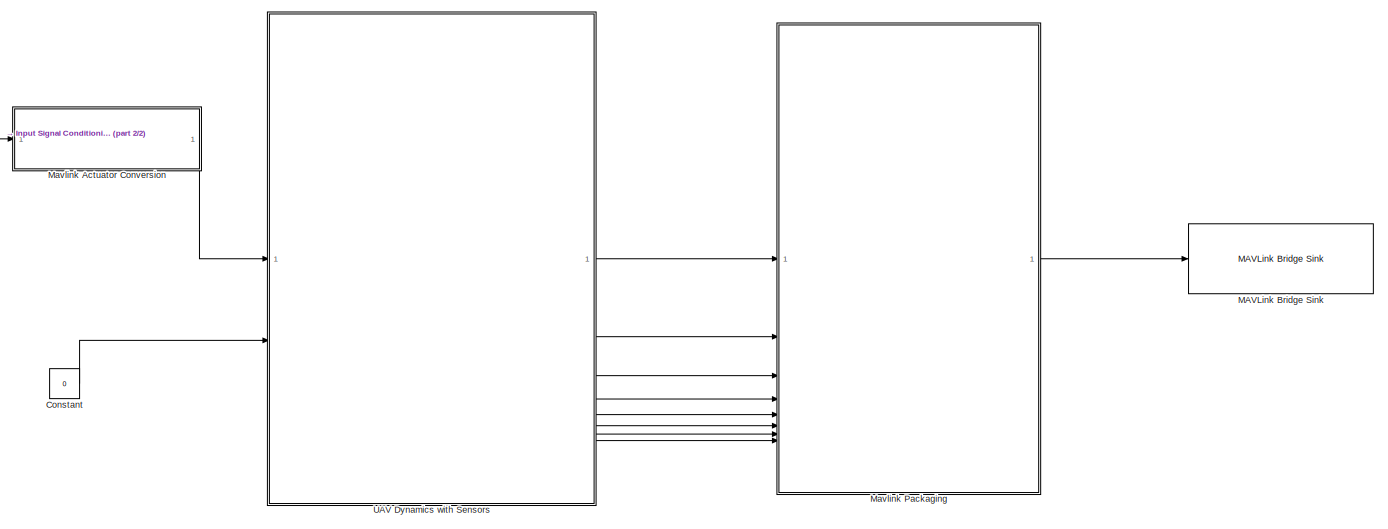
[diagram: root canvas - part 1/2, center side, full height]
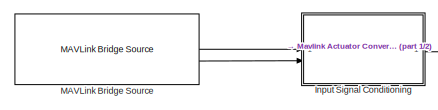
[diagram: root canvas - part 2/2, top left region]
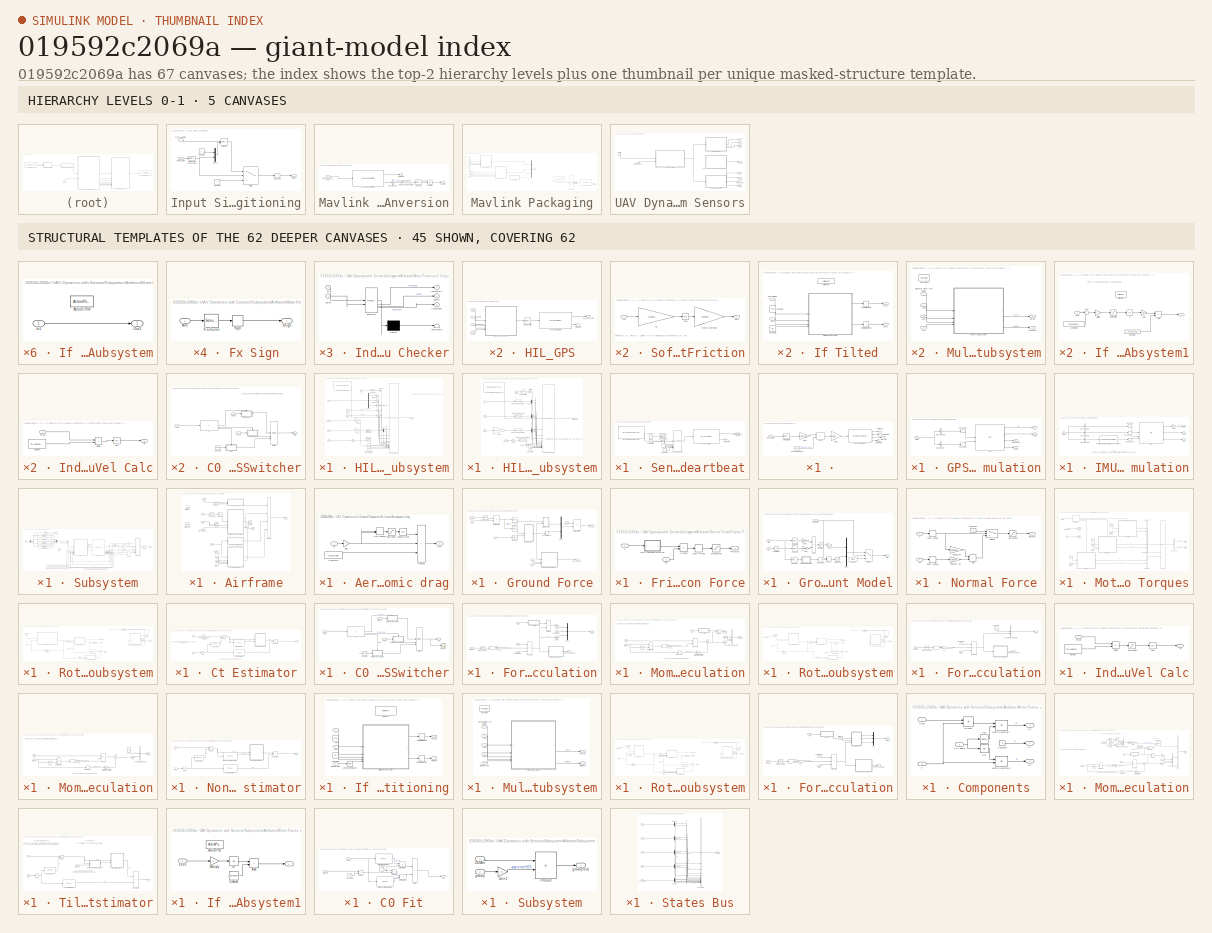
[diagram: thumbnail index - top-2 hierarchy levels (5 canvases) + 45 structural-template representatives of the remaining 62 canvases]
MODEL slx_019592c2069a
KIND model
CONFIG AbsTol = auto
CONFIG EnableMultiTasking = off
CONFIG FixedStep = SampleTime
CONFIG MaxStep = auto
CONFIG MinStep = auto
CONFIG RelTol = 1e-3
CONFIG SampleTimeConstraint = Unconstrained
CONFIG SolverName = ode8
CONFIG StartTime = 0.0
CONFIG StopTime = inf
BLOCK [Constant] Constant
  Value = 0
BLOCK [SubSystem] Input Signal Conditioning
BLOCK [Constant] Input Signal Conditioning/Constant
BLOCK [Constant] Input Signal Conditioning/Constant1
  OutDataTypeStr = uint8
  SampleTime = -1
  Value = 0
BLOCK [Inport] Input Signal Conditioning/Data Length
  Port = 2
BLOCK [DataTypeConversion] Input Signal Conditioning/Data Type Conversion
  OutDataTypeStr = double
  RndMeth = Floor
  SaturateOnIntegerOverflow = off
BLOCK [Inport] Input Signal Conditioning/From_Autopilot
BLOCK [Mux] Input Signal Conditioning/Mux1
  DisplayOption = bar
  Inputs = 2
BLOCK [Reshape] Input Signal Conditioning/Reshape
BLOCK [Selector] Input Signal Conditioning/Selector
  IndexOptions = Starting and ending indices (port)
  Indices = [1 3]
  InputPortWidth = MAVLink_Input_Read_Size
  OutputSizes = 1
BLOCK [Outport] Input Signal Conditioning/Signal
BLOCK [Switch] Input Signal Conditioning/Switch
  Criteria = u2 > Threshold
  InputSameDT = off
  SaturateOnIntegerOverflow = off
BLOCK [Reference] MAVLink Bridge Sink  REF=px4MAVLinkBridgelib/MAVLink Bridge Sink
  SourceBlock = px4MAVLinkBridgelib/MAVLink Bridge Sink
  SourceType = px4.internal.block.MAVLinkSink
BLOCK [Reference] MAVLink Bridge Source  REF=px4MAVLinkBridgelib/MAVLink Bridge Source
  SourceBlock = px4MAVLinkBridgelib/MAVLink Bridge Source
  SourceType = px4.internal.block.MAVLinkSource
BLOCK [SubSystem] Mavlink Actuator Conversion
BLOCK [Outport] Mavlink Actuator Conversion/Actuator
BLOCK [BusSelector] Mavlink Actuator Conversion/Bus Selector
  OutputSignals = Payload.controls
BLOCK [DataTypeConversion] Mavlink Actuator Conversion/Data Type Conversion
  OutDataTypeStr = double
  RndMeth = Floor
  SaturateOnIntegerOverflow = off
BLOCK [Inport] Mavlink Actuator Conversion/HIL ACTUATOR_bytes
BLOCK [Reference] Mavlink Actuator Conversion/MAVLink Deserializer  REF=uavmavlinklib/MAVLink Deserializer
  SourceBlock = uavmavlinklib/MAVLink Deserializer
  SourceType = MAVLink Deserializer
BLOCK [Saturate] Mavlink Actuator Conversion/Saturation
  LowerLimit = 0
  UpperLimit = 1
BLOCK [Selector] Mavlink Actuator Conversion/Selector1
  IndexOptions = Index vector (dialog)
  Indices = [1:4]
  InputPortWidth = 16
  OutputSizes = 1
BLOCK [Terminator] Mavlink Actuator Conversion/Terminator
BLOCK [SubSystem] Mavlink Packaging
BLOCK [Inport] Mavlink Packaging/Acc
BLOCK [BusAssignment] Mavlink Packaging/Bus Assignment
  AssignedSignals = Payload.attitude_quaternion
  Commented = on
BLOCK [Inport] Mavlink Packaging/Course
  Port = 8
BLOCK [Inport] Mavlink Packaging/GndSpeed
  Port = 7
BLOCK [Inport] Mavlink Packaging/Gyro
  Port = 2
BLOCK [SubSystem] Mavlink Packaging/HIL_GPS
BLOCK [Inport] Mavlink Packaging/HIL_GPS/Course
  Port = 4
BLOCK [Inport] Mavlink Packaging/HIL_GPS/GndSpeed
  Port = 3
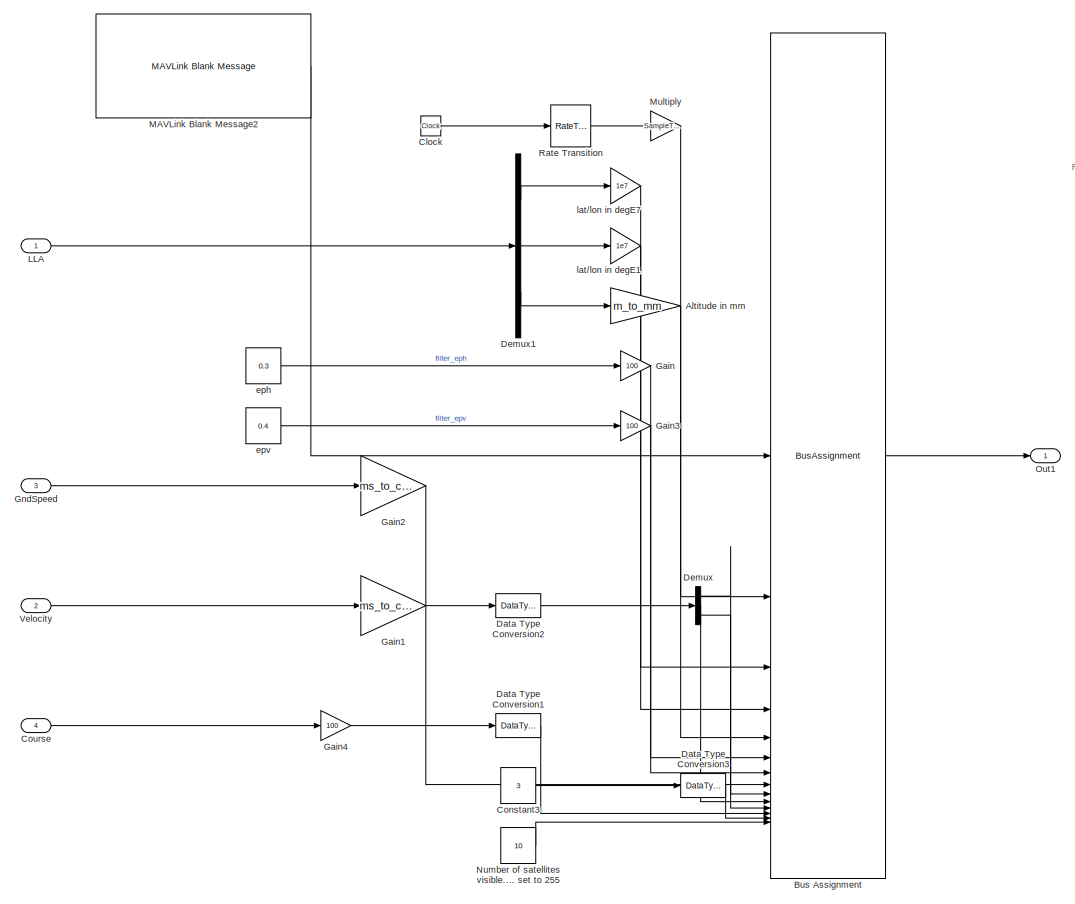
[diagram: Mavlink Packaging/HIL_GPS/HIL_GPS Subsystem - part 1/2, most of the canvas]
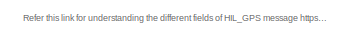
[diagram: Mavlink Packaging/HIL_GPS/HIL_GPS Subsystem - part 2/2, top right region]
BLOCK [SubSystem] Mavlink Packaging/HIL_GPS/HIL_GPS Subsystem
BLOCK [Gain] Mavlink Packaging/HIL_GPS/HIL_GPS Subsystem/Altitude in mm
  Gain = m_to_mm
  OutDataTypeStr = Inherit: Inherit via back propagation
BLOCK [BusAssignment] Mavlink Packaging/HIL_GPS/HIL_GPS Subsystem/Bus Assignment
  AssignedSignals = Payload.time_usec,Payload.lat,Payload.lon,Payload.alt,Payload.eph,Payload.epv,Payload.vel,Payload.vn,Payload.ve,Payload.vd,Payload.cog,Payload.fix_type,Payload.satellites_visible
BLOCK [Clock] Mavlink Packaging/HIL_GPS/HIL_GPS Subsystem/Clock
BLOCK [Constant] Mavlink Packaging/HIL_GPS/HIL_GPS Subsystem/Constant3
  OutDataTypeStr = Inherit: Inherit via back propagation
  SampleTime = -1
  Value = 3
BLOCK [Inport] Mavlink Packaging/HIL_GPS/HIL_GPS Subsystem/Course
  Port = 4
BLOCK [DataTypeConversion] Mavlink Packaging/HIL_GPS/HIL_GPS Subsystem/Data Type Conversion1
  OutDataTypeStr = uint16
  RndMeth = Floor
  SaturateOnIntegerOverflow = off
BLOCK [DataTypeConversion] Mavlink Packaging/HIL_GPS/HIL_GPS Subsystem/Data Type Conversion2
  OutDataTypeStr = int16
  RndMeth = Floor
  SaturateOnIntegerOverflow = off
BLOCK [DataTypeConversion] Mavlink Packaging/HIL_GPS/HIL_GPS Subsystem/Data Type Conversion3
  OutDataTypeStr = uint8
  RndMeth = Floor
  SaturateOnIntegerOverflow = off
BLOCK [Demux] Mavlink Packaging/HIL_GPS/HIL_GPS Subsystem/Demux
  Outputs = 3
BLOCK [Demux] Mavlink Packaging/HIL_GPS/HIL_GPS Subsystem/Demux1
  Outputs = 3
BLOCK [Gain] Mavlink Packaging/HIL_GPS/HIL_GPS Subsystem/Gain
  Gain = 100
  OutDataTypeStr = Inherit: Inherit via back propagation
BLOCK [Gain] Mavlink Packaging/HIL_GPS/HIL_GPS Subsystem/Gain1
  Gain = ms_to_cms
BLOCK [Gain] Mavlink Packaging/HIL_GPS/HIL_GPS Subsystem/Gain2
  Gain = ms_to_cms
  OutDataTypeStr = uint16
BLOCK [Gain] Mavlink Packaging/HIL_GPS/HIL_GPS Subsystem/Gain3
  Gain = 100
  OutDataTypeStr = Inherit: Inherit via back propagation
BLOCK [Gain] Mavlink Packaging/HIL_GPS/HIL_GPS Subsystem/Gain4
  Gain = 100
BLOCK [Inport] Mavlink Packaging/HIL_GPS/HIL_GPS Subsystem/GndSpeed
  Port = 3
BLOCK [Inport] Mavlink Packaging/HIL_GPS/HIL_GPS Subsystem/LLA
BLOCK [Reference] Mavlink Packaging/HIL_GPS/HIL_GPS Subsystem/MAVLink Blank Message2  REF=uavmavlinklib/MAVLink Blank Message
  SourceBlock = uavmavlinklib/MAVLink Blank Message
  SourceType = MAVLink Blank Message
BLOCK [Gain] Mavlink Packaging/HIL_GPS/HIL_GPS Subsystem/Multiply
  Gain = SampleTime*1e6
  OutDataTypeStr = Inherit: Inherit via back propagation
BLOCK [Constant] Mavlink Packaging/HIL_GPS/HIL_GPS Subsystem/Number of satellites visible. If unknown, set to 255
  OutDataTypeStr = Inherit: Inherit via back propagation
  SampleTime = -1
  Value = 10
BLOCK [Outport] Mavlink Packaging/HIL_GPS/HIL_GPS Subsystem/Out1
BLOCK [RateTransition] Mavlink Packaging/HIL_GPS/HIL_GPS Subsystem/Rate Transition
BLOCK [Inport] Mavlink Packaging/HIL_GPS/HIL_GPS Subsystem/Velocity
  Port = 2
BLOCK [Constant] Mavlink Packaging/HIL_GPS/HIL_GPS Subsystem/eph
  SampleTime = -1
  Value = 0.3
BLOCK [Constant] Mavlink Packaging/HIL_GPS/HIL_GPS Subsystem/epv
  SampleTime = -1
  Value = 0.4
BLOCK [Gain] Mavlink Packaging/HIL_GPS/HIL_GPS Subsystem/lat//lon in degE1
  Gain = 1e7
  OutDataTypeStr = Inherit: Inherit via back propagation
BLOCK [Gain] Mavlink Packaging/HIL_GPS/HIL_GPS Subsystem/lat//lon in degE7
  Gain = 1e7
  OutDataTypeStr = Inherit: Inherit via back propagation
BLOCK [Outport] Mavlink Packaging/HIL_GPS/HIL_GPS_bytes
BLOCK [Inport] Mavlink Packaging/HIL_GPS/LLA
BLOCK [Reference] Mavlink Packaging/HIL_GPS/MAVLink Serializer3  REF=uavmavlinklib/MAVLink Serializer
  SourceBlock = uavmavlinklib/MAVLink Serializer
  SourceType = MAVLink Serializer
BLOCK [RateTransition] Mavlink Packaging/HIL_GPS/Rate Transition
  OutPortSampleTime = SampleTime
BLOCK [Terminator] Mavlink Packaging/HIL_GPS/Terminator2
BLOCK [Inport] Mavlink Packaging/HIL_GPS/Velocity
  Port = 2
BLOCK [SubSystem] Mavlink Packaging/HIL_SENSOR
BLOCK [Inport] Mavlink Packaging/HIL_SENSOR/Acc
BLOCK [Inport] Mavlink Packaging/HIL_SENSOR/Gyro
  Port = 2
BLOCK [SubSystem] Mavlink Packaging/HIL_SENSOR/HIL_SENSOR Creation subsystem
BLOCK [Inport] Mavlink Packaging/HIL_SENSOR/HIL_SENSOR Creation subsystem/Acc
BLOCK [BusAssignment] Mavlink Packaging/HIL_SENSOR/HIL_SENSOR Creation subsystem/Bus Assignment1
  AssignedSignals = Payload.time_usec,Payload.xacc,Payload.yacc,Payload.zacc,Payload.xgyro,Payload.ygyro,Payload.zgyro,Payload.xmag,Payload.ymag,Payload.zmag,Payload.abs_pressure,Payload.fields_updated,Payload.temperature
BLOCK [Clock] Mavlink Packaging/HIL_SENSOR/HIL_SENSOR Creation subsystem/Clock
BLOCK [DataTypeConversion] Mavlink Packaging/HIL_SENSOR/HIL_SENSOR Creation subsystem/Data Type Conversion1
  OutDataTypeStr = single
  RndMeth = Floor
  SaturateOnIntegerOverflow = off
BLOCK [DataTypeConversion] Mavlink Packaging/HIL_SENSOR/HIL_SENSOR Creation subsystem/Data Type Conversion2
  OutDataTypeStr = single
  RndMeth = Floor
  SaturateOnIntegerOverflow = off
BLOCK [DataTypeConversion] Mavlink Packaging/HIL_SENSOR/HIL_SENSOR Creation subsystem/Data Type Conversion3
  OutDataTypeStr = single
  RndMeth = Floor
  SaturateOnIntegerOverflow = off
BLOCK [DataTypeConversion] Mavlink Packaging/HIL_SENSOR/HIL_SENSOR Creation subsystem/Data Type Conversion5
  OutDataTypeStr = single
  RndMeth = Floor
  SaturateOnIntegerOverflow = off
BLOCK [Demux] Mavlink Packaging/HIL_SENSOR/HIL_SENSOR Creation subsystem/Demux
  Outputs = 3
BLOCK [Demux] Mavlink Packaging/HIL_SENSOR/HIL_SENSOR Creation subsystem/Demux1
  Outputs = 3
BLOCK [Demux] Mavlink Packaging/HIL_SENSOR/HIL_SENSOR Creation subsystem/Demux2
  Outputs = 3
BLOCK [Gain] Mavlink Packaging/HIL_SENSOR/HIL_SENSOR Creation subsystem/Gain2
  Gain = 0.01
  OutDataTypeStr = single
BLOCK [Gain] Mavlink Packaging/HIL_SENSOR/HIL_SENSOR Creation subsystem/Gain3
  Gain = uT_to_gauss
BLOCK [Inport] Mavlink Packaging/HIL_SENSOR/HIL_SENSOR Creation subsystem/Gyro
  Port = 2
BLOCK [Outport] Mavlink Packaging/HIL_SENSOR/HIL_SENSOR Creation subsystem/HIL Sensor
BLOCK [Reference] Mavlink Packaging/HIL_SENSOR/HIL_SENSOR Creation subsystem/MAVLink Blank Message1  REF=uavmavlinklib/MAVLink Blank Message
  SourceBlock = uavmavlinklib/MAVLink Blank Message
  SourceType = MAVLink Blank Message
BLOCK [Inport] Mavlink Packaging/HIL_SENSOR/HIL_SENSOR Creation subsystem/Mag
  Port = 3
BLOCK [Gain] Mavlink Packaging/HIL_SENSOR/HIL_SENSOR Creation subsystem/Multiply
  Gain = SampleTime*1e6
  OutDataTypeStr = Inherit: Inherit via back propagation
BLOCK [Inport] Mavlink Packaging/HIL_SENSOR/HIL_SENSOR Creation subsystem/Pressure
  Port = 4
BLOCK [RateTransition] Mavlink Packaging/HIL_SENSOR/HIL_SENSOR Creation subsystem/Rate Transition
BLOCK [Constant] Mavlink Packaging/HIL_SENSOR/HIL_SENSOR Creation subsystem/Set this flag to indicate all flags are updated
  OutDataTypeStr = Inherit: Inherit via back propagation
  SampleTime = -1
  Value = 8191
BLOCK [Constant] Mavlink Packaging/HIL_SENSOR/HIL_SENSOR Creation subsystem/Temperature
  OutDataTypeStr = Inherit: Inherit via back propagation
  SampleTime = -1
  Value = 25
BLOCK [Outport] Mavlink Packaging/HIL_SENSOR/HIL_SENSOR_bytes
BLOCK [Reference] Mavlink Packaging/HIL_SENSOR/MAVLink Serializer1  REF=uavmavlinklib/MAVLink Serializer
  SourceBlock = uavmavlinklib/MAVLink Serializer
  SourceType = MAVLink Serializer
BLOCK [Inport] Mavlink Packaging/HIL_SENSOR/Mag
  Port = 3
BLOCK [Inport] Mavlink Packaging/HIL_SENSOR/Pressure
  Port = 4
BLOCK [RateTransition] Mavlink Packaging/HIL_SENSOR/Rate Transition
  OutPortSampleTime = SampleTime
BLOCK [Terminator] Mavlink Packaging/HIL_SENSOR/Terminator
BLOCK [Inport] Mavlink Packaging/LLA
  Port = 5
BLOCK [Reference] Mavlink Packaging/MAVLink Blank Message  REF=uavmavlinklib/MAVLink Blank Message
  Commented = on
  SourceBlock = uavmavlinklib/MAVLink Blank Message
  SourceType = MAVLink Blank Message
BLOCK [Reference] Mavlink Packaging/MAVLink Serializer  REF=uavmavlinklib/MAVLink Serializer
  Commented = on
  SourceBlock = uavmavlinklib/MAVLink Serializer
  SourceType = MAVLink Serializer
BLOCK [Inport] Mavlink Packaging/Mag
  Port = 3
BLOCK [Mux] Mavlink Packaging/Mux
  DisplayOption = bar
  Inputs = 3
BLOCK [Outport] Mavlink Packaging/Outport
BLOCK [Inport] Mavlink Packaging/Pressure
  Port = 4
BLOCK [RateTransition] Mavlink Packaging/Rate Transition
  Commented = on
  OutPortSampleTime = SampleTime
BLOCK [SubSystem] Mavlink Packaging/Send Heartbeat
BLOCK [BusAssignment] Mavlink Packaging/Send Heartbeat/Bus Assignment
  AssignedSignals = Payload.autopilot,Payload.type,Payload.system_status,Payload.mavlink_version
BLOCK [Constant] Mavlink Packaging/Send Heartbeat/Constant
  SampleTime = -1
BLOCK [Constant] Mavlink Packaging/Send Heartbeat/Constant1
  SampleTime = -1
  Value = 12
BLOCK [Constant] Mavlink Packaging/Send Heartbeat/Constant2
  OutDataTypeStr = uint8
  Value = 2
BLOCK [Constant] Mavlink Packaging/Send Heartbeat/Constant3
  OutDataTypeStr = uint8
  Value = 0
BLOCK [DataTypeConversion] Mavlink Packaging/Send Heartbeat/Data Type Conversion
  OutDataTypeStr = uint8
  RndMeth = Floor
  SaturateOnIntegerOverflow = off
BLOCK [DataTypeConversion] Mavlink Packaging/Send Heartbeat/Data Type Conversion1
  OutDataTypeStr = uint8
  RndMeth = Floor
  SaturateOnIntegerOverflow = off
BLOCK [Outport] Mavlink Packaging/Send Heartbeat/HEARTBEAT_bytes
BLOCK [Reference] Mavlink Packaging/Send Heartbeat/MAVLink Blank Message  REF=uavmavlinklib/MAVLink Blank Message
  SourceBlock = uavmavlinklib/MAVLink Blank Message
  SourceType = MAVLink Blank Message
BLOCK [Reference] Mavlink Packaging/Send Heartbeat/MAVLink Serializer  REF=uavmavlinklib/MAVLink Serializer
  SourceBlock = uavmavlinklib/MAVLink Serializer
  SourceType = MAVLink Serializer
BLOCK [Terminator] Mavlink Packaging/Send Heartbeat/Terminator4
BLOCK [Terminator] Mavlink Packaging/Terminator2
  Commented = on
BLOCK [Inport] Mavlink Packaging/Velocity
  Port = 6
BLOCK [SubSystem] UAV Dynamics with Sensors
BLOCK [SubSystem] UAV Dynamics with Sensors/ 
  PortSchema = {"entries":[{"content":{"sides":[{"content":{"connectorIds":[]},"type":"ConnectorPlacement.EquallySpacedRectSide","uuid":"7ecc8b21-8f8f-4144-826a-6b68e30dbf7d"},{"content":{"connectorIds":["Out1"],"side":"RIGHT"},"type":"ConnectorPlacement.EquallySpacedRectSide","uuid":"81a1dd55-8330-4386-9921-36c0eb60d526"},{"content":{"connectorIds":[],"side":"TOP"},"type":"ConnectorPlacement.EquallySpacedRectSi...<+384ch>
BLOCK [Selector] UAV Dynamics with Sensors/ /Extract Altitude
  IndexOptions = Index vector (dialog)
  Indices = [3]
  InputPortWidth = 3
  OutputSizes = 1
BLOCK [Inport] UAV Dynamics with Sensors/ /GPS Position
BLOCK [Gain] UAV Dynamics with Sensors/ /Gain1
  Gain = 1/m_to_mm
BLOCK [Gain] UAV Dynamics with Sensors/ /Gain2
  Gain = m_to_mm
BLOCK [Reference] UAV Dynamics with Sensors/ /Lapse Rate Model  REF=aerolibatmos2/ISA Atmosphere Model
  SourceBlock = aerolibatmos2/ISA Atmosphere Model
  SourceType = International Standard Atmosphere Model
BLOCK [Outport] UAV Dynamics with Sensors/ /Pressure
BLOCK [RandomNumber] UAV Dynamics with Sensors/ /Random Number1
  SampleTime = SampleTime
  Seed = 10
  Variance = 10000
BLOCK [Sum] UAV Dynamics with Sensors/ /Sum1
  IconShape = rectangular
  Inputs = |++
BLOCK [Terminator] UAV Dynamics with Sensors/ /Terminator
BLOCK [Terminator] UAV Dynamics with Sensors/ /Terminator1
BLOCK [Terminator] UAV Dynamics with Sensors/ /Terminator2
BLOCK [Outport] UAV Dynamics with Sensors/Acc
BLOCK [Outport] UAV Dynamics with Sensors/Course
  Port = 8
BLOCK [SubSystem] UAV Dynamics with Sensors/GNSS//GPS Simulation
  PortSchema = {"entries":[{"content":{"sides":[{"content":{"connectorIds":["In1"]},"type":"ConnectorPlacement.EquallySpacedRectSide","uuid":"4934e8ff-5d4b-4e11-968d-c23bd62383a0"},{"content":{"connectorIds":["Out1","Out2","Out3"],"side":"RIGHT"},"type":"ConnectorPlacement.EquallySpacedRectSide","uuid":"9ec8bc0a-2d3c-4dca-835c-010ac29b6ebc"},{"content":{"connectorIds":["Out4"],"side":"TOP"},"type":"ConnectorPlac...<+260ch>
BLOCK [BusSelector] UAV Dynamics with Sensors/GNSS//GPS Simulation/Bus Selector
  OutputAsBus = on
  OutputSignals = dx,dy,dz
BLOCK [BusSelector] UAV Dynamics with Sensors/GNSS//GPS Simulation/Bus Selector1
  OutputAsBus = on
  OutputSignals = X,Y,Z
BLOCK [Outport] UAV Dynamics with Sensors/GNSS//GPS Simulation/Course
  Port = 3
BLOCK [Reference] UAV Dynamics with Sensors/GNSS//GPS Simulation/GPS  REF=sensorgpslib/GPS
  SourceBlock = sensorgpslib/GPS
  SourceType = fusion.internal.simulink.gpsSensor
BLOCK [Outport] UAV Dynamics with Sensors/GNSS//GPS Simulation/GndSpeed
  Port = 2
BLOCK [Outport] UAV Dynamics with Sensors/GNSS//GPS Simulation/LLA
  Port = 4
BLOCK [Reshape] UAV Dynamics with Sensors/GNSS//GPS Simulation/Reshape1
  OutputDimensionality = Row vector (2-D)
BLOCK [Reshape] UAV Dynamics with Sensors/GNSS//GPS Simulation/Reshape3
  OutputDimensionality = Row vector (2-D)
BLOCK [Inport] UAV Dynamics with Sensors/GNSS//GPS Simulation/States
BLOCK [Outport] UAV Dynamics with Sensors/GNSS//GPS Simulation/Velocity
BLOCK [Outport] UAV Dynamics with Sensors/GndSpeed
  Port = 7
BLOCK [Outport] UAV Dynamics with Sensors/Gyro
  Port = 2
BLOCK [SubSystem] UAV Dynamics with Sensors/IMU Simulation
BLOCK [Outport] UAV Dynamics with Sensors/IMU Simulation/Acc
BLOCK [BusSelector] UAV Dynamics with Sensors/IMU Simulation/Bus Selector1
  OutputAsBus = on
  OutputSignals = p,q,r
BLOCK [BusSelector] UAV Dynamics with Sensors/IMU Simulation/Bus Selector2
  OutputAsBus = on
  OutputSignals = yaw,pitch,roll
BLOCK [BusSelector] UAV Dynamics with Sensors/IMU Simulation/Bus Selector3
  OutputAsBus = on
  OutputSignals = ddx,ddy,ddz
BLOCK [Reference] UAV Dynamics with Sensors/IMU Simulation/Coordinate Transformation Conversion1  REF=robotcorelib/Coordinate Transformation Conversion
  SourceBlock = robotcorelib/Coordinate Transformation Conversion
  SourceType = robotics.slcore.internal.block.CoordinateTransformationConversion
BLOCK [Gain] UAV Dynamics with Sensors/IMU Simulation/Gain
  Gain = -1
BLOCK [Outport] UAV Dynamics with Sensors/IMU Simulation/Gyro
  Port = 2
BLOCK [Reference] UAV Dynamics with Sensors/IMU Simulation/IMU1  REF=mspsensorlib/IMU
  SourceBlock = mspsensorlib/IMU
  SourceType = fusion.simulink.imuSensor
BLOCK [Outport] UAV Dynamics with Sensors/IMU Simulation/Mag
  Port = 3
BLOCK [Reshape] UAV Dynamics with Sensors/IMU Simulation/Reshape
  OutputDimensionality = Row vector (2-D)
BLOCK [Reshape] UAV Dynamics with Sensors/IMU Simulation/Reshape2
  OutputDimensionality = Row vector (2-D)
BLOCK [Reshape] UAV Dynamics with Sensors/IMU Simulation/Reshape3
  OutputDimensionality = Row vector (2-D)
BLOCK [Inport] UAV Dynamics with Sensors/IMU Simulation/States
BLOCK [Outport] UAV Dynamics with Sensors/LLA
  Port = 5
BLOCK [Outport] UAV Dynamics with Sensors/Mag
  Port = 3
BLOCK [Outport] UAV Dynamics with Sensors/Pressure
  Port = 4
BLOCK [SubSystem] UAV Dynamics with Sensors/Subsystem
BLOCK [Reference] UAV Dynamics with Sensors/Subsystem/6DOF (Quaternion)  REF=shared6dof/6DOF (Euler Angles)
  LibrarySourceBlock = aerolib6dof2/6DOF (Quaternion)
  SourceBlock = shared6dof/6DOF (Euler Angles)
  SourceType = 6DOF EoM (Body Axis)
BLOCK [SubSystem] UAV Dynamics with Sensors/Subsystem/Airframe
BLOCK [SubSystem] UAV Dynamics with Sensors/Subsystem/Airframe/Aerodynamic drag
BLOCK [Constant] UAV Dynamics with Sensors/Subsystem/Airframe/Aerodynamic drag/Constant1
  Value = CDDrone
BLOCK [DotProduct] UAV Dynamics with Sensors/Subsystem/Airframe/Aerodynamic drag/Dot Product
  OutDataTypeStr = Inherit: Inherit via internal rule
BLOCK [Outport] UAV Dynamics with Sensors/Subsystem/Airframe/Aerodynamic drag/F_d
BLOCK [Product] UAV Dynamics with Sensors/Subsystem/Airframe/Aerodynamic drag/Product
  Inputs = 3
BLOCK [Saturate] UAV Dynamics with Sensors/Subsystem/Airframe/Aerodynamic drag/Saturation
  LowerLimit = 0.0001
  UpperLimit = inf
BLOCK [Sqrt] UAV Dynamics with Sensors/Subsystem/Airframe/Aerodynamic drag/Square Root
BLOCK [Inport] UAV Dynamics with Sensors/Subsystem/Airframe/Aerodynamic drag/Vb
BLOCK [Gain] UAV Dynamics with Sensors/Subsystem/Airframe/Aerodynamic drag/gain
  Gain = -1
BLOCK [Reference] UAV Dynamics with Sensors/Subsystem/Airframe/Artificial RPM  REF=simulink/Sources/Ramp
  SourceBlock = simulink/Sources/Ramp
  SourceType = Ramp
BLOCK [Reference] UAV Dynamics with Sensors/Subsystem/Airframe/Artificial Vel  REF=simulink/Sources/Ramp
  SourceBlock = simulink/Sources/Ramp
  SourceType = Ramp
BLOCK [Inport] UAV Dynamics with Sensors/Subsystem/Airframe/DCMbe
  Port = 4
BLOCK [InportShadow] UAV Dynamics with Sensors/Subsystem/Airframe/DCMbe2
  Port = 4
BLOCK [Outport] UAV Dynamics with Sensors/Subsystem/Airframe/F_cg
BLOCK [Constant] UAV Dynamics with Sensors/Subsystem/Airframe/Gravity
  Value = [0 0 g]
BLOCK [SubSystem] UAV Dynamics with Sensors/Subsystem/Airframe/Ground Force
BLOCK [InportShadow] UAV Dynamics with Sensors/Subsystem/Airframe/Ground Force/DCMbe
  Port = 2
BLOCK [Inport] UAV Dynamics with Sensors/Subsystem/Airframe/Ground Force/DCMbe1
  Port = 2
BLOCK [Outport] UAV Dynamics with Sensors/Subsystem/Airframe/Ground Force/F contact
BLOCK [SubSystem] UAV Dynamics with Sensors/Subsystem/Airframe/Ground Force/Friction Force
BLOCK [Inport] UAV Dynamics with Sensors/Subsystem/Airframe/Ground Force/Friction Force/Fn
  Port = 2
BLOCK [Outport] UAV Dynamics with Sensors/Subsystem/Airframe/Ground Force/Friction Force/Friction
BLOCK [Product] UAV Dynamics with Sensors/Subsystem/Airframe/Ground Force/Friction Force/Product
BLOCK [Saturate] UAV Dynamics with Sensors/Subsystem/Airframe/Ground Force/Friction Force/Saturation
  LowerLimit = -contact.translation.maxFriction
  UpperLimit = contact.translation.maxFriction
BLOCK [SubSystem] UAV Dynamics with Sensors/Subsystem/Airframe/Ground Force/Friction Force/Soft Coulomb Friction
BLOCK [Inport] UAV Dynamics with Sensors/Subsystem/Airframe/Ground Force/Friction Force/Soft Coulomb Friction/In1
BLOCK [Outport] UAV Dynamics with Sensors/Subsystem/Airframe/Ground Force/Friction Force/Soft Coulomb Friction/Out1
BLOCK [Trigonometry] UAV Dynamics with Sensors/Subsystem/Airframe/Ground Force/Friction Force/Soft Coulomb Friction/Tanh
  Operator = tanh
BLOCK [Gain] UAV Dynamics with Sensors/Subsystem/Airframe/Ground Force/Friction Force/Soft Coulomb Friction/friction coefficient
  Gain = contact.translation.friction
BLOCK [Gain] UAV Dynamics with Sensors/Subsystem/Airframe/Ground Force/Friction Force/Soft Coulomb Friction/vd
  Gain = 1/contact.translation.vd
BLOCK [UnaryMinus] UAV Dynamics with Sensors/Subsystem/Airframe/Ground Force/Friction Force/Unary Minus
BLOCK [Inport] UAV Dynamics with Sensors/Subsystem/Airframe/Ground Force/Friction Force/V
BLOCK [SubSystem] UAV Dynamics with Sensors/Subsystem/Airframe/Ground Force/Ground Moment Model
BLOCK [Sum] UAV Dynamics with Sensors/Subsystem/Airframe/Ground Force/Ground Moment Model/Add
  IconShape = rectangular
BLOCK [Constant] UAV Dynamics with Sensors/Subsystem/Airframe/Ground Force/Ground Moment Model/Constant
  Value = [0 0 0]'
BLOCK [Gain] UAV Dynamics with Sensors/Subsystem/Airframe/Ground Force/Ground Moment Model/Gain
  Gain = contact.rotation.spring
BLOCK [Gain] UAV Dynamics with Sensors/Subsystem/Airframe/Ground Force/Ground Moment Model/Gain1
  Gain = contact.rotation.damper
BLOCK [Gain] UAV Dynamics with Sensors/Subsystem/Airframe/Ground Force/Ground Moment Model/Gain2
  Gain = -1
BLOCK [Outport] UAV Dynamics with Sensors/Subsystem/Airframe/Ground Force/Ground Moment Model/Mb
BLOCK [Mux] UAV Dynamics with Sensors/Subsystem/Airframe/Ground Force/Ground Moment Model/Mux2
  DisplayOption = bar
  Inputs = 2
BLOCK [Inport] UAV Dynamics with Sensors/Subsystem/Airframe/Ground Force/Ground Moment Model/Normal force
BLOCK [Product] UAV Dynamics with Sensors/Subsystem/Airframe/Ground Force/Ground Moment Model/Product
BLOCK [Saturate] UAV Dynamics with Sensors/Subsystem/Airframe/Ground Force/Ground Moment Model/Saturation
  LowerLimit = -control.rotation.maxMoment
  UpperLimit = control.rotation.maxMoment
BLOCK [Saturate] UAV Dynamics with Sensors/Subsystem/Airframe/Ground Force/Ground Moment Model/Saturation1
  LowerLimit = -20*pi/180
  UpperLimit = 20*pi/180
BLOCK [Saturate] UAV Dynamics with Sensors/Subsystem/Airframe/Ground Force/Ground Moment Model/Saturation2
  LowerLimit = -control.rotation.maxMoment
  UpperLimit = control.rotation.maxMoment
BLOCK [Selector] UAV Dynamics with Sensors/Subsystem/Airframe/Ground Force/Ground Moment Model/Selector3
  IndexOptions = Index vector (dialog)
  Indices = [3]
  InputPortWidth = 3
  OutputSizes = 1
BLOCK [Selector] UAV Dynamics with Sensors/Subsystem/Airframe/Ground Force/Ground Moment Model/Selector4
  IndexOptions = Index vector (dialog)
  Indices = [1, 2]
  InputPortWidth = 3
  OutputSizes = 1
BLOCK [Selector] UAV Dynamics with Sensors/Subsystem/Airframe/Ground Force/Ground Moment Model/Selector5
  IndexOptions = Index vector (dialog)
  Indices = [1, 2]
  InputPortWidth = 3
  OutputSizes = 1
BLOCK [SubSystem] UAV Dynamics with Sensors/Subsystem/Airframe/Ground Force/Ground Moment Model/Soft Coulomb Friction
BLOCK [Inport] UAV Dynamics with Sensors/Subsystem/Airframe/Ground Force/Ground Moment Model/Soft Coulomb Friction/In1
BLOCK [Outport] UAV Dynamics with Sensors/Subsystem/Airframe/Ground Force/Ground Moment Model/Soft Coulomb Friction/Out1
BLOCK [Trigonometry] UAV Dynamics with Sensors/Subsystem/Airframe/Ground Force/Ground Moment Model/Soft Coulomb Friction/Tanh
  Operator = tanh
BLOCK [Gain] UAV Dynamics with Sensors/Subsystem/Airframe/Ground Force/Ground Moment Model/Soft Coulomb Friction/friction coefficient
  Gain = control.rotation.friction
BLOCK [Gain] UAV Dynamics with Sensors/Subsystem/Airframe/Ground Force/Ground Moment Model/Soft Coulomb Friction/vd
  Gain = 1/control.rotation.vd
BLOCK [Switch] UAV Dynamics with Sensors/Subsystem/Airframe/Ground Force/Ground Moment Model/Switch
  Criteria = u2 > Threshold
  InputSameDT = off
  SaturateOnIntegerOverflow = off
BLOCK [UnaryMinus] UAV Dynamics with Sensors/Subsystem/Airframe/Ground Force/Ground Moment Model/Unary Minus
BLOCK [Inport] UAV Dynamics with Sensors/Subsystem/Airframe/Ground Force/Ground Moment Model/rpy
  Port = 3
BLOCK [Inport] UAV Dynamics with Sensors/Subsystem/Airframe/Ground Force/Ground Moment Model/wb
  Port = 2
BLOCK [Product] UAV Dynamics with Sensors/Subsystem/Airframe/Ground Force/Matrix Multiply
  Multiplication = Matrix(*)
BLOCK [Product] UAV Dynamics with Sensors/Subsystem/Airframe/Ground Force/Matrix Multiply1
  Multiplication = Matrix(*)
BLOCK [Outport] UAV Dynamics with Sensors/Subsystem/Airframe/Ground Force/Mb_contact
  Port = 2
BLOCK [Mux] UAV Dynamics with Sensors/Subsystem/Airframe/Ground Force/Mux1
  DisplayOption = bar
  Inputs = 2
BLOCK [SubSystem] UAV Dynamics with Sensors/Subsystem/Airframe/Ground Force/Normal Force
BLOCK [Sum] UAV Dynamics with Sensors/Subsystem/Airframe/Ground Force/Normal Force/Add
  IconShape = rectangular
BLOCK [Constant] UAV Dynamics with Sensors/Subsystem/Airframe/Ground Force/Normal Force/Constant
  Value = 0
BLOCK [Gain] UAV Dynamics with Sensors/Subsystem/Airframe/Ground Force/Normal Force/Damper Kp
  Gain = -contact.translation.damper
BLOCK [Outport] UAV Dynamics with Sensors/Subsystem/Airframe/Ground Force/Normal Force/Normal
BLOCK [Saturate] UAV Dynamics with Sensors/Subsystem/Airframe/Ground Force/Normal Force/Saturation
  LowerLimit = 0
  UpperLimit = contact.translation.maxNormal
BLOCK [Gain] UAV Dynamics with Sensors/Subsystem/Airframe/Ground Force/Normal Force/Spring Kp
  Gain = -contact.translation.spring
BLOCK [Switch] UAV Dynamics with Sensors/Subsystem/Airframe/Ground Force/Normal Force/Switch
  Criteria = u2 > Threshold
  InputSameDT = off
  SaturateOnIntegerOverflow = off
BLOCK [UnaryMinus] UAV Dynamics with Sensors/Subsystem/Airframe/Ground Force/Normal Force/Unary Minus
BLOCK [UnaryMinus] UAV Dynamics with Sensors/Subsystem/Airframe/Ground Force/Normal Force/Unary Minus1
BLOCK [Inport] UAV Dynamics with Sensors/Subsystem/Airframe/Ground Force/Normal Force/Vz
BLOCK [Inport] UAV Dynamics with Sensors/Subsystem/Airframe/Ground Force/Normal Force/Z
  Port = 2
BLOCK [Selector] UAV Dynamics with Sensors/Subsystem/Airframe/Ground Force/Selector1
  IndexOptions = Index vector (dialog)
  Indices = [3]
  InputPortWidth = 3
  OutputSizes = 1
BLOCK [Selector] UAV Dynamics with Sensors/Subsystem/Airframe/Ground Force/Selector2
  IndexOptions = Index vector (dialog)
  Indices = [1,2]
  InputPortWidth = 3
  OutputSizes = 1
BLOCK [Selector] UAV Dynamics with Sensors/Subsystem/Airframe/Ground Force/Selector3
  IndexOptions = Index vector (dialog)
  Indices = [3]
  InputPortWidth = 3
  OutputSizes = 1
BLOCK [Math] UAV Dynamics with Sensors/Subsystem/Airframe/Ground Force/Transpose1
  Operator = transpose
BLOCK [UnaryMinus] UAV Dynamics with Sensors/Subsystem/Airframe/Ground Force/Unary Minus1
BLOCK [Inport] UAV Dynamics with Sensors/Subsystem/Airframe/Ground Force/Vb
BLOCK [Inport] UAV Dynamics with Sensors/Subsystem/Airframe/Ground Force/Wb
  Port = 4
BLOCK [Inport] UAV Dynamics with Sensors/Subsystem/Airframe/Ground Force/Xe
  Port = 3
BLOCK [Inport] UAV Dynamics with Sensors/Subsystem/Airframe/Ground Force/rpy
  Port = 5
BLOCK [Outport] UAV Dynamics with Sensors/Subsystem/Airframe/M_cg
  Port = 2
BLOCK [SubSystem] UAV Dynamics with Sensors/Subsystem/Airframe/Motor Forces and Torques
BLOCK [BusCreator] UAV Dynamics with Sensors/Subsystem/Airframe/Motor Forces and Torques/Bus Creator1
  DisplayOption = bar
  InheritFromInputs = on
  Inputs = 2
BLOCK [BusCreator] UAV Dynamics with Sensors/Subsystem/Airframe/Motor Forces and Torques/Bus Creator2
  DisplayOption = bar
  InheritFromInputs = on
  Inputs = 2
BLOCK [BusCreator] UAV Dynamics with Sensors/Subsystem/Airframe/Motor Forces and Torques/Bus Creator3
  DisplayOption = bar
  InheritFromInputs = on
  Inputs = 2
BLOCK [BusSelector] UAV Dynamics with Sensors/Subsystem/Airframe/Motor Forces and Torques/Bus Selector
  NameLocation = right
  OutputSignals = Fxyz,Mxyz
BLOCK [Inport] UAV Dynamics with Sensors/Subsystem/Airframe/Motor Forces and Torques/Descent Rate
BLOCK [If] UAV Dynamics with Sensors/Subsystem/Airframe/Motor Forces and Torques/Flight Mode
  ElseIfExpressions = u1 > 0 & u1 < 45, u1 == 45
  IfExpression = u1 == 0
  ShowElse = off
BLOCK [From] UAV Dynamics with Sensors/Subsystem/Airframe/Motor Forces and Torques/From
  GotoTag = Vz
BLOCK [From] UAV Dynamics with Sensors/Subsystem/Airframe/Motor Forces and Torques/From1
  GotoTag = rpm
BLOCK [From] UAV Dynamics with Sensors/Subsystem/Airframe/Motor Forces and Torques/From2
  GotoTag = Vz
BLOCK [From] UAV Dynamics with Sensors/Subsystem/Airframe/Motor Forces and Torques/From3
  GotoTag = rpm
BLOCK [From] UAV Dynamics with Sensors/Subsystem/Airframe/Motor Forces and Torques/From4
  GotoTag = Vz
BLOCK [From] UAV Dynamics with Sensors/Subsystem/Airframe/Motor Forces and Torques/From5
  GotoTag = rpm
BLOCK [Outport] UAV Dynamics with Sensors/Subsystem/Airframe/Motor Forces and Torques/Fxyz
BLOCK [Goto] UAV Dynamics with Sensors/Subsystem/Airframe/Motor Forces and Torques/Goto
  GotoTag = Vz
BLOCK [Goto] UAV Dynamics with Sensors/Subsystem/Airframe/Motor Forces and Torques/Goto1
  GotoTag = rpm
BLOCK [SubSystem] UAV Dynamics with Sensors/Subsystem/Airframe/Motor Forces and Torques/If Tilted
  TreatAsAtomicUnit = on
BLOCK [ActionPort] UAV Dynamics with Sensors/Subsystem/Airframe/Motor Forces and Torques/If Tilted/Action Port
  ActionPortLabel = elseif( u1 == 45)
BLOCK [Constant] UAV Dynamics with Sensors/Subsystem/Airframe/Motor Forces and Torques/If Tilted/Constant
  Value = 1.225
BLOCK [Constant] UAV Dynamics with Sensors/Subsystem/Airframe/Motor Forces and Torques/If Tilted/Constant1
  Value = Arm
  VectorParams1D = off
BLOCK [Inport] UAV Dynamics with Sensors/Subsystem/Airframe/Motor Forces and Torques/If Tilted/Descent Rate
BLOCK [Outport] UAV Dynamics with Sensors/Subsystem/Airframe/Motor Forces and Torques/If Tilted/Fxyz
BLOCK [SubSystem] UAV Dynamics with Sensors/Subsystem/Airframe/Motor Forces and Torques/If Tilted/Multirotor Subsystem
  TreatAsAtomicUnit = on
BLOCK [Inport] UAV Dynamics with Sensors/Subsystem/Airframe/Motor Forces and Torques/If Tilted/Multirotor Subsystem/Arm
  Partition = on
  PartitionDimension = 2
  PartitionOffset = 0
  PartitionWidth = 1
  Port = 4
BLOCK [Inport] UAV Dynamics with Sensors/Subsystem/Airframe/Motor Forces and Torques/If Tilted/Multirotor Subsystem/Descent Rate (+ve down)
  NameLocation = top
BLOCK [ForEach] UAV Dynamics with Sensors/Subsystem/Airframe/Motor Forces and Torques/If Tilted/Multirotor Subsystem/For Each
  DisableCoverage = on
BLOCK [Outport] UAV Dynamics with Sensors/Subsystem/Airframe/Motor Forces and Torques/If Tilted/Multirotor Subsystem/Moment
  ConcatenationDimension = 2
  Port = 2
BLOCK [SubSystem] UAV Dynamics with Sensors/Subsystem/Airframe/Motor Forces and Torques/If Tilted/Multirotor Subsystem/Rotor Subsystem
BLOCK [Reference] UAV Dynamics with Sensors/Subsystem/Airframe/Motor Forces and Torques/If Tilted/Multirotor Subsystem/Rotor Subsystem/3x3 Cross Product  REF=sharedutil/3x3 Cross Product
  LibrarySourceBlock = aerolibutil/3x3 Cross Product
  SourceBlock = sharedutil/3x3 Cross Product
  SourceType = CrossProduct
BLOCK [Inport] UAV Dynamics with Sensors/Subsystem/Airframe/Motor Forces and Torques/If Tilted/Multirotor Subsystem/Rotor Subsystem/Arm
  Port = 4
BLOCK [BusCreator] UAV Dynamics with Sensors/Subsystem/Airframe/Motor Forces and Torques/If Tilted/Multirotor Subsystem/Rotor Subsystem/Bus Creator
  Commented = on
  DisplayOption = bar
  InheritFromInputs = on
  Inputs = 2
  NameLocation = top
BLOCK [Outport] UAV Dynamics with Sensors/Subsystem/Airframe/Motor Forces and Torques/If Tilted/Multirotor Subsystem/Rotor Subsystem/Converged
BLOCK [SubSystem] UAV Dynamics with Sensors/Subsystem/Airframe/Motor Forces and Torques/If Tilted/Multirotor Subsystem/Rotor Subsystem/Ct Estimator
BLOCK [Abs] UAV Dynamics with Sensors/Subsystem/Airframe/Motor Forces and Torques/If Tilted/Multirotor Subsystem/Rotor Subsystem/Ct Estimator/Abs
  SaturateOnIntegerOverflow = off
BLOCK [Product] UAV Dynamics with Sensors/Subsystem/Airframe/Motor Forces and Torques/If Tilted/Multirotor Subsystem/Rotor Subsystem/Ct Estimator/Calculate Ct
  Inputs = **
BLOCK [Outport] UAV Dynamics with Sensors/Subsystem/Airframe/Motor Forces and Torques/If Tilted/Multirotor Subsystem/Rotor Subsystem/Ct Estimator/Ct
BLOCK [SubSystem] UAV Dynamics with Sensors/Subsystem/Airframe/Motor Forces and Torques/If Tilted/Multirotor Subsystem/Rotor Subsystem/Ct Estimator/Ct//C0 State Switcher
BLOCK [Inport] UAV Dynamics with Sensors/Subsystem/Airframe/Motor Forces and Torques/If Tilted/Multirotor Subsystem/Rotor Subsystem/Ct Estimator/Ct//C0 State Switcher/ Vz//Vh
BLOCK [InportShadow] UAV Dynamics with Sensors/Subsystem/Airframe/Motor Forces and Torques/If Tilted/Multirotor Subsystem/Rotor Subsystem/Ct Estimator/Ct//C0 State Switcher/ Vz//Vh1
BLOCK [Constant] UAV Dynamics with Sensors/Subsystem/Airframe/Motor Forces and Torques/If Tilted/Multirotor Subsystem/Rotor Subsystem/Ct Estimator/Ct//C0 State Switcher/Constant
  Value = 1.00463796511
BLOCK [Inport] UAV Dynamics with Sensors/Subsystem/Airframe/Motor Forces and Torques/If Tilted/Multirotor Subsystem/Rotor Subsystem/Ct Estimator/Ct//C0 State Switcher/Ct//C0 Fit
  Port = 2
BLOCK [If] UAV Dynamics with Sensors/Subsystem/Airframe/Motor Forces and Torques/If Tilted/Multirotor Subsystem/Rotor Subsystem/Ct Estimator/Ct//C0 State Switcher/If
  ElseIfExpressions = u1 < -2.828427125
  IfExpression = u1 >= -2.828427125 & u1 <= 0
BLOCK [SubSystem] UAV Dynamics with Sensors/Subsystem/Airframe/Motor Forces and Torques/If Tilted/Multirotor Subsystem/Rotor Subsystem/Ct Estimator/Ct//C0 State Switcher/If Action Subsystem
  TreatAsAtomicUnit = on
BLOCK [ActionPort] UAV Dynamics with Sensors/Subsystem/Airframe/Motor Forces and Torques/If Tilted/Multirotor Subsystem/Rotor Subsystem/Ct Estimator/Ct//C0 State Switcher/If Action Subsystem/Action Port
  ActionPortLabel = if(u1 >= -2.828427125 & u1 <= 0)
BLOCK [Inport] UAV Dynamics with Sensors/Subsystem/Airframe/Motor Forces and Torques/If Tilted/Multirotor Subsystem/Rotor Subsystem/Ct Estimator/Ct//C0 State Switcher/If Action Subsystem/In1
BLOCK [Outport] UAV Dynamics with Sensors/Subsystem/Airframe/Motor Forces and Torques/If Tilted/Multirotor Subsystem/Rotor Subsystem/Ct Estimator/Ct//C0 State Switcher/If Action Subsystem/Out1
BLOCK [SubSystem] UAV Dynamics with Sensors/Subsystem/Airframe/Motor Forces and Torques/If Tilted/Multirotor Subsystem/Rotor Subsystem/Ct Estimator/Ct//C0 State Switcher/If Action Subsystem1
  TreatAsAtomicUnit = on
BLOCK [Outport] UAV Dynamics with Sensors/Subsystem/Airframe/Motor Forces and Torques/If Tilted/Multirotor Subsystem/Rotor Subsystem/Ct Estimator/Ct//C0 State Switcher/If Action Subsystem1/ 
BLOCK [Inport] UAV Dynamics with Sensors/Subsystem/Airframe/Motor Forces and Torques/If Tilted/Multirotor Subsystem/Rotor Subsystem/Ct Estimator/Ct//C0 State Switcher/If Action Subsystem1/ Vz//Vh
BLOCK [ActionPort] UAV Dynamics with Sensors/Subsystem/Airframe/Motor Forces and Torques/If Tilted/Multirotor Subsystem/Rotor Subsystem/Ct Estimator/Ct//C0 State Switcher/If Action Subsystem1/Action Port
  ActionPortLabel = elseif(u1 < -2.828427125)
BLOCK [Sum] UAV Dynamics with Sensors/Subsystem/Airframe/Motor Forces and Torques/If Tilted/Multirotor Subsystem/Rotor Subsystem/Ct Estimator/Ct//C0 State Switcher/If Action Subsystem1/Add
  IconShape = rectangular
BLOCK [Constant] UAV Dynamics with Sensors/Subsystem/Airframe/Motor Forces and Torques/If Tilted/Multirotor Subsystem/Rotor Subsystem/Ct Estimator/Ct//C0 State Switcher/If Action Subsystem1/Constant
  Value = 1.814813688
BLOCK [Constant] UAV Dynamics with Sensors/Subsystem/Airframe/Motor Forces and Torques/If Tilted/Multirotor Subsystem/Rotor Subsystem/Ct Estimator/Ct//C0 State Switcher/If Action Subsystem1/Constant1
  Value = 1.23626605195
BLOCK [Gain] UAV Dynamics with Sensors/Subsystem/Airframe/Motor Forces and Torques/If Tilted/Multirotor Subsystem/Rotor Subsystem/Ct Estimator/Ct//C0 State Switcher/If Action Subsystem1/Gain
  Gain = 1/2
BLOCK [Gain] UAV Dynamics with Sensors/Subsystem/Airframe/Motor Forces and Torques/If Tilted/Multirotor Subsystem/Rotor Subsystem/Ct Estimator/Ct//C0 State Switcher/If Action Subsystem1/Multiply
  Gain = -1
BLOCK [Saturate] UAV Dynamics with Sensors/Subsystem/Airframe/Motor Forces and Torques/If Tilted/Multirotor Subsystem/Rotor Subsystem/Ct Estimator/Ct//C0 State Switcher/If Action Subsystem1/Saturation
  LowerLimit = 0.001
  UpperLimit = inf
BLOCK [Sum] UAV Dynamics with Sensors/Subsystem/Airframe/Motor Forces and Torques/If Tilted/Multirotor Subsystem/Rotor Subsystem/Ct Estimator/Ct//C0 State Switcher/If Action Subsystem1/Sum
  Inputs = |++
BLOCK [Math] UAV Dynamics with Sensors/Subsystem/Airframe/Motor Forces and Torques/If Tilted/Multirotor Subsystem/Rotor Subsystem/Ct Estimator/Ct//C0 State Switcher/If Action Subsystem1/ln
  Operator = log
BLOCK [SubSystem] UAV Dynamics with Sensors/Subsystem/Airframe/Motor Forces and Torques/If Tilted/Multirotor Subsystem/Rotor Subsystem/Ct Estimator/Ct//C0 State Switcher/If Action Subsystem2
  TreatAsAtomicUnit = on
BLOCK [Inport] UAV Dynamics with Sensors/Subsystem/Airframe/Motor Forces and Torques/If Tilted/Multirotor Subsystem/Rotor Subsystem/Ct Estimator/Ct//C0 State Switcher/If Action Subsystem2/  
BLOCK [ActionPort] UAV Dynamics with Sensors/Subsystem/Airframe/Motor Forces and Torques/If Tilted/Multirotor Subsystem/Rotor Subsystem/Ct Estimator/Ct//C0 State Switcher/If Action Subsystem2/Action Port
  ActionPortLabel = else
BLOCK [Outport] UAV Dynamics with Sensors/Subsystem/Airframe/Motor Forces and Torques/If Tilted/Multirotor Subsystem/Rotor Subsystem/Ct Estimator/Ct//C0 State Switcher/If Action Subsystem2/Out1
BLOCK [Merge] UAV Dynamics with Sensors/Subsystem/Airframe/Motor Forces and Torques/If Tilted/Multirotor Subsystem/Rotor Subsystem/Ct Estimator/Ct//C0 State Switcher/Merge
  Inputs = 3
BLOCK [Outport] UAV Dynamics with Sensors/Subsystem/Airframe/Motor Forces and Torques/If Tilted/Multirotor Subsystem/Rotor Subsystem/Ct Estimator/Ct//C0 State Switcher/Out1
BLOCK [Scope] UAV Dynamics with Sensors/Subsystem/Airframe/Motor Forces and Torques/If Tilted/Multirotor Subsystem/Rotor Subsystem/Ct Estimator/Ct//C0 State Switcher/Scope1
  Floating = off
  NumInputPorts = 1
  ScopeSpecificationString = Simulink.scopes.TimeScopeBlockCfg('CurrentConfiguration', extmgr.ConfigurationSet(extmgr.Configuration('Core','General UI',true),extmgr.Configuration('Core','Source UI',true),extmgr.Configuration('Sources','WiredSimulink',true,'DataLoggingVariableName','ScopeData5'),extmgr.Configuration('Visuals','Time Domain',true,'SerializedDisplays',{struct('MinYLimReal','0.94783','MaxYLimReal','1.51592','YLabe...<+1488ch>
BLOCK [Polyval] UAV Dynamics with Sensors/Subsystem/Airframe/Motor Forces and Torques/If Tilted/Multirotor Subsystem/Rotor Subsystem/Ct Estimator/Ct//Ct0 Estimator
  Coefs = [-0.012716815691322, -0.022830541813396, 0.156313447084851, -0.031641009616291, 1.004637965110952]
BLOCK [Polyval] UAV Dynamics with Sensors/Subsystem/Airframe/Motor Forces and Torques/If Tilted/Multirotor Subsystem/Rotor Subsystem/Ct Estimator/Ct0 estimator for RPM
  Coefs = [0.000000000012185, -0.000000274732884, 0.008305365728125]
BLOCK [Product] UAV Dynamics with Sensors/Subsystem/Airframe/Motor Forces and Torques/If Tilted/Multirotor Subsystem/Rotor Subsystem/Ct Estimator/Divide1
  Inputs = */
BLOCK [Gain] UAV Dynamics with Sensors/Subsystem/Airframe/Motor Forces and Torques/If Tilted/Multirotor Subsystem/Rotor Subsystem/Ct Estimator/NED conversion for estimators
  Gain = -1
BLOCK [Polyval] UAV Dynamics with Sensors/Subsystem/Airframe/Motor Forces and Torques/If Tilted/Multirotor Subsystem/Rotor Subsystem/Ct Estimator/Vh Calculator
  Coefs = [-5.17622414362771e-09, 0.000822973507549008, 0.0232660553338375]
BLOCK [Inport] UAV Dynamics with Sensors/Subsystem/Airframe/Motor Forces and Torques/If Tilted/Multirotor Subsystem/Rotor Subsystem/Ct Estimator/Vz
BLOCK [Inport] UAV Dynamics with Sensors/Subsystem/Airframe/Motor Forces and Torques/If Tilted/Multirotor Subsystem/Rotor Subsystem/Ct Estimator/rpm
  Port = 2
BLOCK [Inport] UAV Dynamics with Sensors/Subsystem/Airframe/Motor Forces and Torques/If Tilted/Multirotor Subsystem/Rotor Subsystem/Descent Rate (+ve down)
BLOCK [SubSystem] UAV Dynamics with Sensors/Subsystem/Airframe/Motor Forces and Torques/If Tilted/Multirotor Subsystem/Rotor Subsystem/Force Calculation
BLOCK [Inport] UAV Dynamics with Sensors/Subsystem/Airframe/Motor Forces and Torques/If Tilted/Multirotor Subsystem/Rotor Subsystem/Force Calculation/Arm
  Port = 4
BLOCK [Inport] UAV Dynamics with Sensors/Subsystem/Airframe/Motor Forces and Torques/If Tilted/Multirotor Subsystem/Rotor Subsystem/Force Calculation/Coeff. Thrust
BLOCK [Constant] UAV Dynamics with Sensors/Subsystem/Airframe/Motor Forces and Torques/If Tilted/Multirotor Subsystem/Rotor Subsystem/Force Calculation/Constant
  Value = 0
BLOCK [Product] UAV Dynamics with Sensors/Subsystem/Airframe/Motor Forces and Torques/If Tilted/Multirotor Subsystem/Rotor Subsystem/Force Calculation/Divide
  Inputs = **
BLOCK [SubSystem] UAV Dynamics with Sensors/Subsystem/Airframe/Motor Forces and Torques/If Tilted/Multirotor Subsystem/Rotor Subsystem/Force Calculation/Fx Sign
BLOCK [Inport] UAV Dynamics with Sensors/Subsystem/Airframe/Motor Forces and Torques/If Tilted/Multirotor Subsystem/Rotor Subsystem/Force Calculation/Fx Sign/Arm
BLOCK [Signum] UAV Dynamics with Sensors/Subsystem/Airframe/Motor Forces and Torques/If Tilted/Multirotor Subsystem/Rotor Subsystem/Force Calculation/Fx Sign/Sign
BLOCK [Selector] UAV Dynamics with Sensors/Subsystem/Airframe/Motor Forces and Torques/If Tilted/Multirotor Subsystem/Rotor Subsystem/Force Calculation/Fx Sign/X selector
  IndexOptions = Index vector (dialog)
  Indices = [1]
  InputPortWidth = 3
  OutputSizes = 1
BLOCK [Outport] UAV Dynamics with Sensors/Subsystem/Airframe/Motor Forces and Torques/If Tilted/Multirotor Subsystem/Rotor Subsystem/Force Calculation/Fx Sign/Xsign
BLOCK [Gain] UAV Dynamics with Sensors/Subsystem/Airframe/Motor Forces and Torques/If Tilted/Multirotor Subsystem/Rotor Subsystem/Force Calculation/Gain
  Gain = cos(pi/4)
BLOCK [Gain] UAV Dynamics with Sensors/Subsystem/Airframe/Motor Forces and Torques/If Tilted/Multirotor Subsystem/Rotor Subsystem/Force Calculation/Gain1
  Gain = sin(pi/4)
BLOCK [SubSystem] UAV Dynamics with Sensors/Subsystem/Airframe/Motor Forces and Torques/If Tilted/Multirotor Subsystem/Rotor Subsystem/Force Calculation/Induced Vel Calc
BLOCK [Constant] UAV Dynamics with Sensors/Subsystem/Airframe/Motor Forces and Torques/If Tilted/Multirotor Subsystem/Rotor Subsystem/Force Calculation/Induced Vel Calc/Denom
  Value = 2*1.225*pi*R^2
BLOCK [Product] UAV Dynamics with Sensors/Subsystem/Airframe/Motor Forces and Torques/If Tilted/Multirotor Subsystem/Rotor Subsystem/Force Calculation/Induced Vel Calc/Divide
  Inputs = */
BLOCK [Sqrt] UAV Dynamics with Sensors/Subsystem/Airframe/Motor Forces and Torques/If Tilted/Multirotor Subsystem/Rotor Subsystem/Force Calculation/Induced Vel Calc/Sqrt
  OutDataTypeStr = double
BLOCK [Inport] UAV Dynamics with Sensors/Subsystem/Airframe/Motor Forces and Torques/If Tilted/Multirotor Subsystem/Rotor Subsystem/Force Calculation/Induced Vel Calc/Thrust
BLOCK [Outport] UAV Dynamics with Sensors/Subsystem/Airframe/Motor Forces and Torques/If Tilted/Multirotor Subsystem/Rotor Subsystem/Force Calculation/Induced Vel Calc/Vh
BLOCK [Outport] UAV Dynamics with Sensors/Subsystem/Airframe/Motor Forces and Torques/If Tilted/Multirotor Subsystem/Rotor Subsystem/Force Calculation/Induced Velocity
BLOCK [Math] UAV Dynamics with Sensors/Subsystem/Airframe/Motor Forces and Torques/If Tilted/Multirotor Subsystem/Rotor Subsystem/Force Calculation/Math Function3
  Operator = square
  SignedPower = on
BLOCK [Mux] UAV Dynamics with Sensors/Subsystem/Airframe/Motor Forces and Torques/If Tilted/Multirotor Subsystem/Rotor Subsystem/Force Calculation/Mux
  DisplayOption = bar
  Inputs = 3
BLOCK [Inport] UAV Dynamics with Sensors/Subsystem/Airframe/Motor Forces and Torques/If Tilted/Multirotor Subsystem/Rotor Subsystem/Force Calculation/Omega
  Port = 2
BLOCK [Product] UAV Dynamics with Sensors/Subsystem/Airframe/Motor Forces and Torques/If Tilted/Multirotor Subsystem/Rotor Subsystem/Force Calculation/Product6
  Inputs = 3
BLOCK [Gain] UAV Dynamics with Sensors/Subsystem/Airframe/Motor Forces and Torques/If Tilted/Multirotor Subsystem/Rotor Subsystem/Force Calculation/R3
  Gain = R*R*pi*R*R
BLOCK [Outport] UAV Dynamics with Sensors/Subsystem/Airframe/Motor Forces and Torques/If Tilted/Multirotor Subsystem/Rotor Subsystem/Force Calculation/Thrust
  Port = 2
BLOCK [Inport] UAV Dynamics with Sensors/Subsystem/Airframe/Motor Forces and Torques/If Tilted/Multirotor Subsystem/Rotor Subsystem/Force Calculation/rho
  Port = 3
BLOCK [Outport] UAV Dynamics with Sensors/Subsystem/Airframe/Motor Forces and Torques/If Tilted/Multirotor Subsystem/Rotor Subsystem/Fxyz
  Port = 3
BLOCK [SubSystem] UAV Dynamics with Sensors/Subsystem/Airframe/Motor Forces and Torques/If Tilted/Multirotor Subsystem/Rotor Subsystem/Induced Vel Convergence Checker
  Commented = on
  ErrorFcn = Stateflow.Translate.translate
  PermitHierarchicalResolution = ExplicitOnly
  SFBlockType = MATLAB Function
  TreatAsAtomicUnit = on
BLOCK [Demux] UAV Dynamics with Sensors/Subsystem/Airframe/Motor Forces and Torques/If Tilted/Multirotor Subsystem/Rotor Subsystem/Induced Vel Convergence Checker/ Demux 
  Outputs = 1
BLOCK [S-Function] UAV Dynamics with Sensors/Subsystem/Airframe/Motor Forces and Torques/If Tilted/Multirotor Subsystem/Rotor Subsystem/Induced Vel Convergence Checker/ SFunction 
  EnableBusSupport = on
  FunctionName = sf_sfun
  Parameters = convergence_threshold
  PortCounts = [2 4]
  SFcnIsStateOwnerBlock = off
  SFunctionDeploymentMode = off
  Tag = Stateflow S-Function 3
BLOCK [Terminator] UAV Dynamics with Sensors/Subsystem/Airframe/Motor Forces and Torques/If Tilted/Multirotor Subsystem/Rotor Subsystem/Induced Vel Convergence Checker/ Terminator 
BLOCK [Outport] UAV Dynamics with Sensors/Subsystem/Airframe/Motor Forces and Torques/If Tilted/Multirotor Subsystem/Rotor Subsystem/Induced Vel Convergence Checker/Converged
  Port = 3
BLOCK [Inport] UAV Dynamics with Sensors/Subsystem/Airframe/Motor Forces and Torques/If Tilted/Multirotor Subsystem/Rotor Subsystem/Induced Vel Convergence Checker/Vh
BLOCK [Inport] UAV Dynamics with Sensors/Subsystem/Airframe/Motor Forces and Torques/If Tilted/Multirotor Subsystem/Rotor Subsystem/Induced Vel Convergence Checker/lastVh
  Port = 2
BLOCK [Outport] UAV Dynamics with Sensors/Subsystem/Airframe/Motor Forces and Torques/If Tilted/Multirotor Subsystem/Rotor Subsystem/Induced Vel Convergence Checker/newVh
  Port = 2
BLOCK [Outport] UAV Dynamics with Sensors/Subsystem/Airframe/Motor Forces and Torques/If Tilted/Multirotor Subsystem/Rotor Subsystem/Induced Vel Convergence Checker/rpmToCalc
BLOCK [Outport] UAV Dynamics with Sensors/Subsystem/Airframe/Motor Forces and Torques/If Tilted/Multirotor Subsystem/Rotor Subsystem/Induced Velocity
  Port = 2
BLOCK [SubSystem] UAV Dynamics with Sensors/Subsystem/Airframe/Motor Forces and Torques/If Tilted/Multirotor Subsystem/Rotor Subsystem/Moment Calculation
BLOCK [Abs] UAV Dynamics with Sensors/Subsystem/Airframe/Motor Forces and Torques/If Tilted/Multirotor Subsystem/Rotor Subsystem/Moment Calculation/Abs
  SaturateOnIntegerOverflow = off
BLOCK [Inport] UAV Dynamics with Sensors/Subsystem/Airframe/Motor Forces and Torques/If Tilted/Multirotor Subsystem/Rotor Subsystem/Moment Calculation/Arm
BLOCK [Product] UAV Dynamics with Sensors/Subsystem/Airframe/Motor Forces and Torques/If Tilted/Multirotor Subsystem/Rotor Subsystem/Moment Calculation/Divide
  Inputs = **
BLOCK [Product] UAV Dynamics with Sensors/Subsystem/Airframe/Motor Forces and Torques/If Tilted/Multirotor Subsystem/Rotor Subsystem/Moment Calculation/Matrix Multiply
BLOCK [Gain] UAV Dynamics with Sensors/Subsystem/Airframe/Motor Forces and Torques/If Tilted/Multirotor Subsystem/Rotor Subsystem/Moment Calculation/Moment of Inertia (1//12 m (a^2 + b^2))
  Gain = prop_inertia
BLOCK [Outport] UAV Dynamics with Sensors/Subsystem/Airframe/Motor Forces and Torques/If Tilted/Multirotor Subsystem/Rotor Subsystem/Moment Calculation/Mprop
BLOCK [SubSystem] UAV Dynamics with Sensors/Subsystem/Airframe/Motor Forces and Torques/If Tilted/Multirotor Subsystem/Rotor Subsystem/Moment Calculation/Mx Sign
BLOCK [Inport] UAV Dynamics with Sensors/Subsystem/Airframe/Motor Forces and Torques/If Tilted/Multirotor Subsystem/Rotor Subsystem/Moment Calculation/Mx Sign/Arm
BLOCK [Signum] UAV Dynamics with Sensors/Subsystem/Airframe/Motor Forces and Torques/If Tilted/Multirotor Subsystem/Rotor Subsystem/Moment Calculation/Mx Sign/Sign
BLOCK [Selector] UAV Dynamics with Sensors/Subsystem/Airframe/Motor Forces and Torques/If Tilted/Multirotor Subsystem/Rotor Subsystem/Moment Calculation/Mx Sign/X selector
  IndexOptions = Index vector (dialog)
  Indices = [1]
  InputPortWidth = 3
  OutputSizes = 1
BLOCK [Outport] UAV Dynamics with Sensors/Subsystem/Airframe/Motor Forces and Torques/If Tilted/Multirotor Subsystem/Rotor Subsystem/Moment Calculation/Mx Sign/Xsign
BLOCK [Constant] UAV Dynamics with Sensors/Subsystem/Airframe/Motor Forces and Torques/If Tilted/Multirotor Subsystem/Rotor Subsystem/Moment Calculation/Mxy
  Value = [0]
BLOCK [Inport] UAV Dynamics with Sensors/Subsystem/Airframe/Motor Forces and Torques/If Tilted/Multirotor Subsystem/Rotor Subsystem/Moment Calculation/Omega
  Port = 3
BLOCK [Derivative] UAV Dynamics with Sensors/Subsystem/Airframe/Motor Forces and Torques/If Tilted/Multirotor Subsystem/Rotor Subsystem/Moment Calculation/OmegaDot
BLOCK [Product] UAV Dynamics with Sensors/Subsystem/Airframe/Motor Forces and Torques/If Tilted/Multirotor Subsystem/Rotor Subsystem/Moment Calculation/Product7
BLOCK [Gain] UAV Dynamics with Sensors/Subsystem/Airframe/Motor Forces and Torques/If Tilted/Multirotor Subsystem/Rotor Subsystem/Moment Calculation/R4
  Gain = CDval*R*R*R*pi*R*R
BLOCK [Sum] UAV Dynamics with Sensors/Subsystem/Airframe/Motor Forces and Torques/If Tilted/Multirotor Subsystem/Rotor Subsystem/Moment Calculation/Sum
  Inputs = |++
BLOCK [Concatenate] UAV Dynamics with Sensors/Subsystem/Airframe/Motor Forces and Torques/If Tilted/Multirotor Subsystem/Rotor Subsystem/Moment Calculation/Vector Concatenate3
  NumInputs = 3
BLOCK [Gain] UAV Dynamics with Sensors/Subsystem/Airframe/Motor Forces and Torques/If Tilted/Multirotor Subsystem/Rotor Subsystem/Moment Calculation/X
  Gain = -1/sqrt(2)
BLOCK [Gain] UAV Dynamics with Sensors/Subsystem/Airframe/Motor Forces and Torques/If Tilted/Multirotor Subsystem/Rotor Subsystem/Moment Calculation/Z
  Gain = -1/sqrt(2)
BLOCK [Inport] UAV Dynamics with Sensors/Subsystem/Airframe/Motor Forces and Torques/If Tilted/Multirotor Subsystem/Rotor Subsystem/Moment Calculation/rho
  Port = 2
BLOCK [Outport] UAV Dynamics with Sensors/Subsystem/Airframe/Motor Forces and Torques/If Tilted/Multirotor Subsystem/Rotor Subsystem/Mxyz
  NameLocation = right
  Port = 4
BLOCK [Gain] UAV Dynamics with Sensors/Subsystem/Airframe/Motor Forces and Torques/If Tilted/Multirotor Subsystem/Rotor Subsystem/NED conversion
  Gain = -1
BLOCK [Gain] UAV Dynamics with Sensors/Subsystem/Airframe/Motor Forces and Torques/If Tilted/Multirotor Subsystem/Rotor Subsystem/RPM to Omega
  Gain = 2*pi/60
BLOCK [Sum] UAV Dynamics with Sensors/Subsystem/Airframe/Motor Forces and Torques/If Tilted/Multirotor Subsystem/Rotor Subsystem/Sum
  Inputs = |++
BLOCK [UnitDelay] UAV Dynamics with Sensors/Subsystem/Airframe/Motor Forces and Torques/If Tilted/Multirotor Subsystem/Rotor Subsystem/Unit Delay
  Commented = on
  HasFrameUpgradeWarning = on
  InitialCondition = lastVh
  SampleTime = 0.001
BLOCK [UnitDelay] UAV Dynamics with Sensors/Subsystem/Airframe/Motor Forces and Torques/If Tilted/Multirotor Subsystem/Rotor Subsystem/Unit Delay1
  Commented = on
  HasFrameUpgradeWarning = on
  InitialCondition = 1
  SampleTime = 0.001
BLOCK [Inport] UAV Dynamics with Sensors/Subsystem/Airframe/Motor Forces and Torques/If Tilted/Multirotor Subsystem/Rotor Subsystem/rho
  Port = 2
BLOCK [InportShadow] UAV Dynamics with Sensors/Subsystem/Airframe/Motor Forces and Torques/If Tilted/Multirotor Subsystem/Rotor Subsystem/rho1
  Port = 2
BLOCK [Inport] UAV Dynamics with Sensors/Subsystem/Airframe/Motor Forces and Torques/If Tilted/Multirotor Subsystem/Rotor Subsystem/rpm
  Port = 3
BLOCK [Outport] UAV Dynamics with Sensors/Subsystem/Airframe/Motor Forces and Torques/If Tilted/Multirotor Subsystem/Thrust
  ConcatenationDimension = 2
BLOCK [Inport] UAV Dynamics with Sensors/Subsystem/Airframe/Motor Forces and Torques/If Tilted/Multirotor Subsystem/rho
  Port = 2
BLOCK [Inport] UAV Dynamics with Sensors/Subsystem/Airframe/Motor Forces and Torques/If Tilted/Multirotor Subsystem/rpm
  Partition = on
  PartitionDimension = 1
  PartitionOffset = 0
  PartitionWidth = 1
  Port = 3
BLOCK [Outport] UAV Dynamics with Sensors/Subsystem/Airframe/Motor Forces and Torques/If Tilted/Mxyz
  Port = 2
BLOCK [Sum] UAV Dynamics with Sensors/Subsystem/Airframe/Motor Forces and Torques/If Tilted/Sum of Elements
  CollapseDim = 2
  CollapseMode = Specified dimension
  IconShape = rectangular
  Inputs = +
BLOCK [Sum] UAV Dynamics with Sensors/Subsystem/Airframe/Motor Forces and Torques/If Tilted/Sum of Elements1
  CollapseDim = 2
  CollapseMode = Specified dimension
  IconShape = rectangular
  Inputs = +
BLOCK [Inport] UAV Dynamics with Sensors/Subsystem/Airframe/Motor Forces and Torques/If Tilted/rpm
  Port = 2
BLOCK [SubSystem] UAV Dynamics with Sensors/Subsystem/Airframe/Motor Forces and Torques/If non tilted
  TreatAsAtomicUnit = on
BLOCK [ActionPort] UAV Dynamics with Sensors/Subsystem/Airframe/Motor Forces and Torques/If non tilted/Action Port
  ActionPortLabel = if(u1 == 0)
BLOCK [Constant] UAV Dynamics with Sensors/Subsystem/Airframe/Motor Forces and Torques/If non tilted/Constant
  Value = 1.225
BLOCK [Constant] UAV Dynamics with Sensors/Subsystem/Airframe/Motor Forces and Torques/If non tilted/Constant1
  Value = Arm
  VectorParams1D = off
BLOCK [Inport] UAV Dynamics with Sensors/Subsystem/Airframe/Motor Forces and Torques/If non tilted/Descent Rate
BLOCK [Outport] UAV Dynamics with Sensors/Subsystem/Airframe/Motor Forces and Torques/If non tilted/Fxyz
BLOCK [SubSystem] UAV Dynamics with Sensors/Subsystem/Airframe/Motor Forces and Torques/If non tilted/Multirotor Subsystem
  TreatAsAtomicUnit = on
BLOCK [Inport] UAV Dynamics with Sensors/Subsystem/Airframe/Motor Forces and Torques/If non tilted/Multirotor Subsystem/Arm
  Partition = on
  PartitionDimension = 2
  PartitionOffset = 0
  PartitionWidth = 1
  Port = 4
BLOCK [Inport] UAV Dynamics with Sensors/Subsystem/Airframe/Motor Forces and Torques/If non tilted/Multirotor Subsystem/Descent Rate (+ve down)
  NameLocation = top
BLOCK [ForEach] UAV Dynamics with Sensors/Subsystem/Airframe/Motor Forces and Torques/If non tilted/Multirotor Subsystem/For Each
  DisableCoverage = on
BLOCK [Outport] UAV Dynamics with Sensors/Subsystem/Airframe/Motor Forces and Torques/If non tilted/Multirotor Subsystem/Moment
  ConcatenationDimension = 2
  Port = 2
BLOCK [SubSystem] UAV Dynamics with Sensors/Subsystem/Airframe/Motor Forces and Torques/If non tilted/Multirotor Subsystem/Rotor Subsystem
BLOCK [Reference] UAV Dynamics with Sensors/Subsystem/Airframe/Motor Forces and Torques/If non tilted/Multirotor Subsystem/Rotor Subsystem/3x3 Cross Product  REF=sharedutil/3x3 Cross Product
  LibrarySourceBlock = aerolibutil/3x3 Cross Product
  SourceBlock = sharedutil/3x3 Cross Product
  SourceType = CrossProduct
BLOCK [Inport] UAV Dynamics with Sensors/Subsystem/Airframe/Motor Forces and Torques/If non tilted/Multirotor Subsystem/Rotor Subsystem/Arm
  Port = 4
BLOCK [BusCreator] UAV Dynamics with Sensors/Subsystem/Airframe/Motor Forces and Torques/If non tilted/Multirotor Subsystem/Rotor Subsystem/Bus Creator
  Commented = on
  DisplayOption = bar
  InheritFromInputs = on
  Inputs = 2
  NameLocation = top
BLOCK [Outport] UAV Dynamics with Sensors/Subsystem/Airframe/Motor Forces and Torques/If non tilted/Multirotor Subsystem/Rotor Subsystem/Converged
BLOCK [Inport] UAV Dynamics with Sensors/Subsystem/Airframe/Motor Forces and Torques/If non tilted/Multirotor Subsystem/Rotor Subsystem/Descent Rate (+ve down)
BLOCK [SubSystem] UAV Dynamics with Sensors/Subsystem/Airframe/Motor Forces and Torques/If non tilted/Multirotor Subsystem/Rotor Subsystem/Force Calculation
BLOCK [Inport] UAV Dynamics with Sensors/Subsystem/Airframe/Motor Forces and Torques/If non tilted/Multirotor Subsystem/Rotor Subsystem/Force Calculation/Coeff. Thrust
BLOCK [Constant] UAV Dynamics with Sensors/Subsystem/Airframe/Motor Forces and Torques/If non tilted/Multirotor Subsystem/Rotor Subsystem/Force Calculation/Constant
  Value = [0;0]
  VectorParams1D = off
BLOCK [SubSystem] UAV Dynamics with Sensors/Subsystem/Airframe/Motor Forces and Torques/If non tilted/Multirotor Subsystem/Rotor Subsystem/Force Calculation/Induced Vel Calc
BLOCK [Constant] UAV Dynamics with Sensors/Subsystem/Airframe/Motor Forces and Torques/If non tilted/Multirotor Subsystem/Rotor Subsystem/Force Calculation/Induced Vel Calc/Denom
  Value = 2*1.225*pi*R^2
BLOCK [Product] UAV Dynamics with Sensors/Subsystem/Airframe/Motor Forces and Torques/If non tilted/Multirotor Subsystem/Rotor Subsystem/Force Calculation/Induced Vel Calc/Divide
  Inputs = */
BLOCK [Saturate] UAV Dynamics with Sensors/Subsystem/Airframe/Motor Forces and Torques/If non tilted/Multirotor Subsystem/Rotor Subsystem/Force Calculation/Induced Vel Calc/Saturation
  LowerLimit = 0
  UpperLimit = inf
BLOCK [Sqrt] UAV Dynamics with Sensors/Subsystem/Airframe/Motor Forces and Torques/If non tilted/Multirotor Subsystem/Rotor Subsystem/Force Calculation/Induced Vel Calc/Sqrt
  OutDataTypeStr = double
BLOCK [Inport] UAV Dynamics with Sensors/Subsystem/Airframe/Motor Forces and Torques/If non tilted/Multirotor Subsystem/Rotor Subsystem/Force Calculation/Induced Vel Calc/Thrust
BLOCK [Outport] UAV Dynamics with Sensors/Subsystem/Airframe/Motor Forces and Torques/If non tilted/Multirotor Subsystem/Rotor Subsystem/Force Calculation/Induced Vel Calc/Vh
BLOCK [Outport] UAV Dynamics with Sensors/Subsystem/Airframe/Motor Forces and Torques/If non tilted/Multirotor Subsystem/Rotor Subsystem/Force Calculation/Induced Velocity
BLOCK [Math] UAV Dynamics with Sensors/Subsystem/Airframe/Motor Forces and Torques/If non tilted/Multirotor Subsystem/Rotor Subsystem/Force Calculation/Math Function3
  Operator = square
  SignedPower = on
BLOCK [Inport] UAV Dynamics with Sensors/Subsystem/Airframe/Motor Forces and Torques/If non tilted/Multirotor Subsystem/Rotor Subsystem/Force Calculation/Omega
  Port = 2
BLOCK [Product] UAV Dynamics with Sensors/Subsystem/Airframe/Motor Forces and Torques/If non tilted/Multirotor Subsystem/Rotor Subsystem/Force Calculation/Product6
  Inputs = 3
BLOCK [Gain] UAV Dynamics with Sensors/Subsystem/Airframe/Motor Forces and Torques/If non tilted/Multirotor Subsystem/Rotor Subsystem/Force Calculation/R3
  Gain = R*R*pi*R*R
BLOCK [Outport] UAV Dynamics with Sensors/Subsystem/Airframe/Motor Forces and Torques/If non tilted/Multirotor Subsystem/Rotor Subsystem/Force Calculation/Thrust
  Port = 2
BLOCK [Concatenate] UAV Dynamics with Sensors/Subsystem/Airframe/Motor Forces and Torques/If non tilted/Multirotor Subsystem/Rotor Subsystem/Force Calculation/Vector Concatenate
BLOCK [Inport] UAV Dynamics with Sensors/Subsystem/Airframe/Motor Forces and Torques/If non tilted/Multirotor Subsystem/Rotor Subsystem/Force Calculation/rho
  Port = 3
BLOCK [Outport] UAV Dynamics with Sensors/Subsystem/Airframe/Motor Forces and Torques/If non tilted/Multirotor Subsystem/Rotor Subsystem/Fxyz
  Port = 3
BLOCK [SubSystem] UAV Dynamics with Sensors/Subsystem/Airframe/Motor Forces and Torques/If non tilted/Multirotor Subsystem/Rotor Subsystem/Induced Vel Convergence Checker
  Commented = on
  ErrorFcn = Stateflow.Translate.translate
  PermitHierarchicalResolution = ExplicitOnly
  SFBlockType = MATLAB Function
  TreatAsAtomicUnit = on
BLOCK [Demux] UAV Dynamics with Sensors/Subsystem/Airframe/Motor Forces and Torques/If non tilted/Multirotor Subsystem/Rotor Subsystem/Induced Vel Convergence Checker/ Demux 
  Outputs = 1
BLOCK [S-Function] UAV Dynamics with Sensors/Subsystem/Airframe/Motor Forces and Torques/If non tilted/Multirotor Subsystem/Rotor Subsystem/Induced Vel Convergence Checker/ SFunction 
  EnableBusSupport = on
  FunctionName = sf_sfun
  Parameters = convergence_threshold
  PortCounts = [2 4]
  SFcnIsStateOwnerBlock = off
  SFunctionDeploymentMode = off
  Tag = Stateflow S-Function 2
BLOCK [Terminator] UAV Dynamics with Sensors/Subsystem/Airframe/Motor Forces and Torques/If non tilted/Multirotor Subsystem/Rotor Subsystem/Induced Vel Convergence Checker/ Terminator 
BLOCK [Outport] UAV Dynamics with Sensors/Subsystem/Airframe/Motor Forces and Torques/If non tilted/Multirotor Subsystem/Rotor Subsystem/Induced Vel Convergence Checker/Converged
  Port = 3
BLOCK [Inport] UAV Dynamics with Sensors/Subsystem/Airframe/Motor Forces and Torques/If non tilted/Multirotor Subsystem/Rotor Subsystem/Induced Vel Convergence Checker/Vh
BLOCK [Inport] UAV Dynamics with Sensors/Subsystem/Airframe/Motor Forces and Torques/If non tilted/Multirotor Subsystem/Rotor Subsystem/Induced Vel Convergence Checker/lastVh
  Port = 2
BLOCK [Outport] UAV Dynamics with Sensors/Subsystem/Airframe/Motor Forces and Torques/If non tilted/Multirotor Subsystem/Rotor Subsystem/Induced Vel Convergence Checker/newVh
  Port = 2
BLOCK [Outport] UAV Dynamics with Sensors/Subsystem/Airframe/Motor Forces and Torques/If non tilted/Multirotor Subsystem/Rotor Subsystem/Induced Vel Convergence Checker/rpmToCalc
BLOCK [Outport] UAV Dynamics with Sensors/Subsystem/Airframe/Motor Forces and Torques/If non tilted/Multirotor Subsystem/Rotor Subsystem/Induced Velocity
  Port = 2
BLOCK [SubSystem] UAV Dynamics with Sensors/Subsystem/Airframe/Motor Forces and Torques/If non tilted/Multirotor Subsystem/Rotor Subsystem/Moment Calculation
BLOCK [Abs] UAV Dynamics with Sensors/Subsystem/Airframe/Motor Forces and Torques/If non tilted/Multirotor Subsystem/Rotor Subsystem/Moment Calculation/Abs
  SaturateOnIntegerOverflow = off
BLOCK [Product] UAV Dynamics with Sensors/Subsystem/Airframe/Motor Forces and Torques/If non tilted/Multirotor Subsystem/Rotor Subsystem/Moment Calculation/Matrix Multiply
BLOCK [Gain] UAV Dynamics with Sensors/Subsystem/Airframe/Motor Forces and Torques/If non tilted/Multirotor Subsystem/Rotor Subsystem/Moment Calculation/Moment of Inertia (1//12 m (a^2 + b^2))
  Gain = prop_inertia
BLOCK [Outport] UAV Dynamics with Sensors/Subsystem/Airframe/Motor Forces and Torques/If non tilted/Multirotor Subsystem/Rotor Subsystem/Moment Calculation/Mprop
BLOCK [Constant] UAV Dynamics with Sensors/Subsystem/Airframe/Motor Forces and Torques/If non tilted/Multirotor Subsystem/Rotor Subsystem/Moment Calculation/Mxy
  Value = [0;0]
  VectorParams1D = off
BLOCK [Inport] UAV Dynamics with Sensors/Subsystem/Airframe/Motor Forces and Torques/If non tilted/Multirotor Subsystem/Rotor Subsystem/Moment Calculation/Omega
  Port = 2
BLOCK [Derivative] UAV Dynamics with Sensors/Subsystem/Airframe/Motor Forces and Torques/If non tilted/Multirotor Subsystem/Rotor Subsystem/Moment Calculation/OmegaDot
BLOCK [Product] UAV Dynamics with Sensors/Subsystem/Airframe/Motor Forces and Torques/If non tilted/Multirotor Subsystem/Rotor Subsystem/Moment Calculation/Product7
BLOCK [Gain] UAV Dynamics with Sensors/Subsystem/Airframe/Motor Forces and Torques/If non tilted/Multirotor Subsystem/Rotor Subsystem/Moment Calculation/R4
  Gain = CDval*R*R*R*pi*R*R
BLOCK [Sum] UAV Dynamics with Sensors/Subsystem/Airframe/Motor Forces and Torques/If non tilted/Multirotor Subsystem/Rotor Subsystem/Moment Calculation/Sum
  Inputs = |++
BLOCK [Concatenate] UAV Dynamics with Sensors/Subsystem/Airframe/Motor Forces and Torques/If non tilted/Multirotor Subsystem/Rotor Subsystem/Moment Calculation/Vector Concatenate3
BLOCK [Gain] UAV Dynamics with Sensors/Subsystem/Airframe/Motor Forces and Torques/If non tilted/Multirotor Subsystem/Rotor Subsystem/Moment Calculation/Z
  Gain = -1/sqrt(2)
BLOCK [Inport] UAV Dynamics with Sensors/Subsystem/Airframe/Motor Forces and Torques/If non tilted/Multirotor Subsystem/Rotor Subsystem/Moment Calculation/rho
BLOCK [Outport] UAV Dynamics with Sensors/Subsystem/Airframe/Motor Forces and Torques/If non tilted/Multirotor Subsystem/Rotor Subsystem/Mxyz
  NameLocation = right
  Port = 4
BLOCK [Gain] UAV Dynamics with Sensors/Subsystem/Airframe/Motor Forces and Torques/If non tilted/Multirotor Subsystem/Rotor Subsystem/NED conversion
  Gain = -1
BLOCK [Gain] UAV Dynamics with Sensors/Subsystem/Airframe/Motor Forces and Torques/If non tilted/Multirotor Subsystem/Rotor Subsystem/NED conversion for estimators
  Gain = -1
BLOCK [SubSystem] UAV Dynamics with Sensors/Subsystem/Airframe/Motor Forces and Torques/If non tilted/Multirotor Subsystem/Rotor Subsystem/Non Tilted Ct estimator
BLOCK [Abs] UAV Dynamics with Sensors/Subsystem/Airframe/Motor Forces and Torques/If non tilted/Multirotor Subsystem/Rotor Subsystem/Non Tilted Ct estimator/Abs
  SaturateOnIntegerOverflow = off
BLOCK [Product] UAV Dynamics with Sensors/Subsystem/Airframe/Motor Forces and Torques/If non tilted/Multirotor Subsystem/Rotor Subsystem/Non Tilted Ct estimator/Calculate Ct
  Inputs = **
BLOCK [Outport] UAV Dynamics with Sensors/Subsystem/Airframe/Motor Forces and Torques/If non tilted/Multirotor Subsystem/Rotor Subsystem/Non Tilted Ct estimator/Ct
BLOCK [SubSystem] UAV Dynamics with Sensors/Subsystem/Airframe/Motor Forces and Torques/If non tilted/Multirotor Subsystem/Rotor Subsystem/Non Tilted Ct estimator/Ct//C0 State Switcher
BLOCK [Inport] UAV Dynamics with Sensors/Subsystem/Airframe/Motor Forces and Torques/If non tilted/Multirotor Subsystem/Rotor Subsystem/Non Tilted Ct estimator/Ct//C0 State Switcher/ Vz//Vh
BLOCK [InportShadow] UAV Dynamics with Sensors/Subsystem/Airframe/Motor Forces and Torques/If non tilted/Multirotor Subsystem/Rotor Subsystem/Non Tilted Ct estimator/Ct//C0 State Switcher/ Vz//Vh1
BLOCK [SubSystem] UAV Dynamics with Sensors/Subsystem/Airframe/Motor Forces and Torques/If non tilted/Multirotor Subsystem/Rotor Subsystem/Non Tilted Ct estimator/Ct//C0 State Switcher/Climb
  TreatAsAtomicUnit = on
BLOCK [Inport] UAV Dynamics with Sensors/Subsystem/Airframe/Motor Forces and Torques/If non tilted/Multirotor Subsystem/Rotor Subsystem/Non Tilted Ct estimator/Ct//C0 State Switcher/Climb/  
BLOCK [ActionPort] UAV Dynamics with Sensors/Subsystem/Airframe/Motor Forces and Torques/If non tilted/Multirotor Subsystem/Rotor Subsystem/Non Tilted Ct estimator/Ct//C0 State Switcher/Climb/Action Port
  ActionPortLabel = else
BLOCK [Outport] UAV Dynamics with Sensors/Subsystem/Airframe/Motor Forces and Torques/If non tilted/Multirotor Subsystem/Rotor Subsystem/Non Tilted Ct estimator/Ct//C0 State Switcher/Climb/Out1
BLOCK [Constant] UAV Dynamics with Sensors/Subsystem/Airframe/Motor Forces and Torques/If non tilted/Multirotor Subsystem/Rotor Subsystem/Non Tilted Ct estimator/Ct//C0 State Switcher/Constant
  Value = 0.9905
BLOCK [Inport] UAV Dynamics with Sensors/Subsystem/Airframe/Motor Forces and Torques/If non tilted/Multirotor Subsystem/Rotor Subsystem/Non Tilted Ct estimator/Ct//C0 State Switcher/Ct//C0 Fit
  Port = 2
BLOCK [Outport] UAV Dynamics with Sensors/Subsystem/Airframe/Motor Forces and Torques/If non tilted/Multirotor Subsystem/Rotor Subsystem/Non Tilted Ct estimator/Ct//C0 State Switcher/Ct//Ct0
BLOCK [SubSystem] UAV Dynamics with Sensors/Subsystem/Airframe/Motor Forces and Torques/If non tilted/Multirotor Subsystem/Rotor Subsystem/Non Tilted Ct estimator/Ct//C0 State Switcher/Descent
  TreatAsAtomicUnit = on
BLOCK [ActionPort] UAV Dynamics with Sensors/Subsystem/Airframe/Motor Forces and Torques/If non tilted/Multirotor Subsystem/Rotor Subsystem/Non Tilted Ct estimator/Ct//C0 State Switcher/Descent/Action Port
  ActionPortLabel = if(u1 >= -2 & u1 <= 0)
BLOCK [Inport] UAV Dynamics with Sensors/Subsystem/Airframe/Motor Forces and Torques/If non tilted/Multirotor Subsystem/Rotor Subsystem/Non Tilted Ct estimator/Ct//C0 State Switcher/Descent/In1
BLOCK [Outport] UAV Dynamics with Sensors/Subsystem/Airframe/Motor Forces and Torques/If non tilted/Multirotor Subsystem/Rotor Subsystem/Non Tilted Ct estimator/Ct//C0 State Switcher/Descent/Out1
BLOCK [If] UAV Dynamics with Sensors/Subsystem/Airframe/Motor Forces and Torques/If non tilted/Multirotor Subsystem/Rotor Subsystem/Non Tilted Ct estimator/Ct//C0 State Switcher/If
  ElseIfExpressions = u1 < -2
  IfExpression = u1 >= -2 & u1 <= 0
BLOCK [Merge] UAV Dynamics with Sensors/Subsystem/Airframe/Motor Forces and Torques/If non tilted/Multirotor Subsystem/Rotor Subsystem/Non Tilted Ct estimator/Ct//C0 State Switcher/Merge
  Inputs = 3
BLOCK [SubSystem] UAV Dynamics with Sensors/Subsystem/Airframe/Motor Forces and Torques/If non tilted/Multirotor Subsystem/Rotor Subsystem/Non Tilted Ct estimator/Ct//C0 State Switcher/Past Curve Fit
  TreatAsAtomicUnit = on
BLOCK [Outport] UAV Dynamics with Sensors/Subsystem/Airframe/Motor Forces and Torques/If non tilted/Multirotor Subsystem/Rotor Subsystem/Non Tilted Ct estimator/Ct//C0 State Switcher/Past Curve Fit/ 
BLOCK [Inport] UAV Dynamics with Sensors/Subsystem/Airframe/Motor Forces and Torques/If non tilted/Multirotor Subsystem/Rotor Subsystem/Non Tilted Ct estimator/Ct//C0 State Switcher/Past Curve Fit/ Vz//Vh
BLOCK [ActionPort] UAV Dynamics with Sensors/Subsystem/Airframe/Motor Forces and Torques/If non tilted/Multirotor Subsystem/Rotor Subsystem/Non Tilted Ct estimator/Ct//C0 State Switcher/Past Curve Fit/Action Port
  ActionPortLabel = elseif(u1 < -2)
BLOCK [Sum] UAV Dynamics with Sensors/Subsystem/Airframe/Motor Forces and Torques/If non tilted/Multirotor Subsystem/Rotor Subsystem/Non Tilted Ct estimator/Ct//C0 State Switcher/Past Curve Fit/Add
  IconShape = rectangular
BLOCK [Constant] UAV Dynamics with Sensors/Subsystem/Airframe/Motor Forces and Torques/If non tilted/Multirotor Subsystem/Rotor Subsystem/Non Tilted Ct estimator/Ct//C0 State Switcher/Past Curve Fit/Constant
  Value = 2.07884583669
BLOCK [Constant] UAV Dynamics with Sensors/Subsystem/Airframe/Motor Forces and Torques/If non tilted/Multirotor Subsystem/Rotor Subsystem/Non Tilted Ct estimator/Ct//C0 State Switcher/Past Curve Fit/Constant1
  Value = 1.7439783573836165
BLOCK [Gain] UAV Dynamics with Sensors/Subsystem/Airframe/Motor Forces and Torques/If non tilted/Multirotor Subsystem/Rotor Subsystem/Non Tilted Ct estimator/Ct//C0 State Switcher/Past Curve Fit/Gain
  Gain = 1/2
BLOCK [Gain] UAV Dynamics with Sensors/Subsystem/Airframe/Motor Forces and Torques/If non tilted/Multirotor Subsystem/Rotor Subsystem/Non Tilted Ct estimator/Ct//C0 State Switcher/Past Curve Fit/Multiply
  Gain = -1
BLOCK [Saturate] UAV Dynamics with Sensors/Subsystem/Airframe/Motor Forces and Torques/If non tilted/Multirotor Subsystem/Rotor Subsystem/Non Tilted Ct estimator/Ct//C0 State Switcher/Past Curve Fit/Saturation
  LowerLimit = 0.0001
  UpperLimit = inf
BLOCK [Sum] UAV Dynamics with Sensors/Subsystem/Airframe/Motor Forces and Torques/If non tilted/Multirotor Subsystem/Rotor Subsystem/Non Tilted Ct estimator/Ct//C0 State Switcher/Past Curve Fit/Sum
  Inputs = |++
BLOCK [Math] UAV Dynamics with Sensors/Subsystem/Airframe/Motor Forces and Torques/If non tilted/Multirotor Subsystem/Rotor Subsystem/Non Tilted Ct estimator/Ct//C0 State Switcher/Past Curve Fit/ln
  Operator = log
BLOCK [Polyval] UAV Dynamics with Sensors/Subsystem/Airframe/Motor Forces and Torques/If non tilted/Multirotor Subsystem/Rotor Subsystem/Non Tilted Ct estimator/Ct//Ct0 Non Tilted Estimator
  Coefs = [0.147117704259973, 0.135195473604728, -0.341999514591595, -0.246799876690693, 0.999678014049876]
BLOCK [Polyval] UAV Dynamics with Sensors/Subsystem/Airframe/Motor Forces and Torques/If non tilted/Multirotor Subsystem/Rotor Subsystem/Non Tilted Ct estimator/Ct0 estimator for RPM
  Coefs = [0.000000000012185, -0.000000274732884, 0.008305365728125]
BLOCK [Product] UAV Dynamics with Sensors/Subsystem/Airframe/Motor Forces and Torques/If non tilted/Multirotor Subsystem/Rotor Subsystem/Non Tilted Ct estimator/Divide1
  Inputs = */
BLOCK [Inport] UAV Dynamics with Sensors/Subsystem/Airframe/Motor Forces and Torques/If non tilted/Multirotor Subsystem/Rotor Subsystem/Non Tilted Ct estimator/RPM
  Port = 2
BLOCK [Polyval] UAV Dynamics with Sensors/Subsystem/Airframe/Motor Forces and Torques/If non tilted/Multirotor Subsystem/Rotor Subsystem/Non Tilted Ct estimator/Vh Calculator
  Coefs = [-5.17622414362771e-09, 0.000822973507549008, 0.0232660553338375]
BLOCK [Inport] UAV Dynamics with Sensors/Subsystem/Airframe/Motor Forces and Torques/If non tilted/Multirotor Subsystem/Rotor Subsystem/Non Tilted Ct estimator/Vz
BLOCK [Gain] UAV Dynamics with Sensors/Subsystem/Airframe/Motor Forces and Torques/If non tilted/Multirotor Subsystem/Rotor Subsystem/RPM to Omega
  Gain = 2*pi/60
BLOCK [Sum] UAV Dynamics with Sensors/Subsystem/Airframe/Motor Forces and Torques/If non tilted/Multirotor Subsystem/Rotor Subsystem/Sum
  Inputs = |++
BLOCK [UnitDelay] UAV Dynamics with Sensors/Subsystem/Airframe/Motor Forces and Torques/If non tilted/Multirotor Subsystem/Rotor Subsystem/Unit Delay
  Commented = on
  HasFrameUpgradeWarning = on
  InitialCondition = lastVh
  SampleTime = 0.001
BLOCK [UnitDelay] UAV Dynamics with Sensors/Subsystem/Airframe/Motor Forces and Torques/If non tilted/Multirotor Subsystem/Rotor Subsystem/Unit Delay1
  Commented = on
  HasFrameUpgradeWarning = on
  InitialCondition = 1
  SampleTime = 0.001
BLOCK [Inport] UAV Dynamics with Sensors/Subsystem/Airframe/Motor Forces and Torques/If non tilted/Multirotor Subsystem/Rotor Subsystem/rho
  Port = 2
BLOCK [InportShadow] UAV Dynamics with Sensors/Subsystem/Airframe/Motor Forces and Torques/If non tilted/Multirotor Subsystem/Rotor Subsystem/rho1
  Port = 2
BLOCK [Inport] UAV Dynamics with Sensors/Subsystem/Airframe/Motor Forces and Torques/If non tilted/Multirotor Subsystem/Rotor Subsystem/rpm
  Port = 3
BLOCK [Outport] UAV Dynamics with Sensors/Subsystem/Airframe/Motor Forces and Torques/If non tilted/Multirotor Subsystem/Thrust
  ConcatenationDimension = 2
BLOCK [Inport] UAV Dynamics with Sensors/Subsystem/Airframe/Motor Forces and Torques/If non tilted/Multirotor Subsystem/rho
  Port = 2
BLOCK [Inport] UAV Dynamics with Sensors/Subsystem/Airframe/Motor Forces and Torques/If non tilted/Multirotor Subsystem/rpm
  Partition = on
  PartitionDimension = 1
  PartitionOffset = 0
  PartitionWidth = 1
  Port = 3
BLOCK [Outport] UAV Dynamics with Sensors/Subsystem/Airframe/Motor Forces and Torques/If non tilted/Mxyz
  Port = 2
BLOCK [Sum] UAV Dynamics with Sensors/Subsystem/Airframe/Motor Forces and Torques/If non tilted/Sum of Elements
  CollapseDim = 2
  CollapseMode = Specified dimension
  IconShape = rectangular
  Inputs = +
BLOCK [Sum] UAV Dynamics with Sensors/Subsystem/Airframe/Motor Forces and Torques/If non tilted/Sum of Elements1
  CollapseDim = 2
  CollapseMode = Specified dimension
  IconShape = rectangular
  Inputs = +
BLOCK [Inport] UAV Dynamics with Sensors/Subsystem/Airframe/Motor Forces and Torques/If non tilted/rpm
  Port = 2
BLOCK [SubSystem] UAV Dynamics with Sensors/Subsystem/Airframe/Motor Forces and Torques/If transitioning
  TreatAsAtomicUnit = on
BLOCK [ActionPort] UAV Dynamics with Sensors/Subsystem/Airframe/Motor Forces and Torques/If transitioning/Action Port
  ActionPortLabel = elseif(u1 > 0 & u1 < 45)
BLOCK [Constant] UAV Dynamics with Sensors/Subsystem/Airframe/Motor Forces and Torques/If transitioning/Constant1
  Value = Arm
BLOCK [Reference] UAV Dynamics with Sensors/Subsystem/Airframe/Motor Forces and Torques/If transitioning/Degrees to Radians  REF=simulink_extras/Transformations/Degrees to
Radians
  SourceBlock = simulink_extras/Transformations/Degrees to\nRadians
  SourceType = DegreesToRadians
BLOCK [Outport] UAV Dynamics with Sensors/Subsystem/Airframe/Motor Forces and Torques/If transitioning/Moment
  Port = 2
BLOCK [SubSystem] UAV Dynamics with Sensors/Subsystem/Airframe/Motor Forces and Torques/If transitioning/Multirotor Subsystem
  TreatAsAtomicUnit = on
BLOCK [Inport] UAV Dynamics with Sensors/Subsystem/Airframe/Motor Forces and Torques/If transitioning/Multirotor Subsystem/Arm
  Partition = on
  PartitionDimension = 2
  PartitionOffset = 0
  PartitionWidth = 1
  Port = 4
BLOCK [Inport] UAV Dynamics with Sensors/Subsystem/Airframe/Motor Forces and Torques/If transitioning/Multirotor Subsystem/Descent Rate (+ve down)
  NameLocation = top
BLOCK [ForEach] UAV Dynamics with Sensors/Subsystem/Airframe/Motor Forces and Torques/If transitioning/Multirotor Subsystem/For Each
  DisableCoverage = on
BLOCK [Outport] UAV Dynamics with Sensors/Subsystem/Airframe/Motor Forces and Torques/If transitioning/Multirotor Subsystem/Moment
  ConcatenationDimension = 2
  Port = 2
BLOCK [SubSystem] UAV Dynamics with Sensors/Subsystem/Airframe/Motor Forces and Torques/If transitioning/Multirotor Subsystem/Rotor Subsystem
BLOCK [Reference] UAV Dynamics with Sensors/Subsystem/Airframe/Motor Forces and Torques/If transitioning/Multirotor Subsystem/Rotor Subsystem/3x3 Cross Product  REF=sharedutil/3x3 Cross Product
  LibrarySourceBlock = aerolibutil/3x3 Cross Product
  SourceBlock = sharedutil/3x3 Cross Product
  SourceType = CrossProduct
BLOCK [Inport] UAV Dynamics with Sensors/Subsystem/Airframe/Motor Forces and Torques/If transitioning/Multirotor Subsystem/Rotor Subsystem/Arm
  Port = 4
BLOCK [BusCreator] UAV Dynamics with Sensors/Subsystem/Airframe/Motor Forces and Torques/If transitioning/Multirotor Subsystem/Rotor Subsystem/Bus Creator
  Commented = on
  DisplayOption = bar
  InheritFromInputs = on
  Inputs = 2
  NameLocation = top
BLOCK [Outport] UAV Dynamics with Sensors/Subsystem/Airframe/Motor Forces and Torques/If transitioning/Multirotor Subsystem/Rotor Subsystem/Converged
BLOCK [Inport] UAV Dynamics with Sensors/Subsystem/Airframe/Motor Forces and Torques/If transitioning/Multirotor Subsystem/Rotor Subsystem/Descent Rate (+ve down)
BLOCK [SubSystem] UAV Dynamics with Sensors/Subsystem/Airframe/Motor Forces and Torques/If transitioning/Multirotor Subsystem/Rotor Subsystem/Force Calculation
BLOCK [Inport] UAV Dynamics with Sensors/Subsystem/Airframe/Motor Forces and Torques/If transitioning/Multirotor Subsystem/Rotor Subsystem/Force Calculation/Arm
  Port = 5
BLOCK [Inport] UAV Dynamics with Sensors/Subsystem/Airframe/Motor Forces and Torques/If transitioning/Multirotor Subsystem/Rotor Subsystem/Force Calculation/Coeff. Thrust
BLOCK [SubSystem] UAV Dynamics with Sensors/Subsystem/Airframe/Motor Forces and Torques/If transitioning/Multirotor Subsystem/Rotor Subsystem/Force Calculation/Components
BLOCK [Constant] UAV Dynamics with Sensors/Subsystem/Airframe/Motor Forces and Torques/If transitioning/Multirotor Subsystem/Rotor Subsystem/Force Calculation/Components/Constant
  Value = 0
BLOCK [Trigonometry] UAV Dynamics with Sensors/Subsystem/Airframe/Motor Forces and Torques/If transitioning/Multirotor Subsystem/Rotor Subsystem/Force Calculation/Components/Cos
BLOCK [Product] UAV Dynamics with Sensors/Subsystem/Airframe/Motor Forces and Torques/If transitioning/Multirotor Subsystem/Rotor Subsystem/Force Calculation/Components/Divide
  Inputs = **
BLOCK [Inport] UAV Dynamics with Sensors/Subsystem/Airframe/Motor Forces and Torques/If transitioning/Multirotor Subsystem/Rotor Subsystem/Force Calculation/Components/F
  Port = 3
BLOCK [Outport] UAV Dynamics with Sensors/Subsystem/Airframe/Motor Forces and Torques/If transitioning/Multirotor Subsystem/Rotor Subsystem/Force Calculation/Components/Fx
BLOCK [Outport] UAV Dynamics with Sensors/Subsystem/Airframe/Motor Forces and Torques/If transitioning/Multirotor Subsystem/Rotor Subsystem/Force Calculation/Components/Fy
  Port = 2
BLOCK [Outport] UAV Dynamics with Sensors/Subsystem/Airframe/Motor Forces and Torques/If transitioning/Multirotor Subsystem/Rotor Subsystem/Force Calculation/Components/Fz
  Port = 3
BLOCK [Product] UAV Dynamics with Sensors/Subsystem/Airframe/Motor Forces and Torques/If transitioning/Multirotor Subsystem/Rotor Subsystem/Force Calculation/Components/Matrix Multiply
BLOCK [Product] UAV Dynamics with Sensors/Subsystem/Airframe/Motor Forces and Torques/If transitioning/Multirotor Subsystem/Rotor Subsystem/Force Calculation/Components/Matrix Multiply1
BLOCK [Inport] UAV Dynamics with Sensors/Subsystem/Airframe/Motor Forces and Torques/If transitioning/Multirotor Subsystem/Rotor Subsystem/Force Calculation/Components/Sign
BLOCK [Trigonometry] UAV Dynamics with Sensors/Subsystem/Airframe/Motor Forces and Torques/If transitioning/Multirotor Subsystem/Rotor Subsystem/Force Calculation/Components/Sin
  Operator = cos
BLOCK [Inport] UAV Dynamics with Sensors/Subsystem/Airframe/Motor Forces and Torques/If transitioning/Multirotor Subsystem/Rotor Subsystem/Force Calculation/Components/Tilt angle
  Port = 2
BLOCK [SubSystem] UAV Dynamics with Sensors/Subsystem/Airframe/Motor Forces and Torques/If transitioning/Multirotor Subsystem/Rotor Subsystem/Force Calculation/Fx Sign
BLOCK [Inport] UAV Dynamics with Sensors/Subsystem/Airframe/Motor Forces and Torques/If transitioning/Multirotor Subsystem/Rotor Subsystem/Force Calculation/Fx Sign/Arm
BLOCK [Signum] UAV Dynamics with Sensors/Subsystem/Airframe/Motor Forces and Torques/If transitioning/Multirotor Subsystem/Rotor Subsystem/Force Calculation/Fx Sign/Sign
BLOCK [Selector] UAV Dynamics with Sensors/Subsystem/Airframe/Motor Forces and Torques/If transitioning/Multirotor Subsystem/Rotor Subsystem/Force Calculation/Fx Sign/X selector
  IndexOptions = Index vector (dialog)
  Indices = [1]
  InputPortWidth = 3
  OutputSizes = 1
BLOCK [Outport] UAV Dynamics with Sensors/Subsystem/Airframe/Motor Forces and Torques/If transitioning/Multirotor Subsystem/Rotor Subsystem/Force Calculation/Fx Sign/Xsign
BLOCK [SubSystem] UAV Dynamics with Sensors/Subsystem/Airframe/Motor Forces and Torques/If transitioning/Multirotor Subsystem/Rotor Subsystem/Force Calculation/Induced Vel Calc
BLOCK [Constant] UAV Dynamics with Sensors/Subsystem/Airframe/Motor Forces and Torques/If transitioning/Multirotor Subsystem/Rotor Subsystem/Force Calculation/Induced Vel Calc/Denom
  Value = 2*1.225*pi*R^2
BLOCK [Product] UAV Dynamics with Sensors/Subsystem/Airframe/Motor Forces and Torques/If transitioning/Multirotor Subsystem/Rotor Subsystem/Force Calculation/Induced Vel Calc/Divide
  Inputs = */
BLOCK [Sqrt] UAV Dynamics with Sensors/Subsystem/Airframe/Motor Forces and Torques/If transitioning/Multirotor Subsystem/Rotor Subsystem/Force Calculation/Induced Vel Calc/Sqrt
  OutDataTypeStr = double
BLOCK [Inport] UAV Dynamics with Sensors/Subsystem/Airframe/Motor Forces and Torques/If transitioning/Multirotor Subsystem/Rotor Subsystem/Force Calculation/Induced Vel Calc/Thrust
BLOCK [Outport] UAV Dynamics with Sensors/Subsystem/Airframe/Motor Forces and Torques/If transitioning/Multirotor Subsystem/Rotor Subsystem/Force Calculation/Induced Vel Calc/Vh
BLOCK [Outport] UAV Dynamics with Sensors/Subsystem/Airframe/Motor Forces and Torques/If transitioning/Multirotor Subsystem/Rotor Subsystem/Force Calculation/Induced Velocity
BLOCK [Math] UAV Dynamics with Sensors/Subsystem/Airframe/Motor Forces and Torques/If transitioning/Multirotor Subsystem/Rotor Subsystem/Force Calculation/Math Function3
  Operator = square
  SignedPower = on
BLOCK [Mux] UAV Dynamics with Sensors/Subsystem/Airframe/Motor Forces and Torques/If transitioning/Multirotor Subsystem/Rotor Subsystem/Force Calculation/Mux
  DisplayOption = bar
  Inputs = 3
BLOCK [Inport] UAV Dynamics with Sensors/Subsystem/Airframe/Motor Forces and Torques/If transitioning/Multirotor Subsystem/Rotor Subsystem/Force Calculation/Omega
  Port = 2
BLOCK [Product] UAV Dynamics with Sensors/Subsystem/Airframe/Motor Forces and Torques/If transitioning/Multirotor Subsystem/Rotor Subsystem/Force Calculation/Product6
  Inputs = 3
BLOCK [Gain] UAV Dynamics with Sensors/Subsystem/Airframe/Motor Forces and Torques/If transitioning/Multirotor Subsystem/Rotor Subsystem/Force Calculation/R3
  Gain = R*R*pi*R*R
BLOCK [Outport] UAV Dynamics with Sensors/Subsystem/Airframe/Motor Forces and Torques/If transitioning/Multirotor Subsystem/Rotor Subsystem/Force Calculation/Thrust
  Port = 2
BLOCK [Inport] UAV Dynamics with Sensors/Subsystem/Airframe/Motor Forces and Torques/If transitioning/Multirotor Subsystem/Rotor Subsystem/Force Calculation/Tilt angle
  Port = 4
BLOCK [Inport] UAV Dynamics with Sensors/Subsystem/Airframe/Motor Forces and Torques/If transitioning/Multirotor Subsystem/Rotor Subsystem/Force Calculation/rho
  Port = 3
BLOCK [Outport] UAV Dynamics with Sensors/Subsystem/Airframe/Motor Forces and Torques/If transitioning/Multirotor Subsystem/Rotor Subsystem/Fxyz
  Port = 3
BLOCK [SubSystem] UAV Dynamics with Sensors/Subsystem/Airframe/Motor Forces and Torques/If transitioning/Multirotor Subsystem/Rotor Subsystem/Induced Vel Convergence Checker
  Commented = on
  ErrorFcn = Stateflow.Translate.translate
  PermitHierarchicalResolution = ExplicitOnly
  SFBlockType = MATLAB Function
  TreatAsAtomicUnit = on
BLOCK [Demux] UAV Dynamics with Sensors/Subsystem/Airframe/Motor Forces and Torques/If transitioning/Multirotor Subsystem/Rotor Subsystem/Induced Vel Convergence Checker/ Demux 
  Outputs = 1
BLOCK [S-Function] UAV Dynamics with Sensors/Subsystem/Airframe/Motor Forces and Torques/If transitioning/Multirotor Subsystem/Rotor Subsystem/Induced Vel Convergence Checker/ SFunction 
  EnableBusSupport = on
  FunctionName = sf_sfun
  Parameters = convergence_threshold
  PortCounts = [2 4]
  SFcnIsStateOwnerBlock = off
  SFunctionDeploymentMode = off
  Tag = Stateflow S-Function 1
BLOCK [Terminator] UAV Dynamics with Sensors/Subsystem/Airframe/Motor Forces and Torques/If transitioning/Multirotor Subsystem/Rotor Subsystem/Induced Vel Convergence Checker/ Terminator 
BLOCK [Outport] UAV Dynamics with Sensors/Subsystem/Airframe/Motor Forces and Torques/If transitioning/Multirotor Subsystem/Rotor Subsystem/Induced Vel Convergence Checker/Converged
  Port = 3
BLOCK [Inport] UAV Dynamics with Sensors/Subsystem/Airframe/Motor Forces and Torques/If transitioning/Multirotor Subsystem/Rotor Subsystem/Induced Vel Convergence Checker/Vh
BLOCK [Inport] UAV Dynamics with Sensors/Subsystem/Airframe/Motor Forces and Torques/If transitioning/Multirotor Subsystem/Rotor Subsystem/Induced Vel Convergence Checker/lastVh
  Port = 2
BLOCK [Outport] UAV Dynamics with Sensors/Subsystem/Airframe/Motor Forces and Torques/If transitioning/Multirotor Subsystem/Rotor Subsystem/Induced Vel Convergence Checker/newVh
  Port = 2
BLOCK [Outport] UAV Dynamics with Sensors/Subsystem/Airframe/Motor Forces and Torques/If transitioning/Multirotor Subsystem/Rotor Subsystem/Induced Vel Convergence Checker/rpmToCalc
BLOCK [Outport] UAV Dynamics with Sensors/Subsystem/Airframe/Motor Forces and Torques/If transitioning/Multirotor Subsystem/Rotor Subsystem/Induced Velocity
  Port = 2
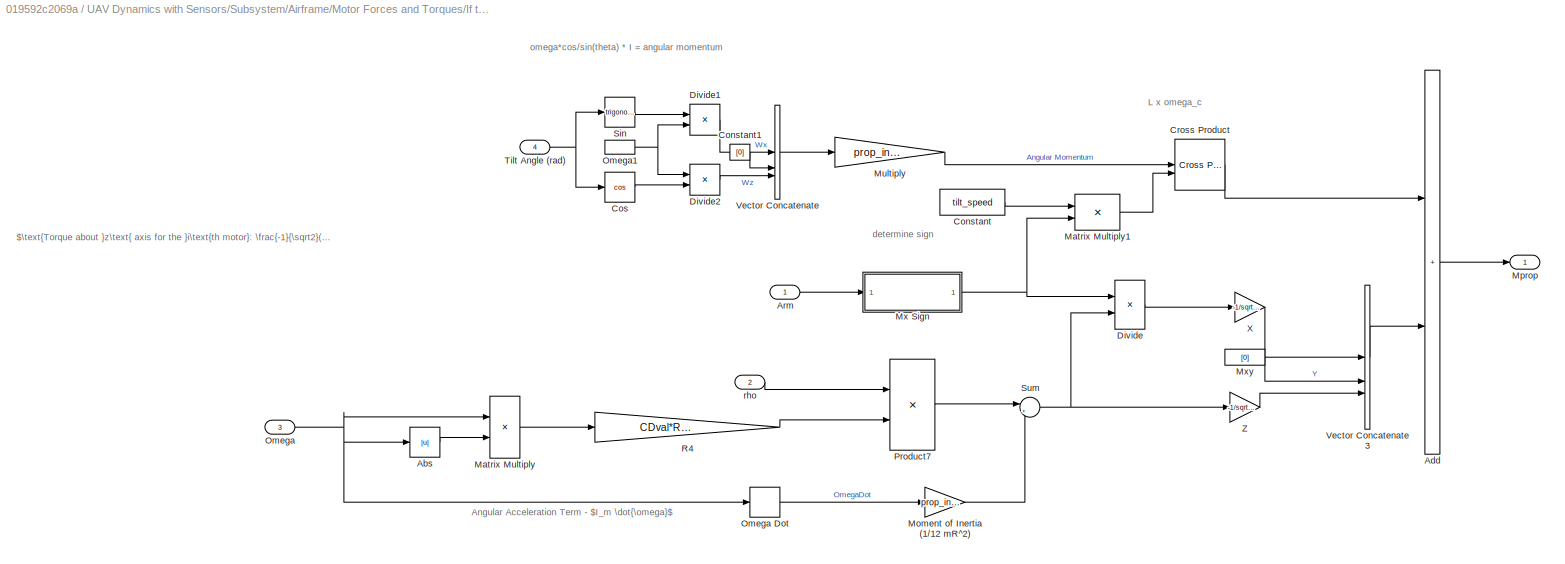
BLOCK [SubSystem] UAV Dynamics with Sensors/Subsystem/Airframe/Motor Forces and Torques/If transitioning/Multirotor Subsystem/Rotor Subsystem/Moment Calculation
BLOCK [Abs] UAV Dynamics with Sensors/Subsystem/Airframe/Motor Forces and Torques/If transitioning/Multirotor Subsystem/Rotor Subsystem/Moment Calculation/Abs
  SaturateOnIntegerOverflow = off
BLOCK [Sum] UAV Dynamics with Sensors/Subsystem/Airframe/Motor Forces and Torques/If transitioning/Multirotor Subsystem/Rotor Subsystem/Moment Calculation/Add
  IconShape = rectangular
  NameLocation = right
BLOCK [Inport] UAV Dynamics with Sensors/Subsystem/Airframe/Motor Forces and Torques/If transitioning/Multirotor Subsystem/Rotor Subsystem/Moment Calculation/Arm
BLOCK [Constant] UAV Dynamics with Sensors/Subsystem/Airframe/Motor Forces and Torques/If transitioning/Multirotor Subsystem/Rotor Subsystem/Moment Calculation/Constant
  Value = tilt_speed
BLOCK [Constant] UAV Dynamics with Sensors/Subsystem/Airframe/Motor Forces and Torques/If transitioning/Multirotor Subsystem/Rotor Subsystem/Moment Calculation/Constant1
  Value = [0]
BLOCK [Trigonometry] UAV Dynamics with Sensors/Subsystem/Airframe/Motor Forces and Torques/If transitioning/Multirotor Subsystem/Rotor Subsystem/Moment Calculation/Cos
  Operator = cos
BLOCK [Reference] UAV Dynamics with Sensors/Subsystem/Airframe/Motor Forces and Torques/If transitioning/Multirotor Subsystem/Rotor Subsystem/Moment Calculation/Cross Product  REF=matrix_library/Cross Product
  LibrarySourceBlock = simulink/Matrix\nOperations/Cross Product
  SourceBlock = matrix_library/Cross Product
  SourceType = CrossProduct
BLOCK [Product] UAV Dynamics with Sensors/Subsystem/Airframe/Motor Forces and Torques/If transitioning/Multirotor Subsystem/Rotor Subsystem/Moment Calculation/Divide
  Inputs = **
BLOCK [Product] UAV Dynamics with Sensors/Subsystem/Airframe/Motor Forces and Torques/If transitioning/Multirotor Subsystem/Rotor Subsystem/Moment Calculation/Divide1
  Inputs = **
BLOCK [Product] UAV Dynamics with Sensors/Subsystem/Airframe/Motor Forces and Torques/If transitioning/Multirotor Subsystem/Rotor Subsystem/Moment Calculation/Divide2
  Inputs = **
BLOCK [Product] UAV Dynamics with Sensors/Subsystem/Airframe/Motor Forces and Torques/If transitioning/Multirotor Subsystem/Rotor Subsystem/Moment Calculation/Matrix Multiply
BLOCK [Product] UAV Dynamics with Sensors/Subsystem/Airframe/Motor Forces and Torques/If transitioning/Multirotor Subsystem/Rotor Subsystem/Moment Calculation/Matrix Multiply1
BLOCK [Gain] UAV Dynamics with Sensors/Subsystem/Airframe/Motor Forces and Torques/If transitioning/Multirotor Subsystem/Rotor Subsystem/Moment Calculation/Moment of Inertia (1//12 mR^2)
  Gain = prop_inertia
BLOCK [Outport] UAV Dynamics with Sensors/Subsystem/Airframe/Motor Forces and Torques/If transitioning/Multirotor Subsystem/Rotor Subsystem/Moment Calculation/Mprop
BLOCK [Gain] UAV Dynamics with Sensors/Subsystem/Airframe/Motor Forces and Torques/If transitioning/Multirotor Subsystem/Rotor Subsystem/Moment Calculation/Multiply
  Gain = prop_inertia
BLOCK [SubSystem] UAV Dynamics with Sensors/Subsystem/Airframe/Motor Forces and Torques/If transitioning/Multirotor Subsystem/Rotor Subsystem/Moment Calculation/Mx Sign
BLOCK [Inport] UAV Dynamics with Sensors/Subsystem/Airframe/Motor Forces and Torques/If transitioning/Multirotor Subsystem/Rotor Subsystem/Moment Calculation/Mx Sign/Arm
BLOCK [Signum] UAV Dynamics with Sensors/Subsystem/Airframe/Motor Forces and Torques/If transitioning/Multirotor Subsystem/Rotor Subsystem/Moment Calculation/Mx Sign/Sign
BLOCK [Selector] UAV Dynamics with Sensors/Subsystem/Airframe/Motor Forces and Torques/If transitioning/Multirotor Subsystem/Rotor Subsystem/Moment Calculation/Mx Sign/X selector
  IndexOptions = Index vector (dialog)
  Indices = [1]
  InputPortWidth = 3
  OutputSizes = 1
BLOCK [Outport] UAV Dynamics with Sensors/Subsystem/Airframe/Motor Forces and Torques/If transitioning/Multirotor Subsystem/Rotor Subsystem/Moment Calculation/Mx Sign/Xsign
BLOCK [Constant] UAV Dynamics with Sensors/Subsystem/Airframe/Motor Forces and Torques/If transitioning/Multirotor Subsystem/Rotor Subsystem/Moment Calculation/Mxy
  Value = [0]
BLOCK [Inport] UAV Dynamics with Sensors/Subsystem/Airframe/Motor Forces and Torques/If transitioning/Multirotor Subsystem/Rotor Subsystem/Moment Calculation/Omega
  Port = 3
BLOCK [Derivative] UAV Dynamics with Sensors/Subsystem/Airframe/Motor Forces and Torques/If transitioning/Multirotor Subsystem/Rotor Subsystem/Moment Calculation/Omega Dot
BLOCK [InportShadow] UAV Dynamics with Sensors/Subsystem/Airframe/Motor Forces and Torques/If transitioning/Multirotor Subsystem/Rotor Subsystem/Moment Calculation/Omega1
  Port = 3
BLOCK [Product] UAV Dynamics with Sensors/Subsystem/Airframe/Motor Forces and Torques/If transitioning/Multirotor Subsystem/Rotor Subsystem/Moment Calculation/Product7
BLOCK [Gain] UAV Dynamics with Sensors/Subsystem/Airframe/Motor Forces and Torques/If transitioning/Multirotor Subsystem/Rotor Subsystem/Moment Calculation/R4
  Gain = CDval*R*R*R*pi*R*R
BLOCK [Trigonometry] UAV Dynamics with Sensors/Subsystem/Airframe/Motor Forces and Torques/If transitioning/Multirotor Subsystem/Rotor Subsystem/Moment Calculation/Sin
BLOCK [Sum] UAV Dynamics with Sensors/Subsystem/Airframe/Motor Forces and Torques/If transitioning/Multirotor Subsystem/Rotor Subsystem/Moment Calculation/Sum
  Inputs = |++
BLOCK [Inport] UAV Dynamics with Sensors/Subsystem/Airframe/Motor Forces and Torques/If transitioning/Multirotor Subsystem/Rotor Subsystem/Moment Calculation/Tilt Angle (rad)
  Port = 4
BLOCK [Concatenate] UAV Dynamics with Sensors/Subsystem/Airframe/Motor Forces and Torques/If transitioning/Multirotor Subsystem/Rotor Subsystem/Moment Calculation/Vector Concatenate
  NumInputs = 3
BLOCK [Concatenate] UAV Dynamics with Sensors/Subsystem/Airframe/Motor Forces and Torques/If transitioning/Multirotor Subsystem/Rotor Subsystem/Moment Calculation/Vector Concatenate3
  NumInputs = 3
BLOCK [Gain] UAV Dynamics with Sensors/Subsystem/Airframe/Motor Forces and Torques/If transitioning/Multirotor Subsystem/Rotor Subsystem/Moment Calculation/X
  Gain = -1/sqrt(2)
BLOCK [Gain] UAV Dynamics with Sensors/Subsystem/Airframe/Motor Forces and Torques/If transitioning/Multirotor Subsystem/Rotor Subsystem/Moment Calculation/Z
  Gain = -1/sqrt(2)
BLOCK [Inport] UAV Dynamics with Sensors/Subsystem/Airframe/Motor Forces and Torques/If transitioning/Multirotor Subsystem/Rotor Subsystem/Moment Calculation/rho
  Port = 2
BLOCK [Outport] UAV Dynamics with Sensors/Subsystem/Airframe/Motor Forces and Torques/If transitioning/Multirotor Subsystem/Rotor Subsystem/Mxyz
  NameLocation = right
  Port = 4
BLOCK [Gain] UAV Dynamics with Sensors/Subsystem/Airframe/Motor Forces and Torques/If transitioning/Multirotor Subsystem/Rotor Subsystem/NED conversion
  Gain = -1
BLOCK [Gain] UAV Dynamics with Sensors/Subsystem/Airframe/Motor Forces and Torques/If transitioning/Multirotor Subsystem/Rotor Subsystem/NED conversion for estimators
  Gain = -1
BLOCK [Gain] UAV Dynamics with Sensors/Subsystem/Airframe/Motor Forces and Torques/If transitioning/Multirotor Subsystem/Rotor Subsystem/RPM to Omega
  Gain = 2*pi/60
BLOCK [Sum] UAV Dynamics with Sensors/Subsystem/Airframe/Motor Forces and Torques/If transitioning/Multirotor Subsystem/Rotor Subsystem/Sum
  Inputs = |++
BLOCK [Inport] UAV Dynamics with Sensors/Subsystem/Airframe/Motor Forces and Torques/If transitioning/Multirotor Subsystem/Rotor Subsystem/Tilt Angle (rad)
  Port = 5
BLOCK [InportShadow] UAV Dynamics with Sensors/Subsystem/Airframe/Motor Forces and Torques/If transitioning/Multirotor Subsystem/Rotor Subsystem/Tilt Angle (rad)1
  Port = 5
BLOCK [InportShadow] UAV Dynamics with Sensors/Subsystem/Airframe/Motor Forces and Torques/If transitioning/Multirotor Subsystem/Rotor Subsystem/Tilt Angle (rad)2
  Port = 5
BLOCK [SubSystem] UAV Dynamics with Sensors/Subsystem/Airframe/Motor Forces and Torques/If transitioning/Multirotor Subsystem/Rotor Subsystem/Tilted Ct Estimator
BLOCK [Abs] UAV Dynamics with Sensors/Subsystem/Airframe/Motor Forces and Torques/If transitioning/Multirotor Subsystem/Rotor Subsystem/Tilted Ct Estimator/Abs
  SaturateOnIntegerOverflow = off
BLOCK [Product] UAV Dynamics with Sensors/Subsystem/Airframe/Motor Forces and Torques/If transitioning/Multirotor Subsystem/Rotor Subsystem/Tilted Ct Estimator/Calculate Ct
  Inputs = **
BLOCK [Outport] UAV Dynamics with Sensors/Subsystem/Airframe/Motor Forces and Torques/If transitioning/Multirotor Subsystem/Rotor Subsystem/Tilted Ct Estimator/Ct
BLOCK [SubSystem] UAV Dynamics with Sensors/Subsystem/Airframe/Motor Forces and Torques/If transitioning/Multirotor Subsystem/Rotor Subsystem/Tilted Ct Estimator/Ct//C0 State Switcher
BLOCK [Inport] UAV Dynamics with Sensors/Subsystem/Airframe/Motor Forces and Torques/If transitioning/Multirotor Subsystem/Rotor Subsystem/Tilted Ct Estimator/Ct//C0 State Switcher/ Vz//Vh
BLOCK [InportShadow] UAV Dynamics with Sensors/Subsystem/Airframe/Motor Forces and Torques/If transitioning/Multirotor Subsystem/Rotor Subsystem/Tilted Ct Estimator/Ct//C0 State Switcher/ Vz//Vh1
BLOCK [Constant] UAV Dynamics with Sensors/Subsystem/Airframe/Motor Forces and Torques/If transitioning/Multirotor Subsystem/Rotor Subsystem/Tilted Ct Estimator/Ct//C0 State Switcher/Constant
  Value = 1.00463796511
BLOCK [Inport] UAV Dynamics with Sensors/Subsystem/Airframe/Motor Forces and Torques/If transitioning/Multirotor Subsystem/Rotor Subsystem/Tilted Ct Estimator/Ct//C0 State Switcher/Ct//C0 Fit
  Port = 2
BLOCK [If] UAV Dynamics with Sensors/Subsystem/Airframe/Motor Forces and Torques/If transitioning/Multirotor Subsystem/Rotor Subsystem/Tilted Ct Estimator/Ct//C0 State Switcher/If
  ElseIfExpressions = u1 < -2.828427125
  IfExpression = u1 >= -2.828427125 & u1 <= 0
BLOCK [SubSystem] UAV Dynamics with Sensors/Subsystem/Airframe/Motor Forces and Torques/If transitioning/Multirotor Subsystem/Rotor Subsystem/Tilted Ct Estimator/Ct//C0 State Switcher/If Action Subsystem
  TreatAsAtomicUnit = on
BLOCK [ActionPort] UAV Dynamics with Sensors/Subsystem/Airframe/Motor Forces and Torques/If transitioning/Multirotor Subsystem/Rotor Subsystem/Tilted Ct Estimator/Ct//C0 State Switcher/If Action Subsystem/Action Port
  ActionPortLabel = if(u1 >= -2.828427125 & u1 <= 0)
BLOCK [Inport] UAV Dynamics with Sensors/Subsystem/Airframe/Motor Forces and Torques/If transitioning/Multirotor Subsystem/Rotor Subsystem/Tilted Ct Estimator/Ct//C0 State Switcher/If Action Subsystem/In1
BLOCK [Outport] UAV Dynamics with Sensors/Subsystem/Airframe/Motor Forces and Torques/If transitioning/Multirotor Subsystem/Rotor Subsystem/Tilted Ct Estimator/Ct//C0 State Switcher/If Action Subsystem/Out1
BLOCK [SubSystem] UAV Dynamics with Sensors/Subsystem/Airframe/Motor Forces and Torques/If transitioning/Multirotor Subsystem/Rotor Subsystem/Tilted Ct Estimator/Ct//C0 State Switcher/If Action Subsystem1
  TreatAsAtomicUnit = on
BLOCK [Outport] UAV Dynamics with Sensors/Subsystem/Airframe/Motor Forces and Torques/If transitioning/Multirotor Subsystem/Rotor Subsystem/Tilted Ct Estimator/Ct//C0 State Switcher/If Action Subsystem1/ 
BLOCK [Inport] UAV Dynamics with Sensors/Subsystem/Airframe/Motor Forces and Torques/If transitioning/Multirotor Subsystem/Rotor Subsystem/Tilted Ct Estimator/Ct//C0 State Switcher/If Action Subsystem1/ Vz//Vh
BLOCK [ActionPort] UAV Dynamics with Sensors/Subsystem/Airframe/Motor Forces and Torques/If transitioning/Multirotor Subsystem/Rotor Subsystem/Tilted Ct Estimator/Ct//C0 State Switcher/If Action Subsystem1/Action Port
  ActionPortLabel = elseif(u1 < -2.828427125)
BLOCK [Sum] UAV Dynamics with Sensors/Subsystem/Airframe/Motor Forces and Torques/If transitioning/Multirotor Subsystem/Rotor Subsystem/Tilted Ct Estimator/Ct//C0 State Switcher/If Action Subsystem1/Add
  IconShape = rectangular
BLOCK [Constant] UAV Dynamics with Sensors/Subsystem/Airframe/Motor Forces and Torques/If transitioning/Multirotor Subsystem/Rotor Subsystem/Tilted Ct Estimator/Ct//C0 State Switcher/If Action Subsystem1/Constant
  Value = 1.007639046
BLOCK [Gain] UAV Dynamics with Sensors/Subsystem/Airframe/Motor Forces and Torques/If transitioning/Multirotor Subsystem/Rotor Subsystem/Tilted Ct Estimator/Ct//C0 State Switcher/If Action Subsystem1/Multiply
  Gain = -1
BLOCK [Math] UAV Dynamics with Sensors/Subsystem/Airframe/Motor Forces and Torques/If transitioning/Multirotor Subsystem/Rotor Subsystem/Tilted Ct Estimator/Ct//C0 State Switcher/If Action Subsystem1/ln
  Operator = log
BLOCK [SubSystem] UAV Dynamics with Sensors/Subsystem/Airframe/Motor Forces and Torques/If transitioning/Multirotor Subsystem/Rotor Subsystem/Tilted Ct Estimator/Ct//C0 State Switcher/If Action Subsystem2
  TreatAsAtomicUnit = on
BLOCK [Inport] UAV Dynamics with Sensors/Subsystem/Airframe/Motor Forces and Torques/If transitioning/Multirotor Subsystem/Rotor Subsystem/Tilted Ct Estimator/Ct//C0 State Switcher/If Action Subsystem2/  
BLOCK [ActionPort] UAV Dynamics with Sensors/Subsystem/Airframe/Motor Forces and Torques/If transitioning/Multirotor Subsystem/Rotor Subsystem/Tilted Ct Estimator/Ct//C0 State Switcher/If Action Subsystem2/Action Port
  ActionPortLabel = else
BLOCK [Outport] UAV Dynamics with Sensors/Subsystem/Airframe/Motor Forces and Torques/If transitioning/Multirotor Subsystem/Rotor Subsystem/Tilted Ct Estimator/Ct//C0 State Switcher/If Action Subsystem2/Out1
BLOCK [Merge] UAV Dynamics with Sensors/Subsystem/Airframe/Motor Forces and Torques/If transitioning/Multirotor Subsystem/Rotor Subsystem/Tilted Ct Estimator/Ct//C0 State Switcher/Merge
  Inputs = 3
BLOCK [Outport] UAV Dynamics with Sensors/Subsystem/Airframe/Motor Forces and Torques/If transitioning/Multirotor Subsystem/Rotor Subsystem/Tilted Ct Estimator/Ct//C0 State Switcher/Out1
BLOCK [Polyval] UAV Dynamics with Sensors/Subsystem/Airframe/Motor Forces and Torques/If transitioning/Multirotor Subsystem/Rotor Subsystem/Tilted Ct Estimator/Ct0 estimator for RPM
  Coefs = [0.000000000012185, -0.000000274732884, 0.008305365728125]
BLOCK [Product] UAV Dynamics with Sensors/Subsystem/Airframe/Motor Forces and Torques/If transitioning/Multirotor Subsystem/Rotor Subsystem/Tilted Ct Estimator/Divide1
  Inputs = */
BLOCK [Polyval] UAV Dynamics with Sensors/Subsystem/Airframe/Motor Forces and Torques/If transitioning/Multirotor Subsystem/Rotor Subsystem/Tilted Ct Estimator/Vh Calculator
  Coefs = [-5.17622414362771e-09, 0.000822973507549008, 0.0232660553338375]
BLOCK [Inport] UAV Dynamics with Sensors/Subsystem/Airframe/Motor Forces and Torques/If transitioning/Multirotor Subsystem/Rotor Subsystem/Tilted Ct Estimator/Vz
BLOCK [SubSystem] UAV Dynamics with Sensors/Subsystem/Airframe/Motor Forces and Torques/If transitioning/Multirotor Subsystem/Rotor Subsystem/Tilted Ct Estimator/Weighted Average Ct//C0 Fit
BLOCK [Sum] UAV Dynamics with Sensors/Subsystem/Airframe/Motor Forces and Torques/If transitioning/Multirotor Subsystem/Rotor Subsystem/Tilted Ct Estimator/Weighted Average Ct//C0 Fit/Add
  IconShape = rectangular
BLOCK [Constant] UAV Dynamics with Sensors/Subsystem/Airframe/Motor Forces and Torques/If transitioning/Multirotor Subsystem/Rotor Subsystem/Tilted Ct Estimator/Weighted Average Ct//C0 Fit/Constant1
  Value = pi/4
BLOCK [Constant] UAV Dynamics with Sensors/Subsystem/Airframe/Motor Forces and Torques/If transitioning/Multirotor Subsystem/Rotor Subsystem/Tilted Ct Estimator/Weighted Average Ct//C0 Fit/Constant2
BLOCK [Polyval] UAV Dynamics with Sensors/Subsystem/Airframe/Motor Forces and Torques/If transitioning/Multirotor Subsystem/Rotor Subsystem/Tilted Ct Estimator/Weighted Average Ct//C0 Fit/Ct//Ct0 Non Tilted Estimator
  Coefs = [0.147117704259973, 0.135195473604728, -0.341999514591595, -0.246799876690693, 0.999678014049876]
BLOCK [Polyval] UAV Dynamics with Sensors/Subsystem/Airframe/Motor Forces and Torques/If transitioning/Multirotor Subsystem/Rotor Subsystem/Tilted Ct Estimator/Weighted Average Ct//C0 Fit/Ct//Ct0 Tilted Estimator
  Coefs = [-0.012716815691322, -0.022830541813396, 0.156313447084851, -0.031641009616291, 1.004637965110952]
BLOCK [Product] UAV Dynamics with Sensors/Subsystem/Airframe/Motor Forces and Torques/If transitioning/Multirotor Subsystem/Rotor Subsystem/Tilted Ct Estimator/Weighted Average Ct//C0 Fit/Divide1
  Inputs = */
BLOCK [Product] UAV Dynamics with Sensors/Subsystem/Airframe/Motor Forces and Torques/If transitioning/Multirotor Subsystem/Rotor Subsystem/Tilted Ct Estimator/Weighted Average Ct//C0 Fit/Matrix Multiply
BLOCK [Product] UAV Dynamics with Sensors/Subsystem/Airframe/Motor Forces and Torques/If transitioning/Multirotor Subsystem/Rotor Subsystem/Tilted Ct Estimator/Weighted Average Ct//C0 Fit/Matrix Multiply1
BLOCK [Outport] UAV Dynamics with Sensors/Subsystem/Airframe/Motor Forces and Torques/If transitioning/Multirotor Subsystem/Rotor Subsystem/Tilted Ct Estimator/Weighted Average Ct//C0 Fit/Out1
BLOCK [Sum] UAV Dynamics with Sensors/Subsystem/Airframe/Motor Forces and Torques/If transitioning/Multirotor Subsystem/Rotor Subsystem/Tilted Ct Estimator/Weighted Average Ct//C0 Fit/Subtract
  IconShape = rectangular
  Inputs = +-
BLOCK [Inport] UAV Dynamics with Sensors/Subsystem/Airframe/Motor Forces and Torques/If transitioning/Multirotor Subsystem/Rotor Subsystem/Tilted Ct Estimator/Weighted Average Ct//C0 Fit/Vz//Vh
BLOCK [Inport] UAV Dynamics with Sensors/Subsystem/Airframe/Motor Forces and Torques/If transitioning/Multirotor Subsystem/Rotor Subsystem/Tilted Ct Estimator/Weighted Average Ct//C0 Fit/tilt_angle
  Port = 2
BLOCK [Inport] UAV Dynamics with Sensors/Subsystem/Airframe/Motor Forces and Torques/If transitioning/Multirotor Subsystem/Rotor Subsystem/Tilted Ct Estimator/rpm
  Port = 2
BLOCK [Inport] UAV Dynamics with Sensors/Subsystem/Airframe/Motor Forces and Torques/If transitioning/Multirotor Subsystem/Rotor Subsystem/Tilted Ct Estimator/tilt_angle
  Port = 3
BLOCK [UnitDelay] UAV Dynamics with Sensors/Subsystem/Airframe/Motor Forces and Torques/If transitioning/Multirotor Subsystem/Rotor Subsystem/Unit Delay
  Commented = on
  HasFrameUpgradeWarning = on
  InitialCondition = lastVh
  SampleTime = 0.001
BLOCK [UnitDelay] UAV Dynamics with Sensors/Subsystem/Airframe/Motor Forces and Torques/If transitioning/Multirotor Subsystem/Rotor Subsystem/Unit Delay1
  Commented = on
  HasFrameUpgradeWarning = on
  InitialCondition = 1
  SampleTime = 0.001
BLOCK [Inport] UAV Dynamics with Sensors/Subsystem/Airframe/Motor Forces and Torques/If transitioning/Multirotor Subsystem/Rotor Subsystem/rho
  Port = 2
BLOCK [InportShadow] UAV Dynamics with Sensors/Subsystem/Airframe/Motor Forces and Torques/If transitioning/Multirotor Subsystem/Rotor Subsystem/rho1
  Port = 2
BLOCK [Inport] UAV Dynamics with Sensors/Subsystem/Airframe/Motor Forces and Torques/If transitioning/Multirotor Subsystem/Rotor Subsystem/rpm
  Port = 3
BLOCK [Outport] UAV Dynamics with Sensors/Subsystem/Airframe/Motor Forces and Torques/If transitioning/Multirotor Subsystem/Thrust
  ConcatenationDimension = 2
BLOCK [Inport] UAV Dynamics with Sensors/Subsystem/Airframe/Motor Forces and Torques/If transitioning/Multirotor Subsystem/Tilt Angle (rad)
  Port = 5
BLOCK [Inport] UAV Dynamics with Sensors/Subsystem/Airframe/Motor Forces and Torques/If transitioning/Multirotor Subsystem/rho
  Port = 2
BLOCK [Inport] UAV Dynamics with Sensors/Subsystem/Airframe/Motor Forces and Torques/If transitioning/Multirotor Subsystem/rpm
  Partition = on
  PartitionDimension = 1
  PartitionOffset = 0
  PartitionWidth = 1
  Port = 3
BLOCK [Sum] UAV Dynamics with Sensors/Subsystem/Airframe/Motor Forces and Torques/If transitioning/Sum of Elements
  CollapseDim = 2
  CollapseMode = Specified dimension
  IconShape = rectangular
  Inputs = +
BLOCK [Sum] UAV Dynamics with Sensors/Subsystem/Airframe/Motor Forces and Torques/If transitioning/Sum of Elements1
  CollapseDim = 2
  CollapseMode = Specified dimension
  IconShape = rectangular
  Inputs = +
BLOCK [Outport] UAV Dynamics with Sensors/Subsystem/Airframe/Motor Forces and Torques/If transitioning/Thrust
BLOCK [Inport] UAV Dynamics with Sensors/Subsystem/Airframe/Motor Forces and Torques/If transitioning/Tilt Angle (Deg)
  Port = 3
BLOCK [Inport] UAV Dynamics with Sensors/Subsystem/Airframe/Motor Forces and Torques/If transitioning/Vz
BLOCK [Constant] UAV Dynamics with Sensors/Subsystem/Airframe/Motor Forces and Torques/If transitioning/rho
  Value = 1.225
BLOCK [Inport] UAV Dynamics with Sensors/Subsystem/Airframe/Motor Forces and Torques/If transitioning/rpm
  Port = 2
BLOCK [Merge] UAV Dynamics with Sensors/Subsystem/Airframe/Motor Forces and Torques/Merge
  InitialOutput = [0]
  Inputs = 3
BLOCK [Outport] UAV Dynamics with Sensors/Subsystem/Airframe/Motor Forces and Torques/Mxyz
  Port = 2
BLOCK [Inport] UAV Dynamics with Sensors/Subsystem/Airframe/Motor Forces and Torques/Tilt Angle
  Port = 3
BLOCK [InportShadow] UAV Dynamics with Sensors/Subsystem/Airframe/Motor Forces and Torques/Tilt Angle1
  Port = 3
BLOCK [Inport] UAV Dynamics with Sensors/Subsystem/Airframe/Motor Forces and Torques/rpm
  Port = 2
BLOCK [Scope] UAV Dynamics with Sensors/Subsystem/Airframe/Scope
  Floating = off
  NumInputPorts = 1
  ScopeSpecificationString = Simulink.scopes.TimeScopeBlockCfg('CurrentConfiguration', extmgr.ConfigurationSet(extmgr.Configuration('Core','General UI',true),extmgr.Configuration('Core','Source UI',true),extmgr.Configuration('Sources','WiredSimulink',true,'DataLoggingVariableName','ScopeData3'),extmgr.Configuration('Visuals','Time Domain',true,'SerializedDisplays',{struct('MinYLimReal','-15.37679','MaxYLimReal','1.62105','YLa...<+1701ch>
BLOCK [Scope] UAV Dynamics with Sensors/Subsystem/Airframe/Scope1
  Floating = off
  NumInputPorts = 1
  ScopeSpecificationString = Simulink.scopes.TimeScopeBlockCfg('CurrentConfiguration', extmgr.ConfigurationSet(extmgr.Configuration('Core','General UI',true),extmgr.Configuration('Core','Source UI',true),extmgr.Configuration('Sources','WiredSimulink',true,'DataLoggingVariableName','ScopeData2'),extmgr.Configuration('Visuals','Time Domain',true,'SerializedDisplays',{struct('MinYLimReal','-1.25','MaxYLimReal','1.25','YLabelReal...<+1464ch>
BLOCK [Selector] UAV Dynamics with Sensors/Subsystem/Airframe/Selector
  IndexOptions = Index vector (dialog)
  Indices = [3]
  InputPortWidth = 3
  OutputSizes = 1
BLOCK [SubSystem] UAV Dynamics with Sensors/Subsystem/Airframe/Subsystem
BLOCK [Inport] UAV Dynamics with Sensors/Subsystem/Airframe/Subsystem/DCMbe
BLOCK [Gain] UAV Dynamics with Sensors/Subsystem/Airframe/Subsystem/Gain1
  Gain = m
BLOCK [Product] UAV Dynamics with Sensors/Subsystem/Airframe/Subsystem/Product
  Multiplication = Matrix(*)
BLOCK [Inport] UAV Dynamics with Sensors/Subsystem/Airframe/Subsystem/gravity
  Port = 2
  Unit = m/s^2
BLOCK [Outport] UAV Dynamics with Sensors/Subsystem/Airframe/Subsystem/gravity force
  Unit = N
  VectorParamsAs1DForOutWhenUnconnected = off
BLOCK [Sum] UAV Dynamics with Sensors/Subsystem/Airframe/Sum
  Inputs = |++
BLOCK [Sum] UAV Dynamics with Sensors/Subsystem/Airframe/Summer
  IconShape = rectangular
  Inputs = ++++
BLOCK [Inport] UAV Dynamics with Sensors/Subsystem/Airframe/Tilt Angle (Deg)
  Port = 2
BLOCK [Math] UAV Dynamics with Sensors/Subsystem/Airframe/Transpose
  Operator = transpose
BLOCK [Inport] UAV Dynamics with Sensors/Subsystem/Airframe/Vb
  Port = 3
BLOCK [InportShadow] UAV Dynamics with Sensors/Subsystem/Airframe/Vb1
  Port = 3
BLOCK [Inport] UAV Dynamics with Sensors/Subsystem/Airframe/Wb
  Port = 6
BLOCK [Inport] UAV Dynamics with Sensors/Subsystem/Airframe/Xe
  Port = 5
BLOCK [Inport] UAV Dynamics with Sensors/Subsystem/Airframe/rpm
BLOCK [Inport] UAV Dynamics with Sensors/Subsystem/Airframe/rpy
  Port = 7
BLOCK [Demux] UAV Dynamics with Sensors/Subsystem/Demux
BLOCK [Gain] UAV Dynamics with Sensors/Subsystem/Gain
  Gain = [-1;-1;1;1]
BLOCK [Gain] UAV Dynamics with Sensors/Subsystem/Gain1
  Gain = 10000
BLOCK [Product] UAV Dynamics with Sensors/Subsystem/Matrix Multiply
  Multiplication = Matrix(*)
BLOCK [Product] UAV Dynamics with Sensors/Subsystem/Matrix Multiply1
  Multiplication = Matrix(*)
BLOCK [Mux] UAV Dynamics with Sensors/Subsystem/Mux
  DisplayOption = bar
BLOCK [Reference] UAV Dynamics with Sensors/Subsystem/Ramp1  REF=simulink/Sources/Ramp
  SourceBlock = simulink/Sources/Ramp
  SourceType = Ramp
BLOCK [RateTransition] UAV Dynamics with Sensors/Subsystem/Rate Transition
  OutPortSampleTime = SampleTime
BLOCK [Scope] UAV Dynamics with Sensors/Subsystem/Scope
  Floating = off
  NumInputPorts = 1
  ScopeSpecificationString = Simulink.scopes.TimeScopeBlockCfg('CurrentConfiguration', extmgr.ConfigurationSet(extmgr.Configuration('Core','General UI',true),extmgr.Configuration('Core','Source UI',true),extmgr.Configuration('Sources','WiredSimulink',true,'DataLoggingVariableName','ScopeData2'),extmgr.Configuration('Visuals','Time Domain',true,'SerializedDisplays',{struct('MinYLimReal','-1.00000','MaxYLimReal','1.00000','YLab...<+1552ch>
BLOCK [Scope] UAV Dynamics with Sensors/Subsystem/Scope1
  Floating = off
  NumInputPorts = 2
  ScopeSpecificationString = Simulink.scopes.TimeScopeBlockCfg('CurrentConfiguration', extmgr.ConfigurationSet(extmgr.Configuration('Core','General UI',true),extmgr.Configuration('Core','Source UI',true),extmgr.Configuration('Sources','WiredSimulink',true,'DataLoggingVariableName','ScopeData2'),extmgr.Configuration('Visuals','Time Domain',true,'SerializedDisplays',{struct('MinYLimReal','-1103.75','MaxYLimReal','11233.75','YLa...<+1598ch>
BLOCK [Outport] UAV Dynamics with Sensors/Subsystem/States
BLOCK [SubSystem] UAV Dynamics with Sensors/Subsystem/States Bus
BLOCK [BusCreator] UAV Dynamics with Sensors/Subsystem/States Bus/Bus Creator
  DisplayOption = bar
  InheritFromInputs = on
  Inputs = X,Y,Z,yaw,pitch,roll,dx,dy,dz,p,q,r,ddx,ddy,ddz
BLOCK [Demux] UAV Dynamics with Sensors/Subsystem/States Bus/Demux
  Outputs = 3
BLOCK [Demux] UAV Dynamics with Sensors/Subsystem/States Bus/Demux1
  Outputs = 3
BLOCK [Demux] UAV Dynamics with Sensors/Subsystem/States Bus/Demux2
  Outputs = 3
BLOCK [Demux] UAV Dynamics with Sensors/Subsystem/States Bus/Demux3
  Outputs = 3
BLOCK [Demux] UAV Dynamics with Sensors/Subsystem/States Bus/Demux4
  Outputs = 3
BLOCK [Outport] UAV Dynamics with Sensors/Subsystem/States Bus/States
BLOCK [Inport] UAV Dynamics with Sensors/Subsystem/States Bus/Ve
BLOCK [Inport] UAV Dynamics with Sensors/Subsystem/States Bus/Xe
  Port = 2
BLOCK [Inport] UAV Dynamics with Sensors/Subsystem/States Bus/acc_lnav
  Port = 5
BLOCK [Inport] UAV Dynamics with Sensors/Subsystem/States Bus/pqr
  Port = 4
BLOCK [Inport] UAV Dynamics with Sensors/Subsystem/States Bus/ypr
  Port = 3
BLOCK [Terminator] UAV Dynamics with Sensors/Subsystem/Terminator
BLOCK [Terminator] UAV Dynamics with Sensors/Subsystem/Terminator1
BLOCK [Inport] UAV Dynamics with Sensors/Subsystem/Throttle [0,1]
BLOCK [Inport] UAV Dynamics with Sensors/Subsystem/Tilt Angle (Deg)
  Port = 2
BLOCK [TransferFcn] UAV Dynamics with Sensors/Subsystem/Transfer Fcn
  Denominator = [rotorTimeConst 1]
  Numerator = [rotorRPMMax]
BLOCK [TransferFcn] UAV Dynamics with Sensors/Subsystem/Transfer Fcn2
  Denominator = [rotorTimeConst 1]
  Numerator = [rotorRPMMax]
BLOCK [TransferFcn] UAV Dynamics with Sensors/Subsystem/Transfer Fcn3
  Denominator = [rotorTimeConst 1]
  Numerator = [rotorRPMMax]
BLOCK [TransferFcn] UAV Dynamics with Sensors/Subsystem/Transfer Fcn4
  Denominator = [rotorTimeConst 1]
  Numerator = [rotorRPMMax]
BLOCK [Math] UAV Dynamics with Sensors/Subsystem/Transpose
  Operator = transpose
BLOCK [Selector] UAV Dynamics with Sensors/Subsystem/ypr
  IndexOptions = Index vector (dialog)
  Indices = [3 2 1]
  InputPortWidth = 3
  OutputSizes = 1
BLOCK [Inport] UAV Dynamics with Sensors/Throttle
BLOCK [Inport] UAV Dynamics with Sensors/Tilt Angle (Deg)
  Port = 2
BLOCK [Outport] UAV Dynamics with Sensors/Velocity
  Port = 6
ANNOTATION Mavlink Packaging/HIL_GPS/HIL_GPS Subsystem: Refer this link for understanding the different fields of HIL_GPS message https://github.com/mavlink/mavlink/blob/master/message_definitions/v1.0/common.xml#L5677
ANNOTATION Mavlink Packaging/HIL_SENSOR/HIL_SENSOR Creation subsystem: Refer this link for understanding the different fields of HIL_SENSOR message https://github.com/mavlink/mavlink/blob/master/message_definitions/v1.0/common.xml#L5608
ANNOTATION UAV Dynamics with Sensors: Baro Simulation
ANNOTATION UAV Dynamics with Sensors/IMU Simulation: Note: we need specific force (accelerometer output) in A-G form, but block gives G-A.
ANNOTATION UAV Dynamics with Sensors/Subsystem: Goals for this model : A novel vortex ring state escape mechanism for a quad tilt-rotor vehicle. 1. accurately portray thrust forces in a quad-tilt rotor vehicle in an in-place descent to design a controller for - curve fits from CFD for descent in both non tilted and tilted configurations 2. simple transition model since horizontal forces and torques cancel out in both configurations - transition...<+262ch>
ANNOTATION UAV Dynamics with Sensors/Subsystem: Note: DCM_be converts a vector written in earth frame to body frame Abe is acceleration of body written in body frame, but measured relative to earth. To get acceleration of body written in earth frame (NED fixed on takeoff location), we need to convert the frame. IMU block's angular velocity and acceleration inputs are written in earth frame (NED)
ANNOTATION UAV Dynamics with Sensors/Subsystem/Airframe/Ground Force/Friction Force/Soft Coulomb Friction: Pennestrì, E., Rossi, V., Salvini, P. et al. Review and comparison of dry friction force models. Nonlinear Dyn 83, 1785–1801 (2016). https://doi.org/10.1007/s11071-015-2485-3
ANNOTATION UAV Dynamics with Sensors/Subsystem/Airframe/Ground Force/Ground Moment Model/Soft Coulomb Friction: Pennestrì, E., Rossi, V., Salvini, P. et al. Review and comparison of dry friction force models. Nonlinear Dyn 83, 1785–1801 (2016). https://doi.org/10.1007/s11071-015-2485-3
ANNOTATION UAV Dynamics with Sensors/Subsystem/Airframe/Motor Forces and Torques/If Tilted/Multirotor Subsystem/Rotor Subsystem: initialize Vh (uncomment when need to initialize for new prop
ANNOTATION UAV Dynamics with Sensors/Subsystem/Airframe/Motor Forces and Torques/If Tilted/Multirotor Subsystem/Rotor Subsystem/Ct Estimator: Ct and Ct/Ct0 estimators are derived from CFD data
ANNOTATION UAV Dynamics with Sensors/Subsystem/Airframe/Motor Forces and Torques/If Tilted/Multirotor Subsystem/Rotor Subsystem/Ct Estimator: this Vh curve is derived from performing a convergence on the thrust curve
ANNOTATION UAV Dynamics with Sensors/Subsystem/Airframe/Motor Forces and Torques/If Tilted/Multirotor Subsystem/Rotor Subsystem/Ct Estimator/Ct//C0 State Switcher/If Action Subsystem1: 1/2 * ln(-(x+1.23626605195)) + 1.814813688
ANNOTATION UAV Dynamics with Sensors/Subsystem/Airframe/Motor Forces and Torques/If Tilted/Multirotor Subsystem/Rotor Subsystem/Moment Calculation: $\text{Torque about }z\text{ axis for the }i\text{th motor}: \frac{-1}{\sqrt2}(b\omega^2 + I_M \dot{w}), \text{where } b = \rho C_D AR^3$
ANNOTATION UAV Dynamics with Sensors/Subsystem/Airframe/Motor Forces and Torques/If Tilted/Multirotor Subsystem/Rotor Subsystem/Moment Calculation: Angular Acceleration Term - $I_m \dot{\omega}$
ANNOTATION UAV Dynamics with Sensors/Subsystem/Airframe/Motor Forces and Torques/If non tilted/Multirotor Subsystem/Rotor Subsystem: initialize Vh (uncomment when need to initialize for new prop
ANNOTATION UAV Dynamics with Sensors/Subsystem/Airframe/Motor Forces and Torques/If non tilted/Multirotor Subsystem/Rotor Subsystem/Moment Calculation: $\text{Torque about }z\text{ axis for the }i\text{th motor}: \frac{-1}{\sqrt2}(b\omega^2 + I_M \dot{w}), \text{where } b = \rho C_D AR^3$
ANNOTATION UAV Dynamics with Sensors/Subsystem/Airframe/Motor Forces and Torques/If non tilted/Multirotor Subsystem/Rotor Subsystem/Moment Calculation: Angular Acceleration Term - $I_m \dot{\omega}$
ANNOTATION UAV Dynamics with Sensors/Subsystem/Airframe/Motor Forces and Torques/If non tilted/Multirotor Subsystem/Rotor Subsystem/Non Tilted Ct estimator/Ct//C0 State Switcher: add random number variations to VRS thrust to simulate thrust fluctuations
ANNOTATION UAV Dynamics with Sensors/Subsystem/Airframe/Motor Forces and Torques/If non tilted/Multirotor Subsystem/Rotor Subsystem/Non Tilted Ct estimator/Ct//C0 State Switcher/Past Curve Fit: 1/2*ln(-(x+1.7439783573836165)) + 2.07884583669
ANNOTATION UAV Dynamics with Sensors/Subsystem/Airframe/Motor Forces and Torques/If transitioning/Multirotor Subsystem/Rotor Subsystem: initialize Vh (uncomment when need to initialize for new prop
ANNOTATION UAV Dynamics with Sensors/Subsystem/Airframe/Motor Forces and Torques/If transitioning/Multirotor Subsystem/Rotor Subsystem/Moment Calculation: $\text{Torque about }z\text{ axis for the }i\text{th motor}: \frac{-1}{\sqrt2}(b\omega^2 + I_M \dot{w}), \text{where } b = \rho C_D AR^3$
ANNOTATION UAV Dynamics with Sensors/Subsystem/Airframe/Motor Forces and Torques/If transitioning/Multirotor Subsystem/Rotor Subsystem/Moment Calculation: Angular Acceleration Term - $I_m \dot{\omega}$
ANNOTATION UAV Dynamics with Sensors/Subsystem/Airframe/Motor Forces and Torques/If transitioning/Multirotor Subsystem/Rotor Subsystem/Moment Calculation: L x omega_c
ANNOTATION UAV Dynamics with Sensors/Subsystem/Airframe/Motor Forces and Torques/If transitioning/Multirotor Subsystem/Rotor Subsystem/Moment Calculation: determine sign
ANNOTATION UAV Dynamics with Sensors/Subsystem/Airframe/Motor Forces and Torques/If transitioning/Multirotor Subsystem/Rotor Subsystem/Moment Calculation: omega*cos/sin(theta) * I = angular momentum
ANNOTATION UAV Dynamics with Sensors/Subsystem/Airframe/Motor Forces and Torques/If transitioning/Multirotor Subsystem/Rotor Subsystem/Tilted Ct Estimator: - calculate ct/c0 from both estimators - use tilt angle to perform a weighted average
ANNOTATION UAV Dynamics with Sensors/Subsystem/Airframe/Motor Forces and Torques/If transitioning/Multirotor Subsystem/Rotor Subsystem/Tilted Ct Estimator: Accurate method: - model the tilt in ansys and find the thrust variation
ANNOTATION UAV Dynamics with Sensors/Subsystem/Airframe/Motor Forces and Torques/If transitioning/Multirotor Subsystem/Rotor Subsystem/Tilted Ct Estimator: Possible simplified method: - stick to vrs dynamics from non tilted state for transitioning part -> more conservative - do some interpolation between tilted and non tilted estimators
LINE Constant:1 -> UAV Dynamics with Sensors:2
LINE Input Signal Conditioning/Constant1:1 -> Input Signal Conditioning/Switch:3
LINE Input Signal Conditioning/Constant:1 -> Input Signal Conditioning/Mux1:1
LINE Input Signal Conditioning/Data Length:1 -> Input Signal Conditioning/Data Type Conversion:1
NET Input Signal Conditioning/Data Type Conversion:1 -> Input Signal Conditioning/Mux1:2, Input Signal Conditioning/Switch:2
LINE Input Signal Conditioning/From_Autopilot:1 -> Input Signal Conditioning/Selector:1
LINE Input Signal Conditioning/Mux1:1 -> Input Signal Conditioning/Selector:2
LINE Input Signal Conditioning/Reshape:1 -> Input Signal Conditioning/Signal:1
LINE Input Signal Conditioning/Selector:1 -> Input Signal Conditioning/Switch:1
LINE Input Signal Conditioning/Switch:1 -> Input Signal Conditioning/Reshape:1
LINE Input Signal Conditioning:1 -> Mavlink Actuator Conversion:1
LINE MAVLink Bridge Source:1 -> Input Signal Conditioning:1
LINE MAVLink Bridge Source:2 -> Input Signal Conditioning:2
LINE Mavlink Actuator Conversion/Bus Selector:1 -> Mavlink Actuator Conversion/Data Type Conversion:1
LINE Mavlink Actuator Conversion/Data Type Conversion:1 -> Mavlink Actuator Conversion/Selector1:1
LINE Mavlink Actuator Conversion/HIL ACTUATOR_bytes:1 -> Mavlink Actuator Conversion/MAVLink Deserializer:1
LINE Mavlink Actuator Conversion/MAVLink Deserializer:1 -> Mavlink Actuator Conversion/Terminator:1
LINE Mavlink Actuator Conversion/MAVLink Deserializer:2 -> Mavlink Actuator Conversion/Bus Selector:1
LINE Mavlink Actuator Conversion/Saturation:1 -> Mavlink Actuator Conversion/Actuator:1
LINE Mavlink Actuator Conversion/Selector1:1 -> Mavlink Actuator Conversion/Saturation:1
LINE Mavlink Actuator Conversion:1 -> UAV Dynamics with Sensors:1
LINE Mavlink Packaging/Acc:1 -> Mavlink Packaging/HIL_SENSOR:1
LINE Mavlink Packaging/Bus Assignment:1 -> Mavlink Packaging/Rate Transition:1
LINE Mavlink Packaging/Course:1 -> Mavlink Packaging/HIL_GPS:4
LINE Mavlink Packaging/GndSpeed:1 -> Mavlink Packaging/HIL_GPS:3
LINE Mavlink Packaging/Gyro:1 -> Mavlink Packaging/HIL_SENSOR:2
LINE Mavlink Packaging/HIL_GPS/Course:1 -> Mavlink Packaging/HIL_GPS/HIL_GPS Subsystem:4
LINE Mavlink Packaging/HIL_GPS/GndSpeed:1 -> Mavlink Packaging/HIL_GPS/HIL_GPS Subsystem:3
LINE Mavlink Packaging/HIL_GPS/HIL_GPS Subsystem/Altitude in mm:1 -> Mavlink Packaging/HIL_GPS/HIL_GPS Subsystem/Bus Assignment:5
LINE Mavlink Packaging/HIL_GPS/HIL_GPS Subsystem/Bus Assignment:1 -> Mavlink Packaging/HIL_GPS/HIL_GPS Subsystem/Out1:1
LINE Mavlink Packaging/HIL_GPS/HIL_GPS Subsystem/Clock:1 -> Mavlink Packaging/HIL_GPS/HIL_GPS Subsystem/Rate Transition:1
LINE Mavlink Packaging/HIL_GPS/HIL_GPS Subsystem/Constant3:1 -> Mavlink Packaging/HIL_GPS/HIL_GPS Subsystem/Data Type Conversion3:1
LINE Mavlink Packaging/HIL_GPS/HIL_GPS Subsystem/Course:1 -> Mavlink Packaging/HIL_GPS/HIL_GPS Subsystem/Gain4:1
LINE Mavlink Packaging/HIL_GPS/HIL_GPS Subsystem/Data Type Conversion1:1 -> Mavlink Packaging/HIL_GPS/HIL_GPS Subsystem/Bus Assignment:12
LINE Mavlink Packaging/HIL_GPS/HIL_GPS Subsystem/Data Type Conversion2:1 -> Mavlink Packaging/HIL_GPS/HIL_GPS Subsystem/Demux:1
LINE Mavlink Packaging/HIL_GPS/HIL_GPS Subsystem/Data Type Conversion3:1 -> Mavlink Packaging/HIL_GPS/HIL_GPS Subsystem/Bus Assignment:13
LINE Mavlink Packaging/HIL_GPS/HIL_GPS Subsystem/Demux1:1 -> Mavlink Packaging/HIL_GPS/HIL_GPS Subsystem/lat//lon in degE7:1
LINE Mavlink Packaging/HIL_GPS/HIL_GPS Subsystem/Demux1:2 -> Mavlink Packaging/HIL_GPS/HIL_GPS Subsystem/lat//lon in degE1:1
LINE Mavlink Packaging/HIL_GPS/HIL_GPS Subsystem/Demux1:3 -> Mavlink Packaging/HIL_GPS/HIL_GPS Subsystem/Altitude in mm:1
LINE Mavlink Packaging/HIL_GPS/HIL_GPS Subsystem/Demux:1 -> Mavlink Packaging/HIL_GPS/HIL_GPS Subsystem/Bus Assignment:9
LINE Mavlink Packaging/HIL_GPS/HIL_GPS Subsystem/Demux:2 -> Mavlink Packaging/HIL_GPS/HIL_GPS Subsystem/Bus Assignment:10
LINE Mavlink Packaging/HIL_GPS/HIL_GPS Subsystem/Demux:3 -> Mavlink Packaging/HIL_GPS/HIL_GPS Subsystem/Bus Assignment:11
LINE Mavlink Packaging/HIL_GPS/HIL_GPS Subsystem/Gain1:1 -> Mavlink Packaging/HIL_GPS/HIL_GPS Subsystem/Data Type Conversion2:1
LINE Mavlink Packaging/HIL_GPS/HIL_GPS Subsystem/Gain2:1 -> Mavlink Packaging/HIL_GPS/HIL_GPS Subsystem/Bus Assignment:8
LINE Mavlink Packaging/HIL_GPS/HIL_GPS Subsystem/Gain3:1 -> Mavlink Packaging/HIL_GPS/HIL_GPS Subsystem/Bus Assignment:7
LINE Mavlink Packaging/HIL_GPS/HIL_GPS Subsystem/Gain4:1 -> Mavlink Packaging/HIL_GPS/HIL_GPS Subsystem/Data Type Conversion1:1
LINE Mavlink Packaging/HIL_GPS/HIL_GPS Subsystem/Gain:1 -> Mavlink Packaging/HIL_GPS/HIL_GPS Subsystem/Bus Assignment:6
LINE Mavlink Packaging/HIL_GPS/HIL_GPS Subsystem/GndSpeed:1 -> Mavlink Packaging/HIL_GPS/HIL_GPS Subsystem/Gain2:1
LINE Mavlink Packaging/HIL_GPS/HIL_GPS Subsystem/LLA:1 -> Mavlink Packaging/HIL_GPS/HIL_GPS Subsystem/Demux1:1
LINE Mavlink Packaging/HIL_GPS/HIL_GPS Subsystem/MAVLink Blank Message2:1 -> Mavlink Packaging/HIL_GPS/HIL_GPS Subsystem/Bus Assignment:1
LINE Mavlink Packaging/HIL_GPS/HIL_GPS Subsystem/Multiply:1 -> Mavlink Packaging/HIL_GPS/HIL_GPS Subsystem/Bus Assignment:2
LINE Mavlink Packaging/HIL_GPS/HIL_GPS Subsystem/Number of satellites visible. If unknown, set to 255:1 -> Mavlink Packaging/HIL_GPS/HIL_GPS Subsystem/Bus Assignment:14
LINE Mavlink Packaging/HIL_GPS/HIL_GPS Subsystem/Rate Transition:1 -> Mavlink Packaging/HIL_GPS/HIL_GPS Subsystem/Multiply:1
LINE Mavlink Packaging/HIL_GPS/HIL_GPS Subsystem/Velocity:1 -> Mavlink Packaging/HIL_GPS/HIL_GPS Subsystem/Gain1:1
LINE Mavlink Packaging/HIL_GPS/HIL_GPS Subsystem/eph:1 -> Mavlink Packaging/HIL_GPS/HIL_GPS Subsystem/Gain:1
LINE Mavlink Packaging/HIL_GPS/HIL_GPS Subsystem/epv:1 -> Mavlink Packaging/HIL_GPS/HIL_GPS Subsystem/Gain3:1
LINE Mavlink Packaging/HIL_GPS/HIL_GPS Subsystem/lat//lon in degE1:1 -> Mavlink Packaging/HIL_GPS/HIL_GPS Subsystem/Bus Assignment:4
LINE Mavlink Packaging/HIL_GPS/HIL_GPS Subsystem/lat//lon in degE7:1 -> Mavlink Packaging/HIL_GPS/HIL_GPS Subsystem/Bus Assignment:3
LINE Mavlink Packaging/HIL_GPS/HIL_GPS Subsystem:1 -> Mavlink Packaging/HIL_GPS/Rate Transition:1
LINE Mavlink Packaging/HIL_GPS/LLA:1 -> Mavlink Packaging/HIL_GPS/HIL_GPS Subsystem:1
LINE Mavlink Packaging/HIL_GPS/MAVLink Serializer3:1 -> Mavlink Packaging/HIL_GPS/HIL_GPS_bytes:1
LINE Mavlink Packaging/HIL_GPS/MAVLink Serializer3:2 -> Mavlink Packaging/HIL_GPS/Terminator2:1
LINE Mavlink Packaging/HIL_GPS/Rate Transition:1 -> Mavlink Packaging/HIL_GPS/MAVLink Serializer3:1
LINE Mavlink Packaging/HIL_GPS/Velocity:1 -> Mavlink Packaging/HIL_GPS/HIL_GPS Subsystem:2
LINE Mavlink Packaging/HIL_GPS:1 -> Mavlink Packaging/Mux:2
LINE Mavlink Packaging/HIL_SENSOR/Acc:1 -> Mavlink Packaging/HIL_SENSOR/HIL_SENSOR Creation subsystem:1
LINE Mavlink Packaging/HIL_SENSOR/Gyro:1 -> Mavlink Packaging/HIL_SENSOR/HIL_SENSOR Creation subsystem:2
LINE Mavlink Packaging/HIL_SENSOR/HIL_SENSOR Creation subsystem/Acc:1 -> Mavlink Packaging/HIL_SENSOR/HIL_SENSOR Creation subsystem/Data Type Conversion5:1
LINE Mavlink Packaging/HIL_SENSOR/HIL_SENSOR Creation subsystem/Bus Assignment1:1 -> Mavlink Packaging/HIL_SENSOR/HIL_SENSOR Creation subsystem/HIL Sensor:1
LINE Mavlink Packaging/HIL_SENSOR/HIL_SENSOR Creation subsystem/Clock:1 -> Mavlink Packaging/HIL_SENSOR/HIL_SENSOR Creation subsystem/Rate Transition:1
LINE Mavlink Packaging/HIL_SENSOR/HIL_SENSOR Creation subsystem/Data Type Conversion1:1 -> Mavlink Packaging/HIL_SENSOR/HIL_SENSOR Creation subsystem/Demux1:1
LINE Mavlink Packaging/HIL_SENSOR/HIL_SENSOR Creation subsystem/Data Type Conversion2:1 -> Mavlink Packaging/HIL_SENSOR/HIL_SENSOR Creation subsystem/Demux2:1
LINE Mavlink Packaging/HIL_SENSOR/HIL_SENSOR Creation subsystem/Data Type Conversion3:1 -> Mavlink Packaging/HIL_SENSOR/HIL_SENSOR Creation subsystem/Bus Assignment1:12
LINE Mavlink Packaging/HIL_SENSOR/HIL_SENSOR Creation subsystem/Data Type Conversion5:1 -> Mavlink Packaging/HIL_SENSOR/HIL_SENSOR Creation subsystem/Demux:1
LINE Mavlink Packaging/HIL_SENSOR/HIL_SENSOR Creation subsystem/Demux1:1 -> Mavlink Packaging/HIL_SENSOR/HIL_SENSOR Creation subsystem/Bus Assignment1:6
LINE Mavlink Packaging/HIL_SENSOR/HIL_SENSOR Creation subsystem/Demux1:2 -> Mavlink Packaging/HIL_SENSOR/HIL_SENSOR Creation subsystem/Bus Assignment1:7
LINE Mavlink Packaging/HIL_SENSOR/HIL_SENSOR Creation subsystem/Demux1:3 -> Mavlink Packaging/HIL_SENSOR/HIL_SENSOR Creation subsystem/Bus Assignment1:8
LINE Mavlink Packaging/HIL_SENSOR/HIL_SENSOR Creation subsystem/Demux2:1 -> Mavlink Packaging/HIL_SENSOR/HIL_SENSOR Creation subsystem/Bus Assignment1:9
LINE Mavlink Packaging/HIL_SENSOR/HIL_SENSOR Creation subsystem/Demux2:2 -> Mavlink Packaging/HIL_SENSOR/HIL_SENSOR Creation subsystem/Bus Assignment1:10
LINE Mavlink Packaging/HIL_SENSOR/HIL_SENSOR Creation subsystem/Demux2:3 -> Mavlink Packaging/HIL_SENSOR/HIL_SENSOR Creation subsystem/Bus Assignment1:11
LINE Mavlink Packaging/HIL_SENSOR/HIL_SENSOR Creation subsystem/Demux:1 -> Mavlink Packaging/HIL_SENSOR/HIL_SENSOR Creation subsystem/Bus Assignment1:3
LINE Mavlink Packaging/HIL_SENSOR/HIL_SENSOR Creation subsystem/Demux:2 -> Mavlink Packaging/HIL_SENSOR/HIL_SENSOR Creation subsystem/Bus Assignment1:4
LINE Mavlink Packaging/HIL_SENSOR/HIL_SENSOR Creation subsystem/Demux:3 -> Mavlink Packaging/HIL_SENSOR/HIL_SENSOR Creation subsystem/Bus Assignment1:5
LINE Mavlink Packaging/HIL_SENSOR/HIL_SENSOR Creation subsystem/Gain2:1 -> Mavlink Packaging/HIL_SENSOR/HIL_SENSOR Creation subsystem/Data Type Conversion3:1
LINE Mavlink Packaging/HIL_SENSOR/HIL_SENSOR Creation subsystem/Gain3:1 -> Mavlink Packaging/HIL_SENSOR/HIL_SENSOR Creation subsystem/Data Type Conversion2:1
LINE Mavlink Packaging/HIL_SENSOR/HIL_SENSOR Creation subsystem/Gyro:1 -> Mavlink Packaging/HIL_SENSOR/HIL_SENSOR Creation subsystem/Data Type Conversion1:1
LINE Mavlink Packaging/HIL_SENSOR/HIL_SENSOR Creation subsystem/MAVLink Blank Message1:1 -> Mavlink Packaging/HIL_SENSOR/HIL_SENSOR Creation subsystem/Bus Assignment1:1
LINE Mavlink Packaging/HIL_SENSOR/HIL_SENSOR Creation subsystem/Mag:1 -> Mavlink Packaging/HIL_SENSOR/HIL_SENSOR Creation subsystem/Gain3:1
LINE Mavlink Packaging/HIL_SENSOR/HIL_SENSOR Creation subsystem/Multiply:1 -> Mavlink Packaging/HIL_SENSOR/HIL_SENSOR Creation subsystem/Bus Assignment1:2
LINE Mavlink Packaging/HIL_SENSOR/HIL_SENSOR Creation subsystem/Pressure:1 -> Mavlink Packaging/HIL_SENSOR/HIL_SENSOR Creation subsystem/Gain2:1
LINE Mavlink Packaging/HIL_SENSOR/HIL_SENSOR Creation subsystem/Rate Transition:1 -> Mavlink Packaging/HIL_SENSOR/HIL_SENSOR Creation subsystem/Multiply:1
LINE Mavlink Packaging/HIL_SENSOR/HIL_SENSOR Creation subsystem/Set this flag to indicate all flags are updated:1 -> Mavlink Packaging/HIL_SENSOR/HIL_SENSOR Creation subsystem/Bus Assignment1:13
LINE Mavlink Packaging/HIL_SENSOR/HIL_SENSOR Creation subsystem/Temperature:1 -> Mavlink Packaging/HIL_SENSOR/HIL_SENSOR Creation subsystem/Bus Assignment1:14
LINE Mavlink Packaging/HIL_SENSOR/HIL_SENSOR Creation subsystem:1 -> Mavlink Packaging/HIL_SENSOR/Rate Transition:1
LINE Mavlink Packaging/HIL_SENSOR/MAVLink Serializer1:1 -> Mavlink Packaging/HIL_SENSOR/HIL_SENSOR_bytes:1
LINE Mavlink Packaging/HIL_SENSOR/MAVLink Serializer1:2 -> Mavlink Packaging/HIL_SENSOR/Terminator:1
LINE Mavlink Packaging/HIL_SENSOR/Mag:1 -> Mavlink Packaging/HIL_SENSOR/HIL_SENSOR Creation subsystem:3
LINE Mavlink Packaging/HIL_SENSOR/Pressure:1 -> Mavlink Packaging/HIL_SENSOR/HIL_SENSOR Creation subsystem:4
LINE Mavlink Packaging/HIL_SENSOR/Rate Transition:1 -> Mavlink Packaging/HIL_SENSOR/MAVLink Serializer1:1
LINE Mavlink Packaging/HIL_SENSOR:1 -> Mavlink Packaging/Mux:1
LINE Mavlink Packaging/LLA:1 -> Mavlink Packaging/HIL_GPS:1
LINE Mavlink Packaging/MAVLink Blank Message:1 -> Mavlink Packaging/Bus Assignment:1
LINE Mavlink Packaging/MAVLink Serializer:2 -> Mavlink Packaging/Terminator2:1
LINE Mavlink Packaging/Mag:1 -> Mavlink Packaging/HIL_SENSOR:3
LINE Mavlink Packaging/Mux:1 -> Mavlink Packaging/Outport:1
LINE Mavlink Packaging/Pressure:1 -> Mavlink Packaging/HIL_SENSOR:4
LINE Mavlink Packaging/Rate Transition:1 -> Mavlink Packaging/MAVLink Serializer:1
LINE Mavlink Packaging/Send Heartbeat/Bus Assignment:1 -> Mavlink Packaging/Send Heartbeat/MAVLink Serializer:1
LINE Mavlink Packaging/Send Heartbeat/Constant1:1 -> Mavlink Packaging/Send Heartbeat/Data Type Conversion1:1
LINE Mavlink Packaging/Send Heartbeat/Constant2:1 -> Mavlink Packaging/Send Heartbeat/Bus Assignment:5
LINE Mavlink Packaging/Send Heartbeat/Constant3:1 -> Mavlink Packaging/Send Heartbeat/Bus Assignment:4
LINE Mavlink Packaging/Send Heartbeat/Constant:1 -> Mavlink Packaging/Send Heartbeat/Data Type Conversion:1
LINE Mavlink Packaging/Send Heartbeat/Data Type Conversion1:1 -> Mavlink Packaging/Send Heartbeat/Bus Assignment:3
LINE Mavlink Packaging/Send Heartbeat/Data Type Conversion:1 -> Mavlink Packaging/Send Heartbeat/Bus Assignment:2
LINE Mavlink Packaging/Send Heartbeat/MAVLink Blank Message:1 -> Mavlink Packaging/Send Heartbeat/Bus Assignment:1
LINE Mavlink Packaging/Send Heartbeat/MAVLink Serializer:1 -> Mavlink Packaging/Send Heartbeat/HEARTBEAT_bytes:1
LINE Mavlink Packaging/Send Heartbeat/MAVLink Serializer:2 -> Mavlink Packaging/Send Heartbeat/Terminator4:1
LINE Mavlink Packaging/Send Heartbeat:1 -> Mavlink Packaging/Mux:3
LINE Mavlink Packaging/Velocity:1 -> Mavlink Packaging/HIL_GPS:2
LINE Mavlink Packaging:1 -> MAVLink Bridge Sink:1
LINE UAV Dynamics with Sensors/ /Extract Altitude:1 -> UAV Dynamics with Sensors/ /Gain2:1
LINE UAV Dynamics with Sensors/ /GPS Position:1 -> UAV Dynamics with Sensors/ /Extract Altitude:1
LINE UAV Dynamics with Sensors/ /Gain1:1 -> UAV Dynamics with Sensors/ /Lapse Rate Model:1
LINE UAV Dynamics with Sensors/ /Gain2:1 -> UAV Dynamics with Sensors/ /Sum1:1
LINE UAV Dynamics with Sensors/ /Lapse Rate Model:1 -> UAV Dynamics with Sensors/ /Terminator:1
LINE UAV Dynamics with Sensors/ /Lapse Rate Model:2 -> UAV Dynamics with Sensors/ /Terminator1:1
LINE UAV Dynamics with Sensors/ /Lapse Rate Model:3 -> UAV Dynamics with Sensors/ /Pressure:1
LINE UAV Dynamics with Sensors/ /Lapse Rate Model:4 -> UAV Dynamics with Sensors/ /Terminator2:1
LINE UAV Dynamics with Sensors/ /Random Number1:1 -> UAV Dynamics with Sensors/ /Sum1:2
LINE UAV Dynamics with Sensors/ /Sum1:1 -> UAV Dynamics with Sensors/ /Gain1:1
LINE UAV Dynamics with Sensors/ :1 -> UAV Dynamics with Sensors/Pressure:1
LINE UAV Dynamics with Sensors/GNSS//GPS Simulation/Bus Selector1:1 -> UAV Dynamics with Sensors/GNSS//GPS Simulation/Reshape3:1
LINE UAV Dynamics with Sensors/GNSS//GPS Simulation/Bus Selector:1 -> UAV Dynamics with Sensors/GNSS//GPS Simulation/Reshape1:1
LINE UAV Dynamics with Sensors/GNSS//GPS Simulation/GPS:1 -> UAV Dynamics with Sensors/GNSS//GPS Simulation/LLA:1
LINE UAV Dynamics with Sensors/GNSS//GPS Simulation/GPS:2 -> UAV Dynamics with Sensors/GNSS//GPS Simulation/Velocity:1
LINE UAV Dynamics with Sensors/GNSS//GPS Simulation/GPS:3 -> UAV Dynamics with Sensors/GNSS//GPS Simulation/GndSpeed:1
LINE UAV Dynamics with Sensors/GNSS//GPS Simulation/GPS:4 -> UAV Dynamics with Sensors/GNSS//GPS Simulation/Course:1
LINE UAV Dynamics with Sensors/GNSS//GPS Simulation/Reshape1:1 -> UAV Dynamics with Sensors/GNSS//GPS Simulation/GPS:2
LINE UAV Dynamics with Sensors/GNSS//GPS Simulation/Reshape3:1 -> UAV Dynamics with Sensors/GNSS//GPS Simulation/GPS:1
NET UAV Dynamics with Sensors/GNSS//GPS Simulation/States:1 -> UAV Dynamics with Sensors/GNSS//GPS Simulation/Bus Selector1:1, UAV Dynamics with Sensors/GNSS//GPS Simulation/Bus Selector:1
LINE UAV Dynamics with Sensors/GNSS//GPS Simulation:1 -> UAV Dynamics with Sensors/Velocity:1
LINE UAV Dynamics with Sensors/GNSS//GPS Simulation:2 -> UAV Dynamics with Sensors/GndSpeed:1
LINE UAV Dynamics with Sensors/GNSS//GPS Simulation:3 -> UAV Dynamics with Sensors/Course:1
NET UAV Dynamics with Sensors/GNSS//GPS Simulation:4 -> UAV Dynamics with Sensors/ :1, UAV Dynamics with Sensors/LLA:1
LINE UAV Dynamics with Sensors/IMU Simulation/Bus Selector1:1 -> UAV Dynamics with Sensors/IMU Simulation/Reshape2:1
LINE UAV Dynamics with Sensors/IMU Simulation/Bus Selector2:1 -> UAV Dynamics with Sensors/IMU Simulation/Coordinate Transformation Conversion1:1
LINE UAV Dynamics with Sensors/IMU Simulation/Bus Selector3:1 -> UAV Dynamics with Sensors/IMU Simulation/Reshape:1
LINE UAV Dynamics with Sensors/IMU Simulation/Coordinate Transformation Conversion1:1 -> UAV Dynamics with Sensors/IMU Simulation/Reshape3:1
LINE UAV Dynamics with Sensors/IMU Simulation/Gain:1 -> UAV Dynamics with Sensors/IMU Simulation/Acc:1
LINE UAV Dynamics with Sensors/IMU Simulation/IMU1:1 -> UAV Dynamics with Sensors/IMU Simulation/Gain:1
LINE UAV Dynamics with Sensors/IMU Simulation/IMU1:2 -> UAV Dynamics with Sensors/IMU Simulation/Gyro:1
LINE UAV Dynamics with Sensors/IMU Simulation/IMU1:3 -> UAV Dynamics with Sensors/IMU Simulation/Mag:1
LINE UAV Dynamics with Sensors/IMU Simulation/Reshape2:1 -> UAV Dynamics with Sensors/IMU Simulation/IMU1:2
LINE UAV Dynamics with Sensors/IMU Simulation/Reshape3:1 -> UAV Dynamics with Sensors/IMU Simulation/IMU1:3
LINE UAV Dynamics with Sensors/IMU Simulation/Reshape:1 -> UAV Dynamics with Sensors/IMU Simulation/IMU1:1
NET UAV Dynamics with Sensors/IMU Simulation/States:1 -> UAV Dynamics with Sensors/IMU Simulation/Bus Selector1:1, UAV Dynamics with Sensors/IMU Simulation/Bus Selector2:1, UAV Dynamics with Sensors/IMU Simulation/Bus Selector3:1
LINE UAV Dynamics with Sensors/IMU Simulation:1 -> UAV Dynamics with Sensors/Acc:1
LINE UAV Dynamics with Sensors/IMU Simulation:2 -> UAV Dynamics with Sensors/Gyro:1
LINE UAV Dynamics with Sensors/IMU Simulation:3 -> UAV Dynamics with Sensors/Mag:1
LINE UAV Dynamics with Sensors/Subsystem/6DOF (Quaternion):1 -> UAV Dynamics with Sensors/Subsystem/States Bus:1
NET UAV Dynamics with Sensors/Subsystem/6DOF (Quaternion):2 -> UAV Dynamics with Sensors/Subsystem/Airframe:5, UAV Dynamics with Sensors/Subsystem/States Bus:2
NET UAV Dynamics with Sensors/Subsystem/6DOF (Quaternion):3 -> UAV Dynamics with Sensors/Subsystem/Airframe:7, UAV Dynamics with Sensors/Subsystem/ypr:1
NET UAV Dynamics with Sensors/Subsystem/6DOF (Quaternion):4 -> UAV Dynamics with Sensors/Subsystem/Airframe:4, UAV Dynamics with Sensors/Subsystem/Transpose:1
LINE UAV Dynamics with Sensors/Subsystem/6DOF (Quaternion):5 -> UAV Dynamics with Sensors/Subsystem/Airframe:3
NET UAV Dynamics with Sensors/Subsystem/6DOF (Quaternion):6 -> UAV Dynamics with Sensors/Subsystem/Airframe:6, UAV Dynamics with Sensors/Subsystem/Matrix Multiply:2
LINE UAV Dynamics with Sensors/Subsystem/6DOF (Quaternion):7 -> UAV Dynamics with Sensors/Subsystem/Terminator:1
LINE UAV Dynamics with Sensors/Subsystem/6DOF (Quaternion):8 -> UAV Dynamics with Sensors/Subsystem/Terminator1:1
LINE UAV Dynamics with Sensors/Subsystem/6DOF (Quaternion):9 -> UAV Dynamics with Sensors/Subsystem/Matrix Multiply1:2
LINE UAV Dynamics with Sensors/Subsystem/Airframe/Aerodynamic drag/Constant1:1 -> UAV Dynamics with Sensors/Subsystem/Airframe/Aerodynamic drag/Product:3
LINE UAV Dynamics with Sensors/Subsystem/Airframe/Aerodynamic drag/Dot Product:1 -> UAV Dynamics with Sensors/Subsystem/Airframe/Aerodynamic drag/Saturation:1
LINE UAV Dynamics with Sensors/Subsystem/Airframe/Aerodynamic drag/Product:1 -> UAV Dynamics with Sensors/Subsystem/Airframe/Aerodynamic drag/F_d:1
LINE UAV Dynamics with Sensors/Subsystem/Airframe/Aerodynamic drag/Saturation:1 -> UAV Dynamics with Sensors/Subsystem/Airframe/Aerodynamic drag/Square Root:1
LINE UAV Dynamics with Sensors/Subsystem/Airframe/Aerodynamic drag/Square Root:1 -> UAV Dynamics with Sensors/Subsystem/Airframe/Aerodynamic drag/Product:1
LINE UAV Dynamics with Sensors/Subsystem/Airframe/Aerodynamic drag/Vb:1 -> UAV Dynamics with Sensors/Subsystem/Airframe/Aerodynamic drag/gain:1
NET UAV Dynamics with Sensors/Subsystem/Airframe/Aerodynamic drag/gain:1 -> UAV Dynamics with Sensors/Subsystem/Airframe/Aerodynamic drag/Dot Product:1, UAV Dynamics with Sensors/Subsystem/Airframe/Aerodynamic drag/Dot Product:2, UAV Dynamics with Sensors/Subsystem/Airframe/Aerodynamic drag/Product:2
LINE UAV Dynamics with Sensors/Subsystem/Airframe/Aerodynamic drag:1 -> UAV Dynamics with Sensors/Subsystem/Airframe/Summer:3
LINE UAV Dynamics with Sensors/Subsystem/Airframe/DCMbe2:1 -> UAV Dynamics with Sensors/Subsystem/Airframe/Ground Force:2
LINE UAV Dynamics with Sensors/Subsystem/Airframe/DCMbe:1 -> UAV Dynamics with Sensors/Subsystem/Airframe/Subsystem:1
LINE UAV Dynamics with Sensors/Subsystem/Airframe/Gravity:1 -> UAV Dynamics with Sensors/Subsystem/Airframe/Subsystem:2
LINE UAV Dynamics with Sensors/Subsystem/Airframe/Ground Force/DCMbe1:1 -> UAV Dynamics with Sensors/Subsystem/Airframe/Ground Force/Matrix Multiply1:1
LINE UAV Dynamics with Sensors/Subsystem/Airframe/Ground Force/DCMbe:1 -> UAV Dynamics with Sensors/Subsystem/Airframe/Ground Force/Transpose1:1
LINE UAV Dynamics with Sensors/Subsystem/Airframe/Ground Force/Friction Force/Fn:1 -> UAV Dynamics with Sensors/Subsystem/Airframe/Ground Force/Friction Force/Product:2
LINE UAV Dynamics with Sensors/Subsystem/Airframe/Ground Force/Friction Force/Product:1 -> UAV Dynamics with Sensors/Subsystem/Airframe/Ground Force/Friction Force/Unary Minus:1
LINE UAV Dynamics with Sensors/Subsystem/Airframe/Ground Force/Friction Force/Saturation:1 -> UAV Dynamics with Sensors/Subsystem/Airframe/Ground Force/Friction Force/Friction:1
LINE UAV Dynamics with Sensors/Subsystem/Airframe/Ground Force/Friction Force/Soft Coulomb Friction/In1:1 -> UAV Dynamics with Sensors/Subsystem/Airframe/Ground Force/Friction Force/Soft Coulomb Friction/vd:1
LINE UAV Dynamics with Sensors/Subsystem/Airframe/Ground Force/Friction Force/Soft Coulomb Friction/Tanh:1 -> UAV Dynamics with Sensors/Subsystem/Airframe/Ground Force/Friction Force/Soft Coulomb Friction/friction coefficient:1
LINE UAV Dynamics with Sensors/Subsystem/Airframe/Ground Force/Friction Force/Soft Coulomb Friction/friction coefficient:1 -> UAV Dynamics with Sensors/Subsystem/Airframe/Ground Force/Friction Force/Soft Coulomb Friction/Out1:1
LINE UAV Dynamics with Sensors/Subsystem/Airframe/Ground Force/Friction Force/Soft Coulomb Friction/vd:1 -> UAV Dynamics with Sensors/Subsystem/Airframe/Ground Force/Friction Force/Soft Coulomb Friction/Tanh:1
LINE UAV Dynamics with Sensors/Subsystem/Airframe/Ground Force/Friction Force/Soft Coulomb Friction:1 -> UAV Dynamics with Sensors/Subsystem/Airframe/Ground Force/Friction Force/Product:1
LINE UAV Dynamics with Sensors/Subsystem/Airframe/Ground Force/Friction Force/Unary Minus:1 -> UAV Dynamics with Sensors/Subsystem/Airframe/Ground Force/Friction Force/Saturation:1
LINE UAV Dynamics with Sensors/Subsystem/Airframe/Ground Force/Friction Force/V:1 -> UAV Dynamics with Sensors/Subsystem/Airframe/Ground Force/Friction Force/Soft Coulomb Friction:1
LINE UAV Dynamics with Sensors/Subsystem/Airframe/Ground Force/Friction Force:1 -> UAV Dynamics with Sensors/Subsystem/Airframe/Ground Force/Mux1:1
LINE UAV Dynamics with Sensors/Subsystem/Airframe/Ground Force/Ground Moment Model/Add:1 -> UAV Dynamics with Sensors/Subsystem/Airframe/Ground Force/Ground Moment Model/Saturation:1
LINE UAV Dynamics with Sensors/Subsystem/Airframe/Ground Force/Ground Moment Model/Constant:1 -> UAV Dynamics with Sensors/Subsystem/Airframe/Ground Force/Ground Moment Model/Switch:3
LINE UAV Dynamics with Sensors/Subsystem/Airframe/Ground Force/Ground Moment Model/Gain1:1 -> UAV Dynamics with Sensors/Subsystem/Airframe/Ground Force/Ground Moment Model/Add:1
LINE UAV Dynamics with Sensors/Subsystem/Airframe/Ground Force/Ground Moment Model/Gain2:1 -> UAV Dynamics with Sensors/Subsystem/Airframe/Ground Force/Ground Moment Model/Mux2:1
LINE UAV Dynamics with Sensors/Subsystem/Airframe/Ground Force/Ground Moment Model/Gain:1 -> UAV Dynamics with Sensors/Subsystem/Airframe/Ground Force/Ground Moment Model/Add:2
LINE UAV Dynamics with Sensors/Subsystem/Airframe/Ground Force/Ground Moment Model/Mux2:1 -> UAV Dynamics with Sensors/Subsystem/Airframe/Ground Force/Ground Moment Model/Switch:1
NET UAV Dynamics with Sensors/Subsystem/Airframe/Ground Force/Ground Moment Model/Normal force:1 -> UAV Dynamics with Sensors/Subsystem/Airframe/Ground Force/Ground Moment Model/Product:1, UAV Dynamics with Sensors/Subsystem/Airframe/Ground Force/Ground Moment Model/Switch:2
LINE UAV Dynamics with Sensors/Subsystem/Airframe/Ground Force/Ground Moment Model/Product:1 -> UAV Dynamics with Sensors/Subsystem/Airframe/Ground Force/Ground Moment Model/Saturation2:1
LINE UAV Dynamics with Sensors/Subsystem/Airframe/Ground Force/Ground Moment Model/Saturation1:1 -> UAV Dynamics with Sensors/Subsystem/Airframe/Ground Force/Ground Moment Model/Selector5:1
LINE UAV Dynamics with Sensors/Subsystem/Airframe/Ground Force/Ground Moment Model/Saturation2:1 -> UAV Dynamics with Sensors/Subsystem/Airframe/Ground Force/Ground Moment Model/Mux2:2
LINE UAV Dynamics with Sensors/Subsystem/Airframe/Ground Force/Ground Moment Model/Saturation:1 -> UAV Dynamics with Sensors/Subsystem/Airframe/Ground Force/Ground Moment Model/Gain2:1
LINE UAV Dynamics with Sensors/Subsystem/Airframe/Ground Force/Ground Moment Model/Selector3:1 -> UAV Dynamics with Sensors/Subsystem/Airframe/Ground Force/Ground Moment Model/Soft Coulomb Friction:1
LINE UAV Dynamics with Sensors/Subsystem/Airframe/Ground Force/Ground Moment Model/Selector4:1 -> UAV Dynamics with Sensors/Subsystem/Airframe/Ground Force/Ground Moment Model/Gain1:1
LINE UAV Dynamics with Sensors/Subsystem/Airframe/Ground Force/Ground Moment Model/Selector5:1 -> UAV Dynamics with Sensors/Subsystem/Airframe/Ground Force/Ground Moment Model/Gain:1
LINE UAV Dynamics with Sensors/Subsystem/Airframe/Ground Force/Ground Moment Model/Soft Coulomb Friction/In1:1 -> UAV Dynamics with Sensors/Subsystem/Airframe/Ground Force/Ground Moment Model/Soft Coulomb Friction/vd:1
LINE UAV Dynamics with Sensors/Subsystem/Airframe/Ground Force/Ground Moment Model/Soft Coulomb Friction/Tanh:1 -> UAV Dynamics with Sensors/Subsystem/Airframe/Ground Force/Ground Moment Model/Soft Coulomb Friction/friction coefficient:1
LINE UAV Dynamics with Sensors/Subsystem/Airframe/Ground Force/Ground Moment Model/Soft Coulomb Friction/friction coefficient:1 -> UAV Dynamics with Sensors/Subsystem/Airframe/Ground Force/Ground Moment Model/Soft Coulomb Friction/Out1:1
LINE UAV Dynamics with Sensors/Subsystem/Airframe/Ground Force/Ground Moment Model/Soft Coulomb Friction/vd:1 -> UAV Dynamics with Sensors/Subsystem/Airframe/Ground Force/Ground Moment Model/Soft Coulomb Friction/Tanh:1
LINE UAV Dynamics with Sensors/Subsystem/Airframe/Ground Force/Ground Moment Model/Soft Coulomb Friction:1 -> UAV Dynamics with Sensors/Subsystem/Airframe/Ground Force/Ground Moment Model/Unary Minus:1
LINE UAV Dynamics with Sensors/Subsystem/Airframe/Ground Force/Ground Moment Model/Switch:1 -> UAV Dynamics with Sensors/Subsystem/Airframe/Ground Force/Ground Moment Model/Mb:1
LINE UAV Dynamics with Sensors/Subsystem/Airframe/Ground Force/Ground Moment Model/Unary Minus:1 -> UAV Dynamics with Sensors/Subsystem/Airframe/Ground Force/Ground Moment Model/Product:2
LINE UAV Dynamics with Sensors/Subsystem/Airframe/Ground Force/Ground Moment Model/rpy:1 -> UAV Dynamics with Sensors/Subsystem/Airframe/Ground Force/Ground Moment Model/Saturation1:1
NET UAV Dynamics with Sensors/Subsystem/Airframe/Ground Force/Ground Moment Model/wb:1 -> UAV Dynamics with Sensors/Subsystem/Airframe/Ground Force/Ground Moment Model/Selector3:1, UAV Dynamics with Sensors/Subsystem/Airframe/Ground Force/Ground Moment Model/Selector4:1
LINE UAV Dynamics with Sensors/Subsystem/Airframe/Ground Force/Ground Moment Model:1 -> UAV Dynamics with Sensors/Subsystem/Airframe/Ground Force/Mb_contact:1
LINE UAV Dynamics with Sensors/Subsystem/Airframe/Ground Force/Matrix Multiply1:1 -> UAV Dynamics with Sensors/Subsystem/Airframe/Ground Force/F contact:1
NET UAV Dynamics with Sensors/Subsystem/Airframe/Ground Force/Matrix Multiply:1 -> UAV Dynamics with Sensors/Subsystem/Airframe/Ground Force/Selector1:1, UAV Dynamics with Sensors/Subsystem/Airframe/Ground Force/Selector2:1
LINE UAV Dynamics with Sensors/Subsystem/Airframe/Ground Force/Mux1:1 -> UAV Dynamics with Sensors/Subsystem/Airframe/Ground Force/Matrix Multiply1:2
LINE UAV Dynamics with Sensors/Subsystem/Airframe/Ground Force/Normal Force/Add:1 -> UAV Dynamics with Sensors/Subsystem/Airframe/Ground Force/Normal Force/Switch:3
LINE UAV Dynamics with Sensors/Subsystem/Airframe/Ground Force/Normal Force/Constant:1 -> UAV Dynamics with Sensors/Subsystem/Airframe/Ground Force/Normal Force/Switch:1
LINE UAV Dynamics with Sensors/Subsystem/Airframe/Ground Force/Normal Force/Damper Kp:1 -> UAV Dynamics with Sensors/Subsystem/Airframe/Ground Force/Normal Force/Add:2
LINE UAV Dynamics with Sensors/Subsystem/Airframe/Ground Force/Normal Force/Saturation:1 -> UAV Dynamics with Sensors/Subsystem/Airframe/Ground Force/Normal Force/Normal:1
LINE UAV Dynamics with Sensors/Subsystem/Airframe/Ground Force/Normal Force/Spring Kp:1 -> UAV Dynamics with Sensors/Subsystem/Airframe/Ground Force/Normal Force/Add:1
LINE UAV Dynamics with Sensors/Subsystem/Airframe/Ground Force/Normal Force/Switch:1 -> UAV Dynamics with Sensors/Subsystem/Airframe/Ground Force/Normal Force/Saturation:1
LINE UAV Dynamics with Sensors/Subsystem/Airframe/Ground Force/Normal Force/Unary Minus1:1 -> UAV Dynamics with Sensors/Subsystem/Airframe/Ground Force/Normal Force/Damper Kp:1
NET UAV Dynamics with Sensors/Subsystem/Airframe/Ground Force/Normal Force/Unary Minus:1 -> UAV Dynamics with Sensors/Subsystem/Airframe/Ground Force/Normal Force/Spring Kp:1, UAV Dynamics with Sensors/Subsystem/Airframe/Ground Force/Normal Force/Switch:2
LINE UAV Dynamics with Sensors/Subsystem/Airframe/Ground Force/Normal Force/Vz:1 -> UAV Dynamics with Sensors/Subsystem/Airframe/Ground Force/Normal Force/Unary Minus1:1
LINE UAV Dynamics with Sensors/Subsystem/Airframe/Ground Force/Normal Force/Z:1 -> UAV Dynamics with Sensors/Subsystem/Airframe/Ground Force/Normal Force/Unary Minus:1
NET UAV Dynamics with Sensors/Subsystem/Airframe/Ground Force/Normal Force:1 -> UAV Dynamics with Sensors/Subsystem/Airframe/Ground Force/Friction Force:2, UAV Dynamics with Sensors/Subsystem/Airframe/Ground Force/Ground Moment Model:1, UAV Dynamics with Sensors/Subsystem/Airframe/Ground Force/Unary Minus1:1
LINE UAV Dynamics with Sensors/Subsystem/Airframe/Ground Force/Selector1:1 -> UAV Dynamics with Sensors/Subsystem/Airframe/Ground Force/Normal Force:1
LINE UAV Dynamics with Sensors/Subsystem/Airframe/Ground Force/Selector2:1 -> UAV Dynamics with Sensors/Subsystem/Airframe/Ground Force/Friction Force:1
LINE UAV Dynamics with Sensors/Subsystem/Airframe/Ground Force/Selector3:1 -> UAV Dynamics with Sensors/Subsystem/Airframe/Ground Force/Normal Force:2
LINE UAV Dynamics with Sensors/Subsystem/Airframe/Ground Force/Transpose1:1 -> UAV Dynamics with Sensors/Subsystem/Airframe/Ground Force/Matrix Multiply:1
LINE UAV Dynamics with Sensors/Subsystem/Airframe/Ground Force/Unary Minus1:1 -> UAV Dynamics with Sensors/Subsystem/Airframe/Ground Force/Mux1:2
LINE UAV Dynamics with Sensors/Subsystem/Airframe/Ground Force/Vb:1 -> UAV Dynamics with Sensors/Subsystem/Airframe/Ground Force/Matrix Multiply:2
LINE UAV Dynamics with Sensors/Subsystem/Airframe/Ground Force/Wb:1 -> UAV Dynamics with Sensors/Subsystem/Airframe/Ground Force/Ground Moment Model:2
LINE UAV Dynamics with Sensors/Subsystem/Airframe/Ground Force/Xe:1 -> UAV Dynamics with Sensors/Subsystem/Airframe/Ground Force/Selector3:1
LINE UAV Dynamics with Sensors/Subsystem/Airframe/Ground Force/rpy:1 -> UAV Dynamics with Sensors/Subsystem/Airframe/Ground Force/Ground Moment Model:3
LINE UAV Dynamics with Sensors/Subsystem/Airframe/Ground Force:1 -> UAV Dynamics with Sensors/Subsystem/Airframe/Summer:4
LINE UAV Dynamics with Sensors/Subsystem/Airframe/Ground Force:2 -> UAV Dynamics with Sensors/Subsystem/Airframe/Sum:2
LINE UAV Dynamics with Sensors/Subsystem/Airframe/Motor Forces and Torques/Bus Creator1:1 -> UAV Dynamics with Sensors/Subsystem/Airframe/Motor Forces and Torques/Merge:2
LINE UAV Dynamics with Sensors/Subsystem/Airframe/Motor Forces and Torques/Bus Creator2:1 -> UAV Dynamics with Sensors/Subsystem/Airframe/Motor Forces and Torques/Merge:3
LINE UAV Dynamics with Sensors/Subsystem/Airframe/Motor Forces and Torques/Bus Creator3:1 -> UAV Dynamics with Sensors/Subsystem/Airframe/Motor Forces and Torques/Merge:1
LINE UAV Dynamics with Sensors/Subsystem/Airframe/Motor Forces and Torques/Bus Selector:1 -> UAV Dynamics with Sensors/Subsystem/Airframe/Motor Forces and Torques/Fxyz:1
LINE UAV Dynamics with Sensors/Subsystem/Airframe/Motor Forces and Torques/Bus Selector:2 -> UAV Dynamics with Sensors/Subsystem/Airframe/Motor Forces and Torques/Mxyz:1
LINE UAV Dynamics with Sensors/Subsystem/Airframe/Motor Forces and Torques/Descent Rate:1 -> UAV Dynamics with Sensors/Subsystem/Airframe/Motor Forces and Torques/Goto:1
LINE UAV Dynamics with Sensors/Subsystem/Airframe/Motor Forces and Torques/Flight Mode:1 -> UAV Dynamics with Sensors/Subsystem/Airframe/Motor Forces and Torques/If non tilted:ifaction
LINE UAV Dynamics with Sensors/Subsystem/Airframe/Motor Forces and Torques/Flight Mode:2 -> UAV Dynamics with Sensors/Subsystem/Airframe/Motor Forces and Torques/If transitioning:ifaction
LINE UAV Dynamics with Sensors/Subsystem/Airframe/Motor Forces and Torques/Flight Mode:3 -> UAV Dynamics with Sensors/Subsystem/Airframe/Motor Forces and Torques/If Tilted:ifaction
LINE UAV Dynamics with Sensors/Subsystem/Airframe/Motor Forces and Torques/From1:1 -> UAV Dynamics with Sensors/Subsystem/Airframe/Motor Forces and Torques/If non tilted:2
LINE UAV Dynamics with Sensors/Subsystem/Airframe/Motor Forces and Torques/From2:1 -> UAV Dynamics with Sensors/Subsystem/Airframe/Motor Forces and Torques/If transitioning:1
LINE UAV Dynamics with Sensors/Subsystem/Airframe/Motor Forces and Torques/From3:1 -> UAV Dynamics with Sensors/Subsystem/Airframe/Motor Forces and Torques/If transitioning:2
LINE UAV Dynamics with Sensors/Subsystem/Airframe/Motor Forces and Torques/From4:1 -> UAV Dynamics with Sensors/Subsystem/Airframe/Motor Forces and Torques/If Tilted:1
LINE UAV Dynamics with Sensors/Subsystem/Airframe/Motor Forces and Torques/From5:1 -> UAV Dynamics with Sensors/Subsystem/Airframe/Motor Forces and Torques/If Tilted:2
LINE UAV Dynamics with Sensors/Subsystem/Airframe/Motor Forces and Torques/From:1 -> UAV Dynamics with Sensors/Subsystem/Airframe/Motor Forces and Torques/If non tilted:1
LINE UAV Dynamics with Sensors/Subsystem/Airframe/Motor Forces and Torques/If Tilted/Constant1:1 -> UAV Dynamics with Sensors/Subsystem/Airframe/Motor Forces and Torques/If Tilted/Multirotor Subsystem:4
LINE UAV Dynamics with Sensors/Subsystem/Airframe/Motor Forces and Torques/If Tilted/Constant:1 -> UAV Dynamics with Sensors/Subsystem/Airframe/Motor Forces and Torques/If Tilted/Multirotor Subsystem:2
LINE UAV Dynamics with Sensors/Subsystem/Airframe/Motor Forces and Torques/If Tilted/Descent Rate:1 -> UAV Dynamics with Sensors/Subsystem/Airframe/Motor Forces and Torques/If Tilted/Multirotor Subsystem:1
LINE UAV Dynamics with Sensors/Subsystem/Airframe/Motor Forces and Torques/If Tilted/Multirotor Subsystem/Arm:1 -> UAV Dynamics with Sensors/Subsystem/Airframe/Motor Forces and Torques/If Tilted/Multirotor Subsystem/Rotor Subsystem:4
LINE UAV Dynamics with Sensors/Subsystem/Airframe/Motor Forces and Torques/If Tilted/Multirotor Subsystem/Descent Rate (+ve down):1 -> UAV Dynamics with Sensors/Subsystem/Airframe/Motor Forces and Torques/If Tilted/Multirotor Subsystem/Rotor Subsystem:1
LINE UAV Dynamics with Sensors/Subsystem/Airframe/Motor Forces and Torques/If Tilted/Multirotor Subsystem/Rotor Subsystem/3x3 Cross Product:1 -> UAV Dynamics with Sensors/Subsystem/Airframe/Motor Forces and Torques/If Tilted/Multirotor Subsystem/Rotor Subsystem/Sum:1
NET UAV Dynamics with Sensors/Subsystem/Airframe/Motor Forces and Torques/If Tilted/Multirotor Subsystem/Rotor Subsystem/Arm:1 -> UAV Dynamics with Sensors/Subsystem/Airframe/Motor Forces and Torques/If Tilted/Multirotor Subsystem/Rotor Subsystem/3x3 Cross Product:2, UAV Dynamics with Sensors/Subsystem/Airframe/Motor Forces and Torques/If Tilted/Multirotor Subsystem/Rotor Subsystem/Force Calculation:4, UAV Dynamics with Sensors/Subsystem/Airframe/Motor Forces and Torques/If Tilted/Multirotor Subsystem/Rotor Subsystem/Moment Calculation:1
NET UAV Dynamics with Sensors/Subsystem/Airframe/Motor Forces and Torques/If Tilted/Multirotor Subsystem/Rotor Subsystem/Ct Estimator/Abs:1 -> UAV Dynamics with Sensors/Subsystem/Airframe/Motor Forces and Torques/If Tilted/Multirotor Subsystem/Rotor Subsystem/Ct Estimator/Ct0 estimator for RPM:1, UAV Dynamics with Sensors/Subsystem/Airframe/Motor Forces and Torques/If Tilted/Multirotor Subsystem/Rotor Subsystem/Ct Estimator/Vh Calculator:1
LINE UAV Dynamics with Sensors/Subsystem/Airframe/Motor Forces and Torques/If Tilted/Multirotor Subsystem/Rotor Subsystem/Ct Estimator/Calculate Ct:1 -> UAV Dynamics with Sensors/Subsystem/Airframe/Motor Forces and Torques/If Tilted/Multirotor Subsystem/Rotor Subsystem/Ct Estimator/Ct:1
LINE UAV Dynamics with Sensors/Subsystem/Airframe/Motor Forces and Torques/If Tilted/Multirotor Subsystem/Rotor Subsystem/Ct Estimator/Ct//C0 State Switcher/ Vz//Vh1:1 -> UAV Dynamics with Sensors/Subsystem/Airframe/Motor Forces and Torques/If Tilted/Multirotor Subsystem/Rotor Subsystem/Ct Estimator/Ct//C0 State Switcher/If Action Subsystem1:1
LINE UAV Dynamics with Sensors/Subsystem/Airframe/Motor Forces and Torques/If Tilted/Multirotor Subsystem/Rotor Subsystem/Ct Estimator/Ct//C0 State Switcher/ Vz//Vh:1 -> UAV Dynamics with Sensors/Subsystem/Airframe/Motor Forces and Torques/If Tilted/Multirotor Subsystem/Rotor Subsystem/Ct Estimator/Ct//C0 State Switcher/If:1
LINE UAV Dynamics with Sensors/Subsystem/Airframe/Motor Forces and Torques/If Tilted/Multirotor Subsystem/Rotor Subsystem/Ct Estimator/Ct//C0 State Switcher/Constant:1 -> UAV Dynamics with Sensors/Subsystem/Airframe/Motor Forces and Torques/If Tilted/Multirotor Subsystem/Rotor Subsystem/Ct Estimator/Ct//C0 State Switcher/If Action Subsystem2:1
LINE UAV Dynamics with Sensors/Subsystem/Airframe/Motor Forces and Torques/If Tilted/Multirotor Subsystem/Rotor Subsystem/Ct Estimator/Ct//C0 State Switcher/Ct//C0 Fit:1 -> UAV Dynamics with Sensors/Subsystem/Airframe/Motor Forces and Torques/If Tilted/Multirotor Subsystem/Rotor Subsystem/Ct Estimator/Ct//C0 State Switcher/If Action Subsystem:1
LINE UAV Dynamics with Sensors/Subsystem/Airframe/Motor Forces and Torques/If Tilted/Multirotor Subsystem/Rotor Subsystem/Ct Estimator/Ct//C0 State Switcher/If Action Subsystem/In1:1 -> UAV Dynamics with Sensors/Subsystem/Airframe/Motor Forces and Torques/If Tilted/Multirotor Subsystem/Rotor Subsystem/Ct Estimator/Ct//C0 State Switcher/If Action Subsystem/Out1:1
LINE UAV Dynamics with Sensors/Subsystem/Airframe/Motor Forces and Torques/If Tilted/Multirotor Subsystem/Rotor Subsystem/Ct Estimator/Ct//C0 State Switcher/If Action Subsystem1/ Vz//Vh:1 -> UAV Dynamics with Sensors/Subsystem/Airframe/Motor Forces and Torques/If Tilted/Multirotor Subsystem/Rotor Subsystem/Ct Estimator/Ct//C0 State Switcher/If Action Subsystem1/Sum:1
LINE UAV Dynamics with Sensors/Subsystem/Airframe/Motor Forces and Torques/If Tilted/Multirotor Subsystem/Rotor Subsystem/Ct Estimator/Ct//C0 State Switcher/If Action Subsystem1/Add:1 -> UAV Dynamics with Sensors/Subsystem/Airframe/Motor Forces and Torques/If Tilted/Multirotor Subsystem/Rotor Subsystem/Ct Estimator/Ct//C0 State Switcher/If Action Subsystem1/ :1
LINE UAV Dynamics with Sensors/Subsystem/Airframe/Motor Forces and Torques/If Tilted/Multirotor Subsystem/Rotor Subsystem/Ct Estimator/Ct//C0 State Switcher/If Action Subsystem1/Constant1:1 -> UAV Dynamics with Sensors/Subsystem/Airframe/Motor Forces and Torques/If Tilted/Multirotor Subsystem/Rotor Subsystem/Ct Estimator/Ct//C0 State Switcher/If Action Subsystem1/Sum:2
LINE UAV Dynamics with Sensors/Subsystem/Airframe/Motor Forces and Torques/If Tilted/Multirotor Subsystem/Rotor Subsystem/Ct Estimator/Ct//C0 State Switcher/If Action Subsystem1/Constant:1 -> UAV Dynamics with Sensors/Subsystem/Airframe/Motor Forces and Torques/If Tilted/Multirotor Subsystem/Rotor Subsystem/Ct Estimator/Ct//C0 State Switcher/If Action Subsystem1/Add:2
LINE UAV Dynamics with Sensors/Subsystem/Airframe/Motor Forces and Torques/If Tilted/Multirotor Subsystem/Rotor Subsystem/Ct Estimator/Ct//C0 State Switcher/If Action Subsystem1/Gain:1 -> UAV Dynamics with Sensors/Subsystem/Airframe/Motor Forces and Torques/If Tilted/Multirotor Subsystem/Rotor Subsystem/Ct Estimator/Ct//C0 State Switcher/If Action Subsystem1/Add:1
LINE UAV Dynamics with Sensors/Subsystem/Airframe/Motor Forces and Torques/If Tilted/Multirotor Subsystem/Rotor Subsystem/Ct Estimator/Ct//C0 State Switcher/If Action Subsystem1/Multiply:1 -> UAV Dynamics with Sensors/Subsystem/Airframe/Motor Forces and Torques/If Tilted/Multirotor Subsystem/Rotor Subsystem/Ct Estimator/Ct//C0 State Switcher/If Action Subsystem1/Saturation:1
LINE UAV Dynamics with Sensors/Subsystem/Airframe/Motor Forces and Torques/If Tilted/Multirotor Subsystem/Rotor Subsystem/Ct Estimator/Ct//C0 State Switcher/If Action Subsystem1/Saturation:1 -> UAV Dynamics with Sensors/Subsystem/Airframe/Motor Forces and Torques/If Tilted/Multirotor Subsystem/Rotor Subsystem/Ct Estimator/Ct//C0 State Switcher/If Action Subsystem1/ln:1
LINE UAV Dynamics with Sensors/Subsystem/Airframe/Motor Forces and Torques/If Tilted/Multirotor Subsystem/Rotor Subsystem/Ct Estimator/Ct//C0 State Switcher/If Action Subsystem1/Sum:1 -> UAV Dynamics with Sensors/Subsystem/Airframe/Motor Forces and Torques/If Tilted/Multirotor Subsystem/Rotor Subsystem/Ct Estimator/Ct//C0 State Switcher/If Action Subsystem1/Multiply:1
LINE UAV Dynamics with Sensors/Subsystem/Airframe/Motor Forces and Torques/If Tilted/Multirotor Subsystem/Rotor Subsystem/Ct Estimator/Ct//C0 State Switcher/If Action Subsystem1/ln:1 -> UAV Dynamics with Sensors/Subsystem/Airframe/Motor Forces and Torques/If Tilted/Multirotor Subsystem/Rotor Subsystem/Ct Estimator/Ct//C0 State Switcher/If Action Subsystem1/Gain:1
LINE UAV Dynamics with Sensors/Subsystem/Airframe/Motor Forces and Torques/If Tilted/Multirotor Subsystem/Rotor Subsystem/Ct Estimator/Ct//C0 State Switcher/If Action Subsystem1:1 -> UAV Dynamics with Sensors/Subsystem/Airframe/Motor Forces and Torques/If Tilted/Multirotor Subsystem/Rotor Subsystem/Ct Estimator/Ct//C0 State Switcher/Merge:2
LINE UAV Dynamics with Sensors/Subsystem/Airframe/Motor Forces and Torques/If Tilted/Multirotor Subsystem/Rotor Subsystem/Ct Estimator/Ct//C0 State Switcher/If Action Subsystem2/  :1 -> UAV Dynamics with Sensors/Subsystem/Airframe/Motor Forces and Torques/If Tilted/Multirotor Subsystem/Rotor Subsystem/Ct Estimator/Ct//C0 State Switcher/If Action Subsystem2/Out1:1
LINE UAV Dynamics with Sensors/Subsystem/Airframe/Motor Forces and Torques/If Tilted/Multirotor Subsystem/Rotor Subsystem/Ct Estimator/Ct//C0 State Switcher/If Action Subsystem2:1 -> UAV Dynamics with Sensors/Subsystem/Airframe/Motor Forces and Torques/If Tilted/Multirotor Subsystem/Rotor Subsystem/Ct Estimator/Ct//C0 State Switcher/Merge:3
LINE UAV Dynamics with Sensors/Subsystem/Airframe/Motor Forces and Torques/If Tilted/Multirotor Subsystem/Rotor Subsystem/Ct Estimator/Ct//C0 State Switcher/If Action Subsystem:1 -> UAV Dynamics with Sensors/Subsystem/Airframe/Motor Forces and Torques/If Tilted/Multirotor Subsystem/Rotor Subsystem/Ct Estimator/Ct//C0 State Switcher/Merge:1
LINE UAV Dynamics with Sensors/Subsystem/Airframe/Motor Forces and Torques/If Tilted/Multirotor Subsystem/Rotor Subsystem/Ct Estimator/Ct//C0 State Switcher/If:1 -> UAV Dynamics with Sensors/Subsystem/Airframe/Motor Forces and Torques/If Tilted/Multirotor Subsystem/Rotor Subsystem/Ct Estimator/Ct//C0 State Switcher/If Action Subsystem:ifaction
LINE UAV Dynamics with Sensors/Subsystem/Airframe/Motor Forces and Torques/If Tilted/Multirotor Subsystem/Rotor Subsystem/Ct Estimator/Ct//C0 State Switcher/If:2 -> UAV Dynamics with Sensors/Subsystem/Airframe/Motor Forces and Torques/If Tilted/Multirotor Subsystem/Rotor Subsystem/Ct Estimator/Ct//C0 State Switcher/If Action Subsystem1:ifaction
LINE UAV Dynamics with Sensors/Subsystem/Airframe/Motor Forces and Torques/If Tilted/Multirotor Subsystem/Rotor Subsystem/Ct Estimator/Ct//C0 State Switcher/If:3 -> UAV Dynamics with Sensors/Subsystem/Airframe/Motor Forces and Torques/If Tilted/Multirotor Subsystem/Rotor Subsystem/Ct Estimator/Ct//C0 State Switcher/If Action Subsystem2:ifaction
NET UAV Dynamics with Sensors/Subsystem/Airframe/Motor Forces and Torques/If Tilted/Multirotor Subsystem/Rotor Subsystem/Ct Estimator/Ct//C0 State Switcher/Merge:1 -> UAV Dynamics with Sensors/Subsystem/Airframe/Motor Forces and Torques/If Tilted/Multirotor Subsystem/Rotor Subsystem/Ct Estimator/Ct//C0 State Switcher/Out1:1, UAV Dynamics with Sensors/Subsystem/Airframe/Motor Forces and Torques/If Tilted/Multirotor Subsystem/Rotor Subsystem/Ct Estimator/Ct//C0 State Switcher/Scope1:1
LINE UAV Dynamics with Sensors/Subsystem/Airframe/Motor Forces and Torques/If Tilted/Multirotor Subsystem/Rotor Subsystem/Ct Estimator/Ct//C0 State Switcher:1 -> UAV Dynamics with Sensors/Subsystem/Airframe/Motor Forces and Torques/If Tilted/Multirotor Subsystem/Rotor Subsystem/Ct Estimator/Calculate Ct:1
LINE UAV Dynamics with Sensors/Subsystem/Airframe/Motor Forces and Torques/If Tilted/Multirotor Subsystem/Rotor Subsystem/Ct Estimator/Ct//Ct0 Estimator:1 -> UAV Dynamics with Sensors/Subsystem/Airframe/Motor Forces and Torques/If Tilted/Multirotor Subsystem/Rotor Subsystem/Ct Estimator/Ct//C0 State Switcher:2
LINE UAV Dynamics with Sensors/Subsystem/Airframe/Motor Forces and Torques/If Tilted/Multirotor Subsystem/Rotor Subsystem/Ct Estimator/Ct0 estimator for RPM:1 -> UAV Dynamics with Sensors/Subsystem/Airframe/Motor Forces and Torques/If Tilted/Multirotor Subsystem/Rotor Subsystem/Ct Estimator/Calculate Ct:2
NET UAV Dynamics with Sensors/Subsystem/Airframe/Motor Forces and Torques/If Tilted/Multirotor Subsystem/Rotor Subsystem/Ct Estimator/Divide1:1 -> UAV Dynamics with Sensors/Subsystem/Airframe/Motor Forces and Torques/If Tilted/Multirotor Subsystem/Rotor Subsystem/Ct Estimator/Ct//C0 State Switcher:1, UAV Dynamics with Sensors/Subsystem/Airframe/Motor Forces and Torques/If Tilted/Multirotor Subsystem/Rotor Subsystem/Ct Estimator/Ct//Ct0 Estimator:1
LINE UAV Dynamics with Sensors/Subsystem/Airframe/Motor Forces and Torques/If Tilted/Multirotor Subsystem/Rotor Subsystem/Ct Estimator/NED conversion for estimators:1 -> UAV Dynamics with Sensors/Subsystem/Airframe/Motor Forces and Torques/If Tilted/Multirotor Subsystem/Rotor Subsystem/Ct Estimator/Divide1:1
LINE UAV Dynamics with Sensors/Subsystem/Airframe/Motor Forces and Torques/If Tilted/Multirotor Subsystem/Rotor Subsystem/Ct Estimator/Vh Calculator:1 -> UAV Dynamics with Sensors/Subsystem/Airframe/Motor Forces and Torques/If Tilted/Multirotor Subsystem/Rotor Subsystem/Ct Estimator/Divide1:2
LINE UAV Dynamics with Sensors/Subsystem/Airframe/Motor Forces and Torques/If Tilted/Multirotor Subsystem/Rotor Subsystem/Ct Estimator/Vz:1 -> UAV Dynamics with Sensors/Subsystem/Airframe/Motor Forces and Torques/If Tilted/Multirotor Subsystem/Rotor Subsystem/Ct Estimator/NED conversion for estimators:1
LINE UAV Dynamics with Sensors/Subsystem/Airframe/Motor Forces and Torques/If Tilted/Multirotor Subsystem/Rotor Subsystem/Ct Estimator/rpm:1 -> UAV Dynamics with Sensors/Subsystem/Airframe/Motor Forces and Torques/If Tilted/Multirotor Subsystem/Rotor Subsystem/Ct Estimator/Abs:1
LINE UAV Dynamics with Sensors/Subsystem/Airframe/Motor Forces and Torques/If Tilted/Multirotor Subsystem/Rotor Subsystem/Ct Estimator:1 -> UAV Dynamics with Sensors/Subsystem/Airframe/Motor Forces and Torques/If Tilted/Multirotor Subsystem/Rotor Subsystem/Force Calculation:1
LINE UAV Dynamics with Sensors/Subsystem/Airframe/Motor Forces and Torques/If Tilted/Multirotor Subsystem/Rotor Subsystem/Descent Rate (+ve down):1 -> UAV Dynamics with Sensors/Subsystem/Airframe/Motor Forces and Torques/If Tilted/Multirotor Subsystem/Rotor Subsystem/Ct Estimator:1
LINE UAV Dynamics with Sensors/Subsystem/Airframe/Motor Forces and Torques/If Tilted/Multirotor Subsystem/Rotor Subsystem/Force Calculation/Arm:1 -> UAV Dynamics with Sensors/Subsystem/Airframe/Motor Forces and Torques/If Tilted/Multirotor Subsystem/Rotor Subsystem/Force Calculation/Fx Sign:1
LINE UAV Dynamics with Sensors/Subsystem/Airframe/Motor Forces and Torques/If Tilted/Multirotor Subsystem/Rotor Subsystem/Force Calculation/Coeff. Thrust:1 -> UAV Dynamics with Sensors/Subsystem/Airframe/Motor Forces and Torques/If Tilted/Multirotor Subsystem/Rotor Subsystem/Force Calculation/Product6:3
LINE UAV Dynamics with Sensors/Subsystem/Airframe/Motor Forces and Torques/If Tilted/Multirotor Subsystem/Rotor Subsystem/Force Calculation/Constant:1 -> UAV Dynamics with Sensors/Subsystem/Airframe/Motor Forces and Torques/If Tilted/Multirotor Subsystem/Rotor Subsystem/Force Calculation/Mux:2
LINE UAV Dynamics with Sensors/Subsystem/Airframe/Motor Forces and Torques/If Tilted/Multirotor Subsystem/Rotor Subsystem/Force Calculation/Divide:1 -> UAV Dynamics with Sensors/Subsystem/Airframe/Motor Forces and Torques/If Tilted/Multirotor Subsystem/Rotor Subsystem/Force Calculation/Gain:1
LINE UAV Dynamics with Sensors/Subsystem/Airframe/Motor Forces and Torques/If Tilted/Multirotor Subsystem/Rotor Subsystem/Force Calculation/Fx Sign/Arm:1 -> UAV Dynamics with Sensors/Subsystem/Airframe/Motor Forces and Torques/If Tilted/Multirotor Subsystem/Rotor Subsystem/Force Calculation/Fx Sign/X selector:1
LINE UAV Dynamics with Sensors/Subsystem/Airframe/Motor Forces and Torques/If Tilted/Multirotor Subsystem/Rotor Subsystem/Force Calculation/Fx Sign/Sign:1 -> UAV Dynamics with Sensors/Subsystem/Airframe/Motor Forces and Torques/If Tilted/Multirotor Subsystem/Rotor Subsystem/Force Calculation/Fx Sign/Xsign:1
LINE UAV Dynamics with Sensors/Subsystem/Airframe/Motor Forces and Torques/If Tilted/Multirotor Subsystem/Rotor Subsystem/Force Calculation/Fx Sign/X selector:1 -> UAV Dynamics with Sensors/Subsystem/Airframe/Motor Forces and Torques/If Tilted/Multirotor Subsystem/Rotor Subsystem/Force Calculation/Fx Sign/Sign:1
LINE UAV Dynamics with Sensors/Subsystem/Airframe/Motor Forces and Torques/If Tilted/Multirotor Subsystem/Rotor Subsystem/Force Calculation/Fx Sign:1 -> UAV Dynamics with Sensors/Subsystem/Airframe/Motor Forces and Torques/If Tilted/Multirotor Subsystem/Rotor Subsystem/Force Calculation/Divide:1
LINE UAV Dynamics with Sensors/Subsystem/Airframe/Motor Forces and Torques/If Tilted/Multirotor Subsystem/Rotor Subsystem/Force Calculation/Gain1:1 -> UAV Dynamics with Sensors/Subsystem/Airframe/Motor Forces and Torques/If Tilted/Multirotor Subsystem/Rotor Subsystem/Force Calculation/Mux:3
LINE UAV Dynamics with Sensors/Subsystem/Airframe/Motor Forces and Torques/If Tilted/Multirotor Subsystem/Rotor Subsystem/Force Calculation/Gain:1 -> UAV Dynamics with Sensors/Subsystem/Airframe/Motor Forces and Torques/If Tilted/Multirotor Subsystem/Rotor Subsystem/Force Calculation/Mux:1
LINE UAV Dynamics with Sensors/Subsystem/Airframe/Motor Forces and Torques/If Tilted/Multirotor Subsystem/Rotor Subsystem/Force Calculation/Induced Vel Calc/Denom:1 -> UAV Dynamics with Sensors/Subsystem/Airframe/Motor Forces and Torques/If Tilted/Multirotor Subsystem/Rotor Subsystem/Force Calculation/Induced Vel Calc/Divide:2
LINE UAV Dynamics with Sensors/Subsystem/Airframe/Motor Forces and Torques/If Tilted/Multirotor Subsystem/Rotor Subsystem/Force Calculation/Induced Vel Calc/Divide:1 -> UAV Dynamics with Sensors/Subsystem/Airframe/Motor Forces and Torques/If Tilted/Multirotor Subsystem/Rotor Subsystem/Force Calculation/Induced Vel Calc/Sqrt:1
LINE UAV Dynamics with Sensors/Subsystem/Airframe/Motor Forces and Torques/If Tilted/Multirotor Subsystem/Rotor Subsystem/Force Calculation/Induced Vel Calc/Sqrt:1 -> UAV Dynamics with Sensors/Subsystem/Airframe/Motor Forces and Torques/If Tilted/Multirotor Subsystem/Rotor Subsystem/Force Calculation/Induced Vel Calc/Vh:1
LINE UAV Dynamics with Sensors/Subsystem/Airframe/Motor Forces and Torques/If Tilted/Multirotor Subsystem/Rotor Subsystem/Force Calculation/Induced Vel Calc/Thrust:1 -> UAV Dynamics with Sensors/Subsystem/Airframe/Motor Forces and Torques/If Tilted/Multirotor Subsystem/Rotor Subsystem/Force Calculation/Induced Vel Calc/Divide:1
LINE UAV Dynamics with Sensors/Subsystem/Airframe/Motor Forces and Torques/If Tilted/Multirotor Subsystem/Rotor Subsystem/Force Calculation/Induced Vel Calc:1 -> UAV Dynamics with Sensors/Subsystem/Airframe/Motor Forces and Torques/If Tilted/Multirotor Subsystem/Rotor Subsystem/Force Calculation/Induced Velocity:1
LINE UAV Dynamics with Sensors/Subsystem/Airframe/Motor Forces and Torques/If Tilted/Multirotor Subsystem/Rotor Subsystem/Force Calculation/Math Function3:1 -> UAV Dynamics with Sensors/Subsystem/Airframe/Motor Forces and Torques/If Tilted/Multirotor Subsystem/Rotor Subsystem/Force Calculation/R3:1
LINE UAV Dynamics with Sensors/Subsystem/Airframe/Motor Forces and Torques/If Tilted/Multirotor Subsystem/Rotor Subsystem/Force Calculation/Mux:1 -> UAV Dynamics with Sensors/Subsystem/Airframe/Motor Forces and Torques/If Tilted/Multirotor Subsystem/Rotor Subsystem/Force Calculation/Thrust:1
LINE UAV Dynamics with Sensors/Subsystem/Airframe/Motor Forces and Torques/If Tilted/Multirotor Subsystem/Rotor Subsystem/Force Calculation/Omega:1 -> UAV Dynamics with Sensors/Subsystem/Airframe/Motor Forces and Torques/If Tilted/Multirotor Subsystem/Rotor Subsystem/Force Calculation/Math Function3:1
NET UAV Dynamics with Sensors/Subsystem/Airframe/Motor Forces and Torques/If Tilted/Multirotor Subsystem/Rotor Subsystem/Force Calculation/Product6:1 -> UAV Dynamics with Sensors/Subsystem/Airframe/Motor Forces and Torques/If Tilted/Multirotor Subsystem/Rotor Subsystem/Force Calculation/Divide:2, UAV Dynamics with Sensors/Subsystem/Airframe/Motor Forces and Torques/If Tilted/Multirotor Subsystem/Rotor Subsystem/Force Calculation/Gain1:1, UAV Dynamics with Sensors/Subsystem/Airframe/Motor Forces and Torques/If Tilted/Multirotor Subsystem/Rotor Subsystem/Force Calculation/Induced Vel Calc:1
LINE UAV Dynamics with Sensors/Subsystem/Airframe/Motor Forces and Torques/If Tilted/Multirotor Subsystem/Rotor Subsystem/Force Calculation/R3:1 -> UAV Dynamics with Sensors/Subsystem/Airframe/Motor Forces and Torques/If Tilted/Multirotor Subsystem/Rotor Subsystem/Force Calculation/Product6:2
LINE UAV Dynamics with Sensors/Subsystem/Airframe/Motor Forces and Torques/If Tilted/Multirotor Subsystem/Rotor Subsystem/Force Calculation/rho:1 -> UAV Dynamics with Sensors/Subsystem/Airframe/Motor Forces and Torques/If Tilted/Multirotor Subsystem/Rotor Subsystem/Force Calculation/Product6:1
LINE UAV Dynamics with Sensors/Subsystem/Airframe/Motor Forces and Torques/If Tilted/Multirotor Subsystem/Rotor Subsystem/Force Calculation:1 -> UAV Dynamics with Sensors/Subsystem/Airframe/Motor Forces and Torques/If Tilted/Multirotor Subsystem/Rotor Subsystem/Induced Velocity:1
NET UAV Dynamics with Sensors/Subsystem/Airframe/Motor Forces and Torques/If Tilted/Multirotor Subsystem/Rotor Subsystem/Force Calculation:2 -> UAV Dynamics with Sensors/Subsystem/Airframe/Motor Forces and Torques/If Tilted/Multirotor Subsystem/Rotor Subsystem/3x3 Cross Product:1, UAV Dynamics with Sensors/Subsystem/Airframe/Motor Forces and Torques/If Tilted/Multirotor Subsystem/Rotor Subsystem/NED conversion:1
LINE UAV Dynamics with Sensors/Subsystem/Airframe/Motor Forces and Torques/If Tilted/Multirotor Subsystem/Rotor Subsystem/Induced Vel Convergence Checker:1 -> UAV Dynamics with Sensors/Subsystem/Airframe/Motor Forces and Torques/If Tilted/Multirotor Subsystem/Rotor Subsystem/Unit Delay1:1
LINE UAV Dynamics with Sensors/Subsystem/Airframe/Motor Forces and Torques/If Tilted/Multirotor Subsystem/Rotor Subsystem/Induced Vel Convergence Checker:2 -> UAV Dynamics with Sensors/Subsystem/Airframe/Motor Forces and Torques/If Tilted/Multirotor Subsystem/Rotor Subsystem/Unit Delay:1
LINE UAV Dynamics with Sensors/Subsystem/Airframe/Motor Forces and Torques/If Tilted/Multirotor Subsystem/Rotor Subsystem/Induced Vel Convergence Checker:3 -> UAV Dynamics with Sensors/Subsystem/Airframe/Motor Forces and Torques/If Tilted/Multirotor Subsystem/Rotor Subsystem/Converged:1
LINE UAV Dynamics with Sensors/Subsystem/Airframe/Motor Forces and Torques/If Tilted/Multirotor Subsystem/Rotor Subsystem/Moment Calculation/Abs:1 -> UAV Dynamics with Sensors/Subsystem/Airframe/Motor Forces and Torques/If Tilted/Multirotor Subsystem/Rotor Subsystem/Moment Calculation/Matrix Multiply:2
LINE UAV Dynamics with Sensors/Subsystem/Airframe/Motor Forces and Torques/If Tilted/Multirotor Subsystem/Rotor Subsystem/Moment Calculation/Arm:1 -> UAV Dynamics with Sensors/Subsystem/Airframe/Motor Forces and Torques/If Tilted/Multirotor Subsystem/Rotor Subsystem/Moment Calculation/Mx Sign:1
LINE UAV Dynamics with Sensors/Subsystem/Airframe/Motor Forces and Torques/If Tilted/Multirotor Subsystem/Rotor Subsystem/Moment Calculation/Divide:1 -> UAV Dynamics with Sensors/Subsystem/Airframe/Motor Forces and Torques/If Tilted/Multirotor Subsystem/Rotor Subsystem/Moment Calculation/X:1
LINE UAV Dynamics with Sensors/Subsystem/Airframe/Motor Forces and Torques/If Tilted/Multirotor Subsystem/Rotor Subsystem/Moment Calculation/Matrix Multiply:1 -> UAV Dynamics with Sensors/Subsystem/Airframe/Motor Forces and Torques/If Tilted/Multirotor Subsystem/Rotor Subsystem/Moment Calculation/R4:1
LINE UAV Dynamics with Sensors/Subsystem/Airframe/Motor Forces and Torques/If Tilted/Multirotor Subsystem/Rotor Subsystem/Moment Calculation/Moment of Inertia (1//12 m (a^2 + b^2)):1 -> UAV Dynamics with Sensors/Subsystem/Airframe/Motor Forces and Torques/If Tilted/Multirotor Subsystem/Rotor Subsystem/Moment Calculation/Sum:2
LINE UAV Dynamics with Sensors/Subsystem/Airframe/Motor Forces and Torques/If Tilted/Multirotor Subsystem/Rotor Subsystem/Moment Calculation/Mx Sign/Arm:1 -> UAV Dynamics with Sensors/Subsystem/Airframe/Motor Forces and Torques/If Tilted/Multirotor Subsystem/Rotor Subsystem/Moment Calculation/Mx Sign/X selector:1
LINE UAV Dynamics with Sensors/Subsystem/Airframe/Motor Forces and Torques/If Tilted/Multirotor Subsystem/Rotor Subsystem/Moment Calculation/Mx Sign/Sign:1 -> UAV Dynamics with Sensors/Subsystem/Airframe/Motor Forces and Torques/If Tilted/Multirotor Subsystem/Rotor Subsystem/Moment Calculation/Mx Sign/Xsign:1
LINE UAV Dynamics with Sensors/Subsystem/Airframe/Motor Forces and Torques/If Tilted/Multirotor Subsystem/Rotor Subsystem/Moment Calculation/Mx Sign/X selector:1 -> UAV Dynamics with Sensors/Subsystem/Airframe/Motor Forces and Torques/If Tilted/Multirotor Subsystem/Rotor Subsystem/Moment Calculation/Mx Sign/Sign:1
LINE UAV Dynamics with Sensors/Subsystem/Airframe/Motor Forces and Torques/If Tilted/Multirotor Subsystem/Rotor Subsystem/Moment Calculation/Mx Sign:1 -> UAV Dynamics with Sensors/Subsystem/Airframe/Motor Forces and Torques/If Tilted/Multirotor Subsystem/Rotor Subsystem/Moment Calculation/Divide:1
LINE UAV Dynamics with Sensors/Subsystem/Airframe/Motor Forces and Torques/If Tilted/Multirotor Subsystem/Rotor Subsystem/Moment Calculation/Mxy:1 -> UAV Dynamics with Sensors/Subsystem/Airframe/Motor Forces and Torques/If Tilted/Multirotor Subsystem/Rotor Subsystem/Moment Calculation/Vector Concatenate3:2
NET UAV Dynamics with Sensors/Subsystem/Airframe/Motor Forces and Torques/If Tilted/Multirotor Subsystem/Rotor Subsystem/Moment Calculation/Omega:1 -> UAV Dynamics with Sensors/Subsystem/Airframe/Motor Forces and Torques/If Tilted/Multirotor Subsystem/Rotor Subsystem/Moment Calculation/Abs:1, UAV Dynamics with Sensors/Subsystem/Airframe/Motor Forces and Torques/If Tilted/Multirotor Subsystem/Rotor Subsystem/Moment Calculation/Matrix Multiply:1, UAV Dynamics with Sensors/Subsystem/Airframe/Motor Forces and Torques/If Tilted/Multirotor Subsystem/Rotor Subsystem/Moment Calculation/OmegaDot:1
LINE UAV Dynamics with Sensors/Subsystem/Airframe/Motor Forces and Torques/If Tilted/Multirotor Subsystem/Rotor Subsystem/Moment Calculation/OmegaDot:1 -> UAV Dynamics with Sensors/Subsystem/Airframe/Motor Forces and Torques/If Tilted/Multirotor Subsystem/Rotor Subsystem/Moment Calculation/Moment of Inertia (1//12 m (a^2 + b^2)):1
LINE UAV Dynamics with Sensors/Subsystem/Airframe/Motor Forces and Torques/If Tilted/Multirotor Subsystem/Rotor Subsystem/Moment Calculation/Product7:1 -> UAV Dynamics with Sensors/Subsystem/Airframe/Motor Forces and Torques/If Tilted/Multirotor Subsystem/Rotor Subsystem/Moment Calculation/Sum:1
LINE UAV Dynamics with Sensors/Subsystem/Airframe/Motor Forces and Torques/If Tilted/Multirotor Subsystem/Rotor Subsystem/Moment Calculation/R4:1 -> UAV Dynamics with Sensors/Subsystem/Airframe/Motor Forces and Torques/If Tilted/Multirotor Subsystem/Rotor Subsystem/Moment Calculation/Product7:2
NET UAV Dynamics with Sensors/Subsystem/Airframe/Motor Forces and Torques/If Tilted/Multirotor Subsystem/Rotor Subsystem/Moment Calculation/Sum:1 -> UAV Dynamics with Sensors/Subsystem/Airframe/Motor Forces and Torques/If Tilted/Multirotor Subsystem/Rotor Subsystem/Moment Calculation/Divide:2, UAV Dynamics with Sensors/Subsystem/Airframe/Motor Forces and Torques/If Tilted/Multirotor Subsystem/Rotor Subsystem/Moment Calculation/Z:1
LINE UAV Dynamics with Sensors/Subsystem/Airframe/Motor Forces and Torques/If Tilted/Multirotor Subsystem/Rotor Subsystem/Moment Calculation/Vector Concatenate3:1 -> UAV Dynamics with Sensors/Subsystem/Airframe/Motor Forces and Torques/If Tilted/Multirotor Subsystem/Rotor Subsystem/Moment Calculation/Mprop:1
LINE UAV Dynamics with Sensors/Subsystem/Airframe/Motor Forces and Torques/If Tilted/Multirotor Subsystem/Rotor Subsystem/Moment Calculation/X:1 -> UAV Dynamics with Sensors/Subsystem/Airframe/Motor Forces and Torques/If Tilted/Multirotor Subsystem/Rotor Subsystem/Moment Calculation/Vector Concatenate3:1
LINE UAV Dynamics with Sensors/Subsystem/Airframe/Motor Forces and Torques/If Tilted/Multirotor Subsystem/Rotor Subsystem/Moment Calculation/Z:1 -> UAV Dynamics with Sensors/Subsystem/Airframe/Motor Forces and Torques/If Tilted/Multirotor Subsystem/Rotor Subsystem/Moment Calculation/Vector Concatenate3:3
LINE UAV Dynamics with Sensors/Subsystem/Airframe/Motor Forces and Torques/If Tilted/Multirotor Subsystem/Rotor Subsystem/Moment Calculation/rho:1 -> UAV Dynamics with Sensors/Subsystem/Airframe/Motor Forces and Torques/If Tilted/Multirotor Subsystem/Rotor Subsystem/Moment Calculation/Product7:1
LINE UAV Dynamics with Sensors/Subsystem/Airframe/Motor Forces and Torques/If Tilted/Multirotor Subsystem/Rotor Subsystem/Moment Calculation:1 -> UAV Dynamics with Sensors/Subsystem/Airframe/Motor Forces and Torques/If Tilted/Multirotor Subsystem/Rotor Subsystem/Sum:2
LINE UAV Dynamics with Sensors/Subsystem/Airframe/Motor Forces and Torques/If Tilted/Multirotor Subsystem/Rotor Subsystem/NED conversion:1 -> UAV Dynamics with Sensors/Subsystem/Airframe/Motor Forces and Torques/If Tilted/Multirotor Subsystem/Rotor Subsystem/Fxyz:1
NET UAV Dynamics with Sensors/Subsystem/Airframe/Motor Forces and Torques/If Tilted/Multirotor Subsystem/Rotor Subsystem/RPM to Omega:1 -> UAV Dynamics with Sensors/Subsystem/Airframe/Motor Forces and Torques/If Tilted/Multirotor Subsystem/Rotor Subsystem/Force Calculation:2, UAV Dynamics with Sensors/Subsystem/Airframe/Motor Forces and Torques/If Tilted/Multirotor Subsystem/Rotor Subsystem/Moment Calculation:3
LINE UAV Dynamics with Sensors/Subsystem/Airframe/Motor Forces and Torques/If Tilted/Multirotor Subsystem/Rotor Subsystem/Sum:1 -> UAV Dynamics with Sensors/Subsystem/Airframe/Motor Forces and Torques/If Tilted/Multirotor Subsystem/Rotor Subsystem/Mxyz:1
LINE UAV Dynamics with Sensors/Subsystem/Airframe/Motor Forces and Torques/If Tilted/Multirotor Subsystem/Rotor Subsystem/Unit Delay1:1 -> UAV Dynamics with Sensors/Subsystem/Airframe/Motor Forces and Torques/If Tilted/Multirotor Subsystem/Rotor Subsystem/Bus Creator:2
NET UAV Dynamics with Sensors/Subsystem/Airframe/Motor Forces and Torques/If Tilted/Multirotor Subsystem/Rotor Subsystem/Unit Delay:1 -> UAV Dynamics with Sensors/Subsystem/Airframe/Motor Forces and Torques/If Tilted/Multirotor Subsystem/Rotor Subsystem/Bus Creator:1, UAV Dynamics with Sensors/Subsystem/Airframe/Motor Forces and Torques/If Tilted/Multirotor Subsystem/Rotor Subsystem/Induced Vel Convergence Checker:2
LINE UAV Dynamics with Sensors/Subsystem/Airframe/Motor Forces and Torques/If Tilted/Multirotor Subsystem/Rotor Subsystem/rho1:1 -> UAV Dynamics with Sensors/Subsystem/Airframe/Motor Forces and Torques/If Tilted/Multirotor Subsystem/Rotor Subsystem/Moment Calculation:2
LINE UAV Dynamics with Sensors/Subsystem/Airframe/Motor Forces and Torques/If Tilted/Multirotor Subsystem/Rotor Subsystem/rho:1 -> UAV Dynamics with Sensors/Subsystem/Airframe/Motor Forces and Torques/If Tilted/Multirotor Subsystem/Rotor Subsystem/Force Calculation:3
NET UAV Dynamics with Sensors/Subsystem/Airframe/Motor Forces and Torques/If Tilted/Multirotor Subsystem/Rotor Subsystem/rpm:1 -> UAV Dynamics with Sensors/Subsystem/Airframe/Motor Forces and Torques/If Tilted/Multirotor Subsystem/Rotor Subsystem/Ct Estimator:2, UAV Dynamics with Sensors/Subsystem/Airframe/Motor Forces and Torques/If Tilted/Multirotor Subsystem/Rotor Subsystem/RPM to Omega:1
LINE UAV Dynamics with Sensors/Subsystem/Airframe/Motor Forces and Torques/If Tilted/Multirotor Subsystem/Rotor Subsystem:3 -> UAV Dynamics with Sensors/Subsystem/Airframe/Motor Forces and Torques/If Tilted/Multirotor Subsystem/Thrust:1
LINE UAV Dynamics with Sensors/Subsystem/Airframe/Motor Forces and Torques/If Tilted/Multirotor Subsystem/Rotor Subsystem:4 -> UAV Dynamics with Sensors/Subsystem/Airframe/Motor Forces and Torques/If Tilted/Multirotor Subsystem/Moment:1
LINE UAV Dynamics with Sensors/Subsystem/Airframe/Motor Forces and Torques/If Tilted/Multirotor Subsystem/rho:1 -> UAV Dynamics with Sensors/Subsystem/Airframe/Motor Forces and Torques/If Tilted/Multirotor Subsystem/Rotor Subsystem:2
LINE UAV Dynamics with Sensors/Subsystem/Airframe/Motor Forces and Torques/If Tilted/Multirotor Subsystem/rpm:1 -> UAV Dynamics with Sensors/Subsystem/Airframe/Motor Forces and Torques/If Tilted/Multirotor Subsystem/Rotor Subsystem:3
LINE UAV Dynamics with Sensors/Subsystem/Airframe/Motor Forces and Torques/If Tilted/Multirotor Subsystem:1 -> UAV Dynamics with Sensors/Subsystem/Airframe/Motor Forces and Torques/If Tilted/Sum of Elements:1
LINE UAV Dynamics with Sensors/Subsystem/Airframe/Motor Forces and Torques/If Tilted/Multirotor Subsystem:2 -> UAV Dynamics with Sensors/Subsystem/Airframe/Motor Forces and Torques/If Tilted/Sum of Elements1:1
LINE UAV Dynamics with Sensors/Subsystem/Airframe/Motor Forces and Torques/If Tilted/Sum of Elements1:1 -> UAV Dynamics with Sensors/Subsystem/Airframe/Motor Forces and Torques/If Tilted/Mxyz:1
LINE UAV Dynamics with Sensors/Subsystem/Airframe/Motor Forces and Torques/If Tilted/Sum of Elements:1 -> UAV Dynamics with Sensors/Subsystem/Airframe/Motor Forces and Torques/If Tilted/Fxyz:1
LINE UAV Dynamics with Sensors/Subsystem/Airframe/Motor Forces and Torques/If Tilted/rpm:1 -> UAV Dynamics with Sensors/Subsystem/Airframe/Motor Forces and Torques/If Tilted/Multirotor Subsystem:3
LINE UAV Dynamics with Sensors/Subsystem/Airframe/Motor Forces and Torques/If Tilted:1 -> UAV Dynamics with Sensors/Subsystem/Airframe/Motor Forces and Torques/Bus Creator2:1
LINE UAV Dynamics with Sensors/Subsystem/Airframe/Motor Forces and Torques/If Tilted:2 -> UAV Dynamics with Sensors/Subsystem/Airframe/Motor Forces and Torques/Bus Creator2:2
LINE UAV Dynamics with Sensors/Subsystem/Airframe/Motor Forces and Torques/If non tilted/Constant1:1 -> UAV Dynamics with Sensors/Subsystem/Airframe/Motor Forces and Torques/If non tilted/Multirotor Subsystem:4
LINE UAV Dynamics with Sensors/Subsystem/Airframe/Motor Forces and Torques/If non tilted/Constant:1 -> UAV Dynamics with Sensors/Subsystem/Airframe/Motor Forces and Torques/If non tilted/Multirotor Subsystem:2
LINE UAV Dynamics with Sensors/Subsystem/Airframe/Motor Forces and Torques/If non tilted/Descent Rate:1 -> UAV Dynamics with Sensors/Subsystem/Airframe/Motor Forces and Torques/If non tilted/Multirotor Subsystem:1
LINE UAV Dynamics with Sensors/Subsystem/Airframe/Motor Forces and Torques/If non tilted/Multirotor Subsystem/Arm:1 -> UAV Dynamics with Sensors/Subsystem/Airframe/Motor Forces and Torques/If non tilted/Multirotor Subsystem/Rotor Subsystem:4
LINE UAV Dynamics with Sensors/Subsystem/Airframe/Motor Forces and Torques/If non tilted/Multirotor Subsystem/Descent Rate (+ve down):1 -> UAV Dynamics with Sensors/Subsystem/Airframe/Motor Forces and Torques/If non tilted/Multirotor Subsystem/Rotor Subsystem:1
LINE UAV Dynamics with Sensors/Subsystem/Airframe/Motor Forces and Torques/If non tilted/Multirotor Subsystem/Rotor Subsystem/3x3 Cross Product:1 -> UAV Dynamics with Sensors/Subsystem/Airframe/Motor Forces and Torques/If non tilted/Multirotor Subsystem/Rotor Subsystem/Sum:1
LINE UAV Dynamics with Sensors/Subsystem/Airframe/Motor Forces and Torques/If non tilted/Multirotor Subsystem/Rotor Subsystem/Arm:1 -> UAV Dynamics with Sensors/Subsystem/Airframe/Motor Forces and Torques/If non tilted/Multirotor Subsystem/Rotor Subsystem/3x3 Cross Product:2
LINE UAV Dynamics with Sensors/Subsystem/Airframe/Motor Forces and Torques/If non tilted/Multirotor Subsystem/Rotor Subsystem/Descent Rate (+ve down):1 -> UAV Dynamics with Sensors/Subsystem/Airframe/Motor Forces and Torques/If non tilted/Multirotor Subsystem/Rotor Subsystem/NED conversion for estimators:1
LINE UAV Dynamics with Sensors/Subsystem/Airframe/Motor Forces and Torques/If non tilted/Multirotor Subsystem/Rotor Subsystem/Force Calculation/Coeff. Thrust:1 -> UAV Dynamics with Sensors/Subsystem/Airframe/Motor Forces and Torques/If non tilted/Multirotor Subsystem/Rotor Subsystem/Force Calculation/Product6:1
LINE UAV Dynamics with Sensors/Subsystem/Airframe/Motor Forces and Torques/If non tilted/Multirotor Subsystem/Rotor Subsystem/Force Calculation/Constant:1 -> UAV Dynamics with Sensors/Subsystem/Airframe/Motor Forces and Torques/If non tilted/Multirotor Subsystem/Rotor Subsystem/Force Calculation/Vector Concatenate:1
LINE UAV Dynamics with Sensors/Subsystem/Airframe/Motor Forces and Torques/If non tilted/Multirotor Subsystem/Rotor Subsystem/Force Calculation/Induced Vel Calc/Denom:1 -> UAV Dynamics with Sensors/Subsystem/Airframe/Motor Forces and Torques/If non tilted/Multirotor Subsystem/Rotor Subsystem/Force Calculation/Induced Vel Calc/Divide:2
LINE UAV Dynamics with Sensors/Subsystem/Airframe/Motor Forces and Torques/If non tilted/Multirotor Subsystem/Rotor Subsystem/Force Calculation/Induced Vel Calc/Divide:1 -> UAV Dynamics with Sensors/Subsystem/Airframe/Motor Forces and Torques/If non tilted/Multirotor Subsystem/Rotor Subsystem/Force Calculation/Induced Vel Calc/Saturation:1
LINE UAV Dynamics with Sensors/Subsystem/Airframe/Motor Forces and Torques/If non tilted/Multirotor Subsystem/Rotor Subsystem/Force Calculation/Induced Vel Calc/Saturation:1 -> UAV Dynamics with Sensors/Subsystem/Airframe/Motor Forces and Torques/If non tilted/Multirotor Subsystem/Rotor Subsystem/Force Calculation/Induced Vel Calc/Sqrt:1
LINE UAV Dynamics with Sensors/Subsystem/Airframe/Motor Forces and Torques/If non tilted/Multirotor Subsystem/Rotor Subsystem/Force Calculation/Induced Vel Calc/Sqrt:1 -> UAV Dynamics with Sensors/Subsystem/Airframe/Motor Forces and Torques/If non tilted/Multirotor Subsystem/Rotor Subsystem/Force Calculation/Induced Vel Calc/Vh:1
LINE UAV Dynamics with Sensors/Subsystem/Airframe/Motor Forces and Torques/If non tilted/Multirotor Subsystem/Rotor Subsystem/Force Calculation/Induced Vel Calc/Thrust:1 -> UAV Dynamics with Sensors/Subsystem/Airframe/Motor Forces and Torques/If non tilted/Multirotor Subsystem/Rotor Subsystem/Force Calculation/Induced Vel Calc/Divide:1
LINE UAV Dynamics with Sensors/Subsystem/Airframe/Motor Forces and Torques/If non tilted/Multirotor Subsystem/Rotor Subsystem/Force Calculation/Induced Vel Calc:1 -> UAV Dynamics with Sensors/Subsystem/Airframe/Motor Forces and Torques/If non tilted/Multirotor Subsystem/Rotor Subsystem/Force Calculation/Induced Velocity:1
LINE UAV Dynamics with Sensors/Subsystem/Airframe/Motor Forces and Torques/If non tilted/Multirotor Subsystem/Rotor Subsystem/Force Calculation/Math Function3:1 -> UAV Dynamics with Sensors/Subsystem/Airframe/Motor Forces and Torques/If non tilted/Multirotor Subsystem/Rotor Subsystem/Force Calculation/R3:1
LINE UAV Dynamics with Sensors/Subsystem/Airframe/Motor Forces and Torques/If non tilted/Multirotor Subsystem/Rotor Subsystem/Force Calculation/Omega:1 -> UAV Dynamics with Sensors/Subsystem/Airframe/Motor Forces and Torques/If non tilted/Multirotor Subsystem/Rotor Subsystem/Force Calculation/Math Function3:1
NET UAV Dynamics with Sensors/Subsystem/Airframe/Motor Forces and Torques/If non tilted/Multirotor Subsystem/Rotor Subsystem/Force Calculation/Product6:1 -> UAV Dynamics with Sensors/Subsystem/Airframe/Motor Forces and Torques/If non tilted/Multirotor Subsystem/Rotor Subsystem/Force Calculation/Induced Vel Calc:1, UAV Dynamics with Sensors/Subsystem/Airframe/Motor Forces and Torques/If non tilted/Multirotor Subsystem/Rotor Subsystem/Force Calculation/Vector Concatenate:2
LINE UAV Dynamics with Sensors/Subsystem/Airframe/Motor Forces and Torques/If non tilted/Multirotor Subsystem/Rotor Subsystem/Force Calculation/R3:1 -> UAV Dynamics with Sensors/Subsystem/Airframe/Motor Forces and Torques/If non tilted/Multirotor Subsystem/Rotor Subsystem/Force Calculation/Product6:2
LINE UAV Dynamics with Sensors/Subsystem/Airframe/Motor Forces and Torques/If non tilted/Multirotor Subsystem/Rotor Subsystem/Force Calculation/Vector Concatenate:1 -> UAV Dynamics with Sensors/Subsystem/Airframe/Motor Forces and Torques/If non tilted/Multirotor Subsystem/Rotor Subsystem/Force Calculation/Thrust:1
LINE UAV Dynamics with Sensors/Subsystem/Airframe/Motor Forces and Torques/If non tilted/Multirotor Subsystem/Rotor Subsystem/Force Calculation/rho:1 -> UAV Dynamics with Sensors/Subsystem/Airframe/Motor Forces and Torques/If non tilted/Multirotor Subsystem/Rotor Subsystem/Force Calculation/Product6:3
LINE UAV Dynamics with Sensors/Subsystem/Airframe/Motor Forces and Torques/If non tilted/Multirotor Subsystem/Rotor Subsystem/Force Calculation:1 -> UAV Dynamics with Sensors/Subsystem/Airframe/Motor Forces and Torques/If non tilted/Multirotor Subsystem/Rotor Subsystem/Induced Velocity:1
NET UAV Dynamics with Sensors/Subsystem/Airframe/Motor Forces and Torques/If non tilted/Multirotor Subsystem/Rotor Subsystem/Force Calculation:2 -> UAV Dynamics with Sensors/Subsystem/Airframe/Motor Forces and Torques/If non tilted/Multirotor Subsystem/Rotor Subsystem/3x3 Cross Product:1, UAV Dynamics with Sensors/Subsystem/Airframe/Motor Forces and Torques/If non tilted/Multirotor Subsystem/Rotor Subsystem/NED conversion:1
LINE UAV Dynamics with Sensors/Subsystem/Airframe/Motor Forces and Torques/If non tilted/Multirotor Subsystem/Rotor Subsystem/Induced Vel Convergence Checker:1 -> UAV Dynamics with Sensors/Subsystem/Airframe/Motor Forces and Torques/If non tilted/Multirotor Subsystem/Rotor Subsystem/Unit Delay1:1
LINE UAV Dynamics with Sensors/Subsystem/Airframe/Motor Forces and Torques/If non tilted/Multirotor Subsystem/Rotor Subsystem/Induced Vel Convergence Checker:2 -> UAV Dynamics with Sensors/Subsystem/Airframe/Motor Forces and Torques/If non tilted/Multirotor Subsystem/Rotor Subsystem/Unit Delay:1
LINE UAV Dynamics with Sensors/Subsystem/Airframe/Motor Forces and Torques/If non tilted/Multirotor Subsystem/Rotor Subsystem/Induced Vel Convergence Checker:3 -> UAV Dynamics with Sensors/Subsystem/Airframe/Motor Forces and Torques/If non tilted/Multirotor Subsystem/Rotor Subsystem/Converged:1
LINE UAV Dynamics with Sensors/Subsystem/Airframe/Motor Forces and Torques/If non tilted/Multirotor Subsystem/Rotor Subsystem/Moment Calculation/Abs:1 -> UAV Dynamics with Sensors/Subsystem/Airframe/Motor Forces and Torques/If non tilted/Multirotor Subsystem/Rotor Subsystem/Moment Calculation/Matrix Multiply:2
LINE UAV Dynamics with Sensors/Subsystem/Airframe/Motor Forces and Torques/If non tilted/Multirotor Subsystem/Rotor Subsystem/Moment Calculation/Matrix Multiply:1 -> UAV Dynamics with Sensors/Subsystem/Airframe/Motor Forces and Torques/If non tilted/Multirotor Subsystem/Rotor Subsystem/Moment Calculation/R4:1
LINE UAV Dynamics with Sensors/Subsystem/Airframe/Motor Forces and Torques/If non tilted/Multirotor Subsystem/Rotor Subsystem/Moment Calculation/Moment of Inertia (1//12 m (a^2 + b^2)):1 -> UAV Dynamics with Sensors/Subsystem/Airframe/Motor Forces and Torques/If non tilted/Multirotor Subsystem/Rotor Subsystem/Moment Calculation/Sum:2
LINE UAV Dynamics with Sensors/Subsystem/Airframe/Motor Forces and Torques/If non tilted/Multirotor Subsystem/Rotor Subsystem/Moment Calculation/Mxy:1 -> UAV Dynamics with Sensors/Subsystem/Airframe/Motor Forces and Torques/If non tilted/Multirotor Subsystem/Rotor Subsystem/Moment Calculation/Vector Concatenate3:1
NET UAV Dynamics with Sensors/Subsystem/Airframe/Motor Forces and Torques/If non tilted/Multirotor Subsystem/Rotor Subsystem/Moment Calculation/Omega:1 -> UAV Dynamics with Sensors/Subsystem/Airframe/Motor Forces and Torques/If non tilted/Multirotor Subsystem/Rotor Subsystem/Moment Calculation/Abs:1, UAV Dynamics with Sensors/Subsystem/Airframe/Motor Forces and Torques/If non tilted/Multirotor Subsystem/Rotor Subsystem/Moment Calculation/Matrix Multiply:1, UAV Dynamics with Sensors/Subsystem/Airframe/Motor Forces and Torques/If non tilted/Multirotor Subsystem/Rotor Subsystem/Moment Calculation/OmegaDot:1
LINE UAV Dynamics with Sensors/Subsystem/Airframe/Motor Forces and Torques/If non tilted/Multirotor Subsystem/Rotor Subsystem/Moment Calculation/OmegaDot:1 -> UAV Dynamics with Sensors/Subsystem/Airframe/Motor Forces and Torques/If non tilted/Multirotor Subsystem/Rotor Subsystem/Moment Calculation/Moment of Inertia (1//12 m (a^2 + b^2)):1
LINE UAV Dynamics with Sensors/Subsystem/Airframe/Motor Forces and Torques/If non tilted/Multirotor Subsystem/Rotor Subsystem/Moment Calculation/Product7:1 -> UAV Dynamics with Sensors/Subsystem/Airframe/Motor Forces and Torques/If non tilted/Multirotor Subsystem/Rotor Subsystem/Moment Calculation/Sum:1
LINE UAV Dynamics with Sensors/Subsystem/Airframe/Motor Forces and Torques/If non tilted/Multirotor Subsystem/Rotor Subsystem/Moment Calculation/R4:1 -> UAV Dynamics with Sensors/Subsystem/Airframe/Motor Forces and Torques/If non tilted/Multirotor Subsystem/Rotor Subsystem/Moment Calculation/Product7:2
LINE UAV Dynamics with Sensors/Subsystem/Airframe/Motor Forces and Torques/If non tilted/Multirotor Subsystem/Rotor Subsystem/Moment Calculation/Sum:1 -> UAV Dynamics with Sensors/Subsystem/Airframe/Motor Forces and Torques/If non tilted/Multirotor Subsystem/Rotor Subsystem/Moment Calculation/Z:1
LINE UAV Dynamics with Sensors/Subsystem/Airframe/Motor Forces and Torques/If non tilted/Multirotor Subsystem/Rotor Subsystem/Moment Calculation/Vector Concatenate3:1 -> UAV Dynamics with Sensors/Subsystem/Airframe/Motor Forces and Torques/If non tilted/Multirotor Subsystem/Rotor Subsystem/Moment Calculation/Mprop:1
LINE UAV Dynamics with Sensors/Subsystem/Airframe/Motor Forces and Torques/If non tilted/Multirotor Subsystem/Rotor Subsystem/Moment Calculation/Z:1 -> UAV Dynamics with Sensors/Subsystem/Airframe/Motor Forces and Torques/If non tilted/Multirotor Subsystem/Rotor Subsystem/Moment Calculation/Vector Concatenate3:2
LINE UAV Dynamics with Sensors/Subsystem/Airframe/Motor Forces and Torques/If non tilted/Multirotor Subsystem/Rotor Subsystem/Moment Calculation/rho:1 -> UAV Dynamics with Sensors/Subsystem/Airframe/Motor Forces and Torques/If non tilted/Multirotor Subsystem/Rotor Subsystem/Moment Calculation/Product7:1
LINE UAV Dynamics with Sensors/Subsystem/Airframe/Motor Forces and Torques/If non tilted/Multirotor Subsystem/Rotor Subsystem/Moment Calculation:1 -> UAV Dynamics with Sensors/Subsystem/Airframe/Motor Forces and Torques/If non tilted/Multirotor Subsystem/Rotor Subsystem/Sum:2
LINE UAV Dynamics with Sensors/Subsystem/Airframe/Motor Forces and Torques/If non tilted/Multirotor Subsystem/Rotor Subsystem/NED conversion for estimators:1 -> UAV Dynamics with Sensors/Subsystem/Airframe/Motor Forces and Torques/If non tilted/Multirotor Subsystem/Rotor Subsystem/Non Tilted Ct estimator:1
LINE UAV Dynamics with Sensors/Subsystem/Airframe/Motor Forces and Torques/If non tilted/Multirotor Subsystem/Rotor Subsystem/NED conversion:1 -> UAV Dynamics with Sensors/Subsystem/Airframe/Motor Forces and Torques/If non tilted/Multirotor Subsystem/Rotor Subsystem/Fxyz:1
NET UAV Dynamics with Sensors/Subsystem/Airframe/Motor Forces and Torques/If non tilted/Multirotor Subsystem/Rotor Subsystem/Non Tilted Ct estimator/Abs:1 -> UAV Dynamics with Sensors/Subsystem/Airframe/Motor Forces and Torques/If non tilted/Multirotor Subsystem/Rotor Subsystem/Non Tilted Ct estimator/Ct0 estimator for RPM:1, UAV Dynamics with Sensors/Subsystem/Airframe/Motor Forces and Torques/If non tilted/Multirotor Subsystem/Rotor Subsystem/Non Tilted Ct estimator/Vh Calculator:1
LINE UAV Dynamics with Sensors/Subsystem/Airframe/Motor Forces and Torques/If non tilted/Multirotor Subsystem/Rotor Subsystem/Non Tilted Ct estimator/Calculate Ct:1 -> UAV Dynamics with Sensors/Subsystem/Airframe/Motor Forces and Torques/If non tilted/Multirotor Subsystem/Rotor Subsystem/Non Tilted Ct estimator/Ct:1
LINE UAV Dynamics with Sensors/Subsystem/Airframe/Motor Forces and Torques/If non tilted/Multirotor Subsystem/Rotor Subsystem/Non Tilted Ct estimator/Ct//C0 State Switcher/ Vz//Vh1:1 -> UAV Dynamics with Sensors/Subsystem/Airframe/Motor Forces and Torques/If non tilted/Multirotor Subsystem/Rotor Subsystem/Non Tilted Ct estimator/Ct//C0 State Switcher/Past Curve Fit:1
LINE UAV Dynamics with Sensors/Subsystem/Airframe/Motor Forces and Torques/If non tilted/Multirotor Subsystem/Rotor Subsystem/Non Tilted Ct estimator/Ct//C0 State Switcher/ Vz//Vh:1 -> UAV Dynamics with Sensors/Subsystem/Airframe/Motor Forces and Torques/If non tilted/Multirotor Subsystem/Rotor Subsystem/Non Tilted Ct estimator/Ct//C0 State Switcher/If:1
LINE UAV Dynamics with Sensors/Subsystem/Airframe/Motor Forces and Torques/If non tilted/Multirotor Subsystem/Rotor Subsystem/Non Tilted Ct estimator/Ct//C0 State Switcher/Climb/  :1 -> UAV Dynamics with Sensors/Subsystem/Airframe/Motor Forces and Torques/If non tilted/Multirotor Subsystem/Rotor Subsystem/Non Tilted Ct estimator/Ct//C0 State Switcher/Climb/Out1:1
LINE UAV Dynamics with Sensors/Subsystem/Airframe/Motor Forces and Torques/If non tilted/Multirotor Subsystem/Rotor Subsystem/Non Tilted Ct estimator/Ct//C0 State Switcher/Climb:1 -> UAV Dynamics with Sensors/Subsystem/Airframe/Motor Forces and Torques/If non tilted/Multirotor Subsystem/Rotor Subsystem/Non Tilted Ct estimator/Ct//C0 State Switcher/Merge:3
LINE UAV Dynamics with Sensors/Subsystem/Airframe/Motor Forces and Torques/If non tilted/Multirotor Subsystem/Rotor Subsystem/Non Tilted Ct estimator/Ct//C0 State Switcher/Constant:1 -> UAV Dynamics with Sensors/Subsystem/Airframe/Motor Forces and Torques/If non tilted/Multirotor Subsystem/Rotor Subsystem/Non Tilted Ct estimator/Ct//C0 State Switcher/Climb:1
LINE UAV Dynamics with Sensors/Subsystem/Airframe/Motor Forces and Torques/If non tilted/Multirotor Subsystem/Rotor Subsystem/Non Tilted Ct estimator/Ct//C0 State Switcher/Ct//C0 Fit:1 -> UAV Dynamics with Sensors/Subsystem/Airframe/Motor Forces and Torques/If non tilted/Multirotor Subsystem/Rotor Subsystem/Non Tilted Ct estimator/Ct//C0 State Switcher/Descent:1
LINE UAV Dynamics with Sensors/Subsystem/Airframe/Motor Forces and Torques/If non tilted/Multirotor Subsystem/Rotor Subsystem/Non Tilted Ct estimator/Ct//C0 State Switcher/Descent/In1:1 -> UAV Dynamics with Sensors/Subsystem/Airframe/Motor Forces and Torques/If non tilted/Multirotor Subsystem/Rotor Subsystem/Non Tilted Ct estimator/Ct//C0 State Switcher/Descent/Out1:1
LINE UAV Dynamics with Sensors/Subsystem/Airframe/Motor Forces and Torques/If non tilted/Multirotor Subsystem/Rotor Subsystem/Non Tilted Ct estimator/Ct//C0 State Switcher/Descent:1 -> UAV Dynamics with Sensors/Subsystem/Airframe/Motor Forces and Torques/If non tilted/Multirotor Subsystem/Rotor Subsystem/Non Tilted Ct estimator/Ct//C0 State Switcher/Merge:1
LINE UAV Dynamics with Sensors/Subsystem/Airframe/Motor Forces and Torques/If non tilted/Multirotor Subsystem/Rotor Subsystem/Non Tilted Ct estimator/Ct//C0 State Switcher/If:1 -> UAV Dynamics with Sensors/Subsystem/Airframe/Motor Forces and Torques/If non tilted/Multirotor Subsystem/Rotor Subsystem/Non Tilted Ct estimator/Ct//C0 State Switcher/Descent:ifaction
LINE UAV Dynamics with Sensors/Subsystem/Airframe/Motor Forces and Torques/If non tilted/Multirotor Subsystem/Rotor Subsystem/Non Tilted Ct estimator/Ct//C0 State Switcher/If:2 -> UAV Dynamics with Sensors/Subsystem/Airframe/Motor Forces and Torques/If non tilted/Multirotor Subsystem/Rotor Subsystem/Non Tilted Ct estimator/Ct//C0 State Switcher/Past Curve Fit:ifaction
LINE UAV Dynamics with Sensors/Subsystem/Airframe/Motor Forces and Torques/If non tilted/Multirotor Subsystem/Rotor Subsystem/Non Tilted Ct estimator/Ct//C0 State Switcher/If:3 -> UAV Dynamics with Sensors/Subsystem/Airframe/Motor Forces and Torques/If non tilted/Multirotor Subsystem/Rotor Subsystem/Non Tilted Ct estimator/Ct//C0 State Switcher/Climb:ifaction
LINE UAV Dynamics with Sensors/Subsystem/Airframe/Motor Forces and Torques/If non tilted/Multirotor Subsystem/Rotor Subsystem/Non Tilted Ct estimator/Ct//C0 State Switcher/Merge:1 -> UAV Dynamics with Sensors/Subsystem/Airframe/Motor Forces and Torques/If non tilted/Multirotor Subsystem/Rotor Subsystem/Non Tilted Ct estimator/Ct//C0 State Switcher/Ct//Ct0:1
LINE UAV Dynamics with Sensors/Subsystem/Airframe/Motor Forces and Torques/If non tilted/Multirotor Subsystem/Rotor Subsystem/Non Tilted Ct estimator/Ct//C0 State Switcher/Past Curve Fit/ Vz//Vh:1 -> UAV Dynamics with Sensors/Subsystem/Airframe/Motor Forces and Torques/If non tilted/Multirotor Subsystem/Rotor Subsystem/Non Tilted Ct estimator/Ct//C0 State Switcher/Past Curve Fit/Sum:1
LINE UAV Dynamics with Sensors/Subsystem/Airframe/Motor Forces and Torques/If non tilted/Multirotor Subsystem/Rotor Subsystem/Non Tilted Ct estimator/Ct//C0 State Switcher/Past Curve Fit/Add:1 -> UAV Dynamics with Sensors/Subsystem/Airframe/Motor Forces and Torques/If non tilted/Multirotor Subsystem/Rotor Subsystem/Non Tilted Ct estimator/Ct//C0 State Switcher/Past Curve Fit/ :1
LINE UAV Dynamics with Sensors/Subsystem/Airframe/Motor Forces and Torques/If non tilted/Multirotor Subsystem/Rotor Subsystem/Non Tilted Ct estimator/Ct//C0 State Switcher/Past Curve Fit/Constant1:1 -> UAV Dynamics with Sensors/Subsystem/Airframe/Motor Forces and Torques/If non tilted/Multirotor Subsystem/Rotor Subsystem/Non Tilted Ct estimator/Ct//C0 State Switcher/Past Curve Fit/Sum:2
LINE UAV Dynamics with Sensors/Subsystem/Airframe/Motor Forces and Torques/If non tilted/Multirotor Subsystem/Rotor Subsystem/Non Tilted Ct estimator/Ct//C0 State Switcher/Past Curve Fit/Constant:1 -> UAV Dynamics with Sensors/Subsystem/Airframe/Motor Forces and Torques/If non tilted/Multirotor Subsystem/Rotor Subsystem/Non Tilted Ct estimator/Ct//C0 State Switcher/Past Curve Fit/Add:2
LINE UAV Dynamics with Sensors/Subsystem/Airframe/Motor Forces and Torques/If non tilted/Multirotor Subsystem/Rotor Subsystem/Non Tilted Ct estimator/Ct//C0 State Switcher/Past Curve Fit/Gain:1 -> UAV Dynamics with Sensors/Subsystem/Airframe/Motor Forces and Torques/If non tilted/Multirotor Subsystem/Rotor Subsystem/Non Tilted Ct estimator/Ct//C0 State Switcher/Past Curve Fit/Add:1
LINE UAV Dynamics with Sensors/Subsystem/Airframe/Motor Forces and Torques/If non tilted/Multirotor Subsystem/Rotor Subsystem/Non Tilted Ct estimator/Ct//C0 State Switcher/Past Curve Fit/Multiply:1 -> UAV Dynamics with Sensors/Subsystem/Airframe/Motor Forces and Torques/If non tilted/Multirotor Subsystem/Rotor Subsystem/Non Tilted Ct estimator/Ct//C0 State Switcher/Past Curve Fit/Saturation:1
LINE UAV Dynamics with Sensors/Subsystem/Airframe/Motor Forces and Torques/If non tilted/Multirotor Subsystem/Rotor Subsystem/Non Tilted Ct estimator/Ct//C0 State Switcher/Past Curve Fit/Saturation:1 -> UAV Dynamics with Sensors/Subsystem/Airframe/Motor Forces and Torques/If non tilted/Multirotor Subsystem/Rotor Subsystem/Non Tilted Ct estimator/Ct//C0 State Switcher/Past Curve Fit/ln:1
LINE UAV Dynamics with Sensors/Subsystem/Airframe/Motor Forces and Torques/If non tilted/Multirotor Subsystem/Rotor Subsystem/Non Tilted Ct estimator/Ct//C0 State Switcher/Past Curve Fit/Sum:1 -> UAV Dynamics with Sensors/Subsystem/Airframe/Motor Forces and Torques/If non tilted/Multirotor Subsystem/Rotor Subsystem/Non Tilted Ct estimator/Ct//C0 State Switcher/Past Curve Fit/Multiply:1
LINE UAV Dynamics with Sensors/Subsystem/Airframe/Motor Forces and Torques/If non tilted/Multirotor Subsystem/Rotor Subsystem/Non Tilted Ct estimator/Ct//C0 State Switcher/Past Curve Fit/ln:1 -> UAV Dynamics with Sensors/Subsystem/Airframe/Motor Forces and Torques/If non tilted/Multirotor Subsystem/Rotor Subsystem/Non Tilted Ct estimator/Ct//C0 State Switcher/Past Curve Fit/Gain:1
LINE UAV Dynamics with Sensors/Subsystem/Airframe/Motor Forces and Torques/If non tilted/Multirotor Subsystem/Rotor Subsystem/Non Tilted Ct estimator/Ct//C0 State Switcher/Past Curve Fit:1 -> UAV Dynamics with Sensors/Subsystem/Airframe/Motor Forces and Torques/If non tilted/Multirotor Subsystem/Rotor Subsystem/Non Tilted Ct estimator/Ct//C0 State Switcher/Merge:2
LINE UAV Dynamics with Sensors/Subsystem/Airframe/Motor Forces and Torques/If non tilted/Multirotor Subsystem/Rotor Subsystem/Non Tilted Ct estimator/Ct//C0 State Switcher:1 -> UAV Dynamics with Sensors/Subsystem/Airframe/Motor Forces and Torques/If non tilted/Multirotor Subsystem/Rotor Subsystem/Non Tilted Ct estimator/Calculate Ct:1
LINE UAV Dynamics with Sensors/Subsystem/Airframe/Motor Forces and Torques/If non tilted/Multirotor Subsystem/Rotor Subsystem/Non Tilted Ct estimator/Ct//Ct0 Non Tilted Estimator:1 -> UAV Dynamics with Sensors/Subsystem/Airframe/Motor Forces and Torques/If non tilted/Multirotor Subsystem/Rotor Subsystem/Non Tilted Ct estimator/Ct//C0 State Switcher:2
LINE UAV Dynamics with Sensors/Subsystem/Airframe/Motor Forces and Torques/If non tilted/Multirotor Subsystem/Rotor Subsystem/Non Tilted Ct estimator/Ct0 estimator for RPM:1 -> UAV Dynamics with Sensors/Subsystem/Airframe/Motor Forces and Torques/If non tilted/Multirotor Subsystem/Rotor Subsystem/Non Tilted Ct estimator/Calculate Ct:2
NET UAV Dynamics with Sensors/Subsystem/Airframe/Motor Forces and Torques/If non tilted/Multirotor Subsystem/Rotor Subsystem/Non Tilted Ct estimator/Divide1:1 -> UAV Dynamics with Sensors/Subsystem/Airframe/Motor Forces and Torques/If non tilted/Multirotor Subsystem/Rotor Subsystem/Non Tilted Ct estimator/Ct//C0 State Switcher:1, UAV Dynamics with Sensors/Subsystem/Airframe/Motor Forces and Torques/If non tilted/Multirotor Subsystem/Rotor Subsystem/Non Tilted Ct estimator/Ct//Ct0 Non Tilted Estimator:1
LINE UAV Dynamics with Sensors/Subsystem/Airframe/Motor Forces and Torques/If non tilted/Multirotor Subsystem/Rotor Subsystem/Non Tilted Ct estimator/RPM:1 -> UAV Dynamics with Sensors/Subsystem/Airframe/Motor Forces and Torques/If non tilted/Multirotor Subsystem/Rotor Subsystem/Non Tilted Ct estimator/Abs:1
LINE UAV Dynamics with Sensors/Subsystem/Airframe/Motor Forces and Torques/If non tilted/Multirotor Subsystem/Rotor Subsystem/Non Tilted Ct estimator/Vh Calculator:1 -> UAV Dynamics with Sensors/Subsystem/Airframe/Motor Forces and Torques/If non tilted/Multirotor Subsystem/Rotor Subsystem/Non Tilted Ct estimator/Divide1:2
LINE UAV Dynamics with Sensors/Subsystem/Airframe/Motor Forces and Torques/If non tilted/Multirotor Subsystem/Rotor Subsystem/Non Tilted Ct estimator/Vz:1 -> UAV Dynamics with Sensors/Subsystem/Airframe/Motor Forces and Torques/If non tilted/Multirotor Subsystem/Rotor Subsystem/Non Tilted Ct estimator/Divide1:1
LINE UAV Dynamics with Sensors/Subsystem/Airframe/Motor Forces and Torques/If non tilted/Multirotor Subsystem/Rotor Subsystem/Non Tilted Ct estimator:1 -> UAV Dynamics with Sensors/Subsystem/Airframe/Motor Forces and Torques/If non tilted/Multirotor Subsystem/Rotor Subsystem/Force Calculation:1
NET UAV Dynamics with Sensors/Subsystem/Airframe/Motor Forces and Torques/If non tilted/Multirotor Subsystem/Rotor Subsystem/RPM to Omega:1 -> UAV Dynamics with Sensors/Subsystem/Airframe/Motor Forces and Torques/If non tilted/Multirotor Subsystem/Rotor Subsystem/Force Calculation:2, UAV Dynamics with Sensors/Subsystem/Airframe/Motor Forces and Torques/If non tilted/Multirotor Subsystem/Rotor Subsystem/Moment Calculation:2
LINE UAV Dynamics with Sensors/Subsystem/Airframe/Motor Forces and Torques/If non tilted/Multirotor Subsystem/Rotor Subsystem/Sum:1 -> UAV Dynamics with Sensors/Subsystem/Airframe/Motor Forces and Torques/If non tilted/Multirotor Subsystem/Rotor Subsystem/Mxyz:1
LINE UAV Dynamics with Sensors/Subsystem/Airframe/Motor Forces and Torques/If non tilted/Multirotor Subsystem/Rotor Subsystem/Unit Delay1:1 -> UAV Dynamics with Sensors/Subsystem/Airframe/Motor Forces and Torques/If non tilted/Multirotor Subsystem/Rotor Subsystem/Bus Creator:2
NET UAV Dynamics with Sensors/Subsystem/Airframe/Motor Forces and Torques/If non tilted/Multirotor Subsystem/Rotor Subsystem/Unit Delay:1 -> UAV Dynamics with Sensors/Subsystem/Airframe/Motor Forces and Torques/If non tilted/Multirotor Subsystem/Rotor Subsystem/Bus Creator:1, UAV Dynamics with Sensors/Subsystem/Airframe/Motor Forces and Torques/If non tilted/Multirotor Subsystem/Rotor Subsystem/Induced Vel Convergence Checker:2
LINE UAV Dynamics with Sensors/Subsystem/Airframe/Motor Forces and Torques/If non tilted/Multirotor Subsystem/Rotor Subsystem/rho1:1 -> UAV Dynamics with Sensors/Subsystem/Airframe/Motor Forces and Torques/If non tilted/Multirotor Subsystem/Rotor Subsystem/Moment Calculation:1
LINE UAV Dynamics with Sensors/Subsystem/Airframe/Motor Forces and Torques/If non tilted/Multirotor Subsystem/Rotor Subsystem/rho:1 -> UAV Dynamics with Sensors/Subsystem/Airframe/Motor Forces and Torques/If non tilted/Multirotor Subsystem/Rotor Subsystem/Force Calculation:3
NET UAV Dynamics with Sensors/Subsystem/Airframe/Motor Forces and Torques/If non tilted/Multirotor Subsystem/Rotor Subsystem/rpm:1 -> UAV Dynamics with Sensors/Subsystem/Airframe/Motor Forces and Torques/If non tilted/Multirotor Subsystem/Rotor Subsystem/Non Tilted Ct estimator:2, UAV Dynamics with Sensors/Subsystem/Airframe/Motor Forces and Torques/If non tilted/Multirotor Subsystem/Rotor Subsystem/RPM to Omega:1
LINE UAV Dynamics with Sensors/Subsystem/Airframe/Motor Forces and Torques/If non tilted/Multirotor Subsystem/Rotor Subsystem:3 -> UAV Dynamics with Sensors/Subsystem/Airframe/Motor Forces and Torques/If non tilted/Multirotor Subsystem/Thrust:1
LINE UAV Dynamics with Sensors/Subsystem/Airframe/Motor Forces and Torques/If non tilted/Multirotor Subsystem/Rotor Subsystem:4 -> UAV Dynamics with Sensors/Subsystem/Airframe/Motor Forces and Torques/If non tilted/Multirotor Subsystem/Moment:1
LINE UAV Dynamics with Sensors/Subsystem/Airframe/Motor Forces and Torques/If non tilted/Multirotor Subsystem/rho:1 -> UAV Dynamics with Sensors/Subsystem/Airframe/Motor Forces and Torques/If non tilted/Multirotor Subsystem/Rotor Subsystem:2
LINE UAV Dynamics with Sensors/Subsystem/Airframe/Motor Forces and Torques/If non tilted/Multirotor Subsystem/rpm:1 -> UAV Dynamics with Sensors/Subsystem/Airframe/Motor Forces and Torques/If non tilted/Multirotor Subsystem/Rotor Subsystem:3
LINE UAV Dynamics with Sensors/Subsystem/Airframe/Motor Forces and Torques/If non tilted/Multirotor Subsystem:1 -> UAV Dynamics with Sensors/Subsystem/Airframe/Motor Forces and Torques/If non tilted/Sum of Elements:1
LINE UAV Dynamics with Sensors/Subsystem/Airframe/Motor Forces and Torques/If non tilted/Multirotor Subsystem:2 -> UAV Dynamics with Sensors/Subsystem/Airframe/Motor Forces and Torques/If non tilted/Sum of Elements1:1
LINE UAV Dynamics with Sensors/Subsystem/Airframe/Motor Forces and Torques/If non tilted/Sum of Elements1:1 -> UAV Dynamics with Sensors/Subsystem/Airframe/Motor Forces and Torques/If non tilted/Mxyz:1
LINE UAV Dynamics with Sensors/Subsystem/Airframe/Motor Forces and Torques/If non tilted/Sum of Elements:1 -> UAV Dynamics with Sensors/Subsystem/Airframe/Motor Forces and Torques/If non tilted/Fxyz:1
LINE UAV Dynamics with Sensors/Subsystem/Airframe/Motor Forces and Torques/If non tilted/rpm:1 -> UAV Dynamics with Sensors/Subsystem/Airframe/Motor Forces and Torques/If non tilted/Multirotor Subsystem:3
LINE UAV Dynamics with Sensors/Subsystem/Airframe/Motor Forces and Torques/If non tilted:1 -> UAV Dynamics with Sensors/Subsystem/Airframe/Motor Forces and Torques/Bus Creator3:1
LINE UAV Dynamics with Sensors/Subsystem/Airframe/Motor Forces and Torques/If non tilted:2 -> UAV Dynamics with Sensors/Subsystem/Airframe/Motor Forces and Torques/Bus Creator3:2
LINE UAV Dynamics with Sensors/Subsystem/Airframe/Motor Forces and Torques/If transitioning/Constant1:1 -> UAV Dynamics with Sensors/Subsystem/Airframe/Motor Forces and Torques/If transitioning/Multirotor Subsystem:4
LINE UAV Dynamics with Sensors/Subsystem/Airframe/Motor Forces and Torques/If transitioning/Degrees to Radians:1 -> UAV Dynamics with Sensors/Subsystem/Airframe/Motor Forces and Torques/If transitioning/Multirotor Subsystem:5
LINE UAV Dynamics with Sensors/Subsystem/Airframe/Motor Forces and Torques/If transitioning/Multirotor Subsystem/Arm:1 -> UAV Dynamics with Sensors/Subsystem/Airframe/Motor Forces and Torques/If transitioning/Multirotor Subsystem/Rotor Subsystem:4
LINE UAV Dynamics with Sensors/Subsystem/Airframe/Motor Forces and Torques/If transitioning/Multirotor Subsystem/Descent Rate (+ve down):1 -> UAV Dynamics with Sensors/Subsystem/Airframe/Motor Forces and Torques/If transitioning/Multirotor Subsystem/Rotor Subsystem:1
LINE UAV Dynamics with Sensors/Subsystem/Airframe/Motor Forces and Torques/If transitioning/Multirotor Subsystem/Rotor Subsystem/3x3 Cross Product:1 -> UAV Dynamics with Sensors/Subsystem/Airframe/Motor Forces and Torques/If transitioning/Multirotor Subsystem/Rotor Subsystem/Sum:1
NET UAV Dynamics with Sensors/Subsystem/Airframe/Motor Forces and Torques/If transitioning/Multirotor Subsystem/Rotor Subsystem/Arm:1 -> UAV Dynamics with Sensors/Subsystem/Airframe/Motor Forces and Torques/If transitioning/Multirotor Subsystem/Rotor Subsystem/3x3 Cross Product:2, UAV Dynamics with Sensors/Subsystem/Airframe/Motor Forces and Torques/If transitioning/Multirotor Subsystem/Rotor Subsystem/Force Calculation:5, UAV Dynamics with Sensors/Subsystem/Airframe/Motor Forces and Torques/If transitioning/Multirotor Subsystem/Rotor Subsystem/Moment Calculation:1
LINE UAV Dynamics with Sensors/Subsystem/Airframe/Motor Forces and Torques/If transitioning/Multirotor Subsystem/Rotor Subsystem/Descent Rate (+ve down):1 -> UAV Dynamics with Sensors/Subsystem/Airframe/Motor Forces and Torques/If transitioning/Multirotor Subsystem/Rotor Subsystem/NED conversion for estimators:1
LINE UAV Dynamics with Sensors/Subsystem/Airframe/Motor Forces and Torques/If transitioning/Multirotor Subsystem/Rotor Subsystem/Force Calculation/Arm:1 -> UAV Dynamics with Sensors/Subsystem/Airframe/Motor Forces and Torques/If transitioning/Multirotor Subsystem/Rotor Subsystem/Force Calculation/Fx Sign:1
LINE UAV Dynamics with Sensors/Subsystem/Airframe/Motor Forces and Torques/If transitioning/Multirotor Subsystem/Rotor Subsystem/Force Calculation/Coeff. Thrust:1 -> UAV Dynamics with Sensors/Subsystem/Airframe/Motor Forces and Torques/If transitioning/Multirotor Subsystem/Rotor Subsystem/Force Calculation/Product6:1
LINE UAV Dynamics with Sensors/Subsystem/Airframe/Motor Forces and Torques/If transitioning/Multirotor Subsystem/Rotor Subsystem/Force Calculation/Components/Constant:1 -> UAV Dynamics with Sensors/Subsystem/Airframe/Motor Forces and Torques/If transitioning/Multirotor Subsystem/Rotor Subsystem/Force Calculation/Components/Fy:1
LINE UAV Dynamics with Sensors/Subsystem/Airframe/Motor Forces and Torques/If transitioning/Multirotor Subsystem/Rotor Subsystem/Force Calculation/Components/Cos:1 -> UAV Dynamics with Sensors/Subsystem/Airframe/Motor Forces and Torques/If transitioning/Multirotor Subsystem/Rotor Subsystem/Force Calculation/Components/Matrix Multiply:2
LINE UAV Dynamics with Sensors/Subsystem/Airframe/Motor Forces and Torques/If transitioning/Multirotor Subsystem/Rotor Subsystem/Force Calculation/Components/Divide:1 -> UAV Dynamics with Sensors/Subsystem/Airframe/Motor Forces and Torques/If transitioning/Multirotor Subsystem/Rotor Subsystem/Force Calculation/Components/Matrix Multiply:1
NET UAV Dynamics with Sensors/Subsystem/Airframe/Motor Forces and Torques/If transitioning/Multirotor Subsystem/Rotor Subsystem/Force Calculation/Components/F:1 -> UAV Dynamics with Sensors/Subsystem/Airframe/Motor Forces and Torques/If transitioning/Multirotor Subsystem/Rotor Subsystem/Force Calculation/Components/Divide:2, UAV Dynamics with Sensors/Subsystem/Airframe/Motor Forces and Torques/If transitioning/Multirotor Subsystem/Rotor Subsystem/Force Calculation/Components/Matrix Multiply1:2
LINE UAV Dynamics with Sensors/Subsystem/Airframe/Motor Forces and Torques/If transitioning/Multirotor Subsystem/Rotor Subsystem/Force Calculation/Components/Matrix Multiply1:1 -> UAV Dynamics with Sensors/Subsystem/Airframe/Motor Forces and Torques/If transitioning/Multirotor Subsystem/Rotor Subsystem/Force Calculation/Components/Fz:1
LINE UAV Dynamics with Sensors/Subsystem/Airframe/Motor Forces and Torques/If transitioning/Multirotor Subsystem/Rotor Subsystem/Force Calculation/Components/Matrix Multiply:1 -> UAV Dynamics with Sensors/Subsystem/Airframe/Motor Forces and Torques/If transitioning/Multirotor Subsystem/Rotor Subsystem/Force Calculation/Components/Fx:1
LINE UAV Dynamics with Sensors/Subsystem/Airframe/Motor Forces and Torques/If transitioning/Multirotor Subsystem/Rotor Subsystem/Force Calculation/Components/Sign:1 -> UAV Dynamics with Sensors/Subsystem/Airframe/Motor Forces and Torques/If transitioning/Multirotor Subsystem/Rotor Subsystem/Force Calculation/Components/Divide:1
LINE UAV Dynamics with Sensors/Subsystem/Airframe/Motor Forces and Torques/If transitioning/Multirotor Subsystem/Rotor Subsystem/Force Calculation/Components/Sin:1 -> UAV Dynamics with Sensors/Subsystem/Airframe/Motor Forces and Torques/If transitioning/Multirotor Subsystem/Rotor Subsystem/Force Calculation/Components/Matrix Multiply1:1
NET UAV Dynamics with Sensors/Subsystem/Airframe/Motor Forces and Torques/If transitioning/Multirotor Subsystem/Rotor Subsystem/Force Calculation/Components/Tilt angle:1 -> UAV Dynamics with Sensors/Subsystem/Airframe/Motor Forces and Torques/If transitioning/Multirotor Subsystem/Rotor Subsystem/Force Calculation/Components/Cos:1, UAV Dynamics with Sensors/Subsystem/Airframe/Motor Forces and Torques/If transitioning/Multirotor Subsystem/Rotor Subsystem/Force Calculation/Components/Sin:1
LINE UAV Dynamics with Sensors/Subsystem/Airframe/Motor Forces and Torques/If transitioning/Multirotor Subsystem/Rotor Subsystem/Force Calculation/Components:1 -> UAV Dynamics with Sensors/Subsystem/Airframe/Motor Forces and Torques/If transitioning/Multirotor Subsystem/Rotor Subsystem/Force Calculation/Mux:1
LINE UAV Dynamics with Sensors/Subsystem/Airframe/Motor Forces and Torques/If transitioning/Multirotor Subsystem/Rotor Subsystem/Force Calculation/Components:2 -> UAV Dynamics with Sensors/Subsystem/Airframe/Motor Forces and Torques/If transitioning/Multirotor Subsystem/Rotor Subsystem/Force Calculation/Mux:2
LINE UAV Dynamics with Sensors/Subsystem/Airframe/Motor Forces and Torques/If transitioning/Multirotor Subsystem/Rotor Subsystem/Force Calculation/Components:3 -> UAV Dynamics with Sensors/Subsystem/Airframe/Motor Forces and Torques/If transitioning/Multirotor Subsystem/Rotor Subsystem/Force Calculation/Mux:3
LINE UAV Dynamics with Sensors/Subsystem/Airframe/Motor Forces and Torques/If transitioning/Multirotor Subsystem/Rotor Subsystem/Force Calculation/Fx Sign/Arm:1 -> UAV Dynamics with Sensors/Subsystem/Airframe/Motor Forces and Torques/If transitioning/Multirotor Subsystem/Rotor Subsystem/Force Calculation/Fx Sign/X selector:1
LINE UAV Dynamics with Sensors/Subsystem/Airframe/Motor Forces and Torques/If transitioning/Multirotor Subsystem/Rotor Subsystem/Force Calculation/Fx Sign/Sign:1 -> UAV Dynamics with Sensors/Subsystem/Airframe/Motor Forces and Torques/If transitioning/Multirotor Subsystem/Rotor Subsystem/Force Calculation/Fx Sign/Xsign:1
LINE UAV Dynamics with Sensors/Subsystem/Airframe/Motor Forces and Torques/If transitioning/Multirotor Subsystem/Rotor Subsystem/Force Calculation/Fx Sign/X selector:1 -> UAV Dynamics with Sensors/Subsystem/Airframe/Motor Forces and Torques/If transitioning/Multirotor Subsystem/Rotor Subsystem/Force Calculation/Fx Sign/Sign:1
LINE UAV Dynamics with Sensors/Subsystem/Airframe/Motor Forces and Torques/If transitioning/Multirotor Subsystem/Rotor Subsystem/Force Calculation/Fx Sign:1 -> UAV Dynamics with Sensors/Subsystem/Airframe/Motor Forces and Torques/If transitioning/Multirotor Subsystem/Rotor Subsystem/Force Calculation/Components:1
LINE UAV Dynamics with Sensors/Subsystem/Airframe/Motor Forces and Torques/If transitioning/Multirotor Subsystem/Rotor Subsystem/Force Calculation/Induced Vel Calc/Denom:1 -> UAV Dynamics with Sensors/Subsystem/Airframe/Motor Forces and Torques/If transitioning/Multirotor Subsystem/Rotor Subsystem/Force Calculation/Induced Vel Calc/Divide:2
LINE UAV Dynamics with Sensors/Subsystem/Airframe/Motor Forces and Torques/If transitioning/Multirotor Subsystem/Rotor Subsystem/Force Calculation/Induced Vel Calc/Divide:1 -> UAV Dynamics with Sensors/Subsystem/Airframe/Motor Forces and Torques/If transitioning/Multirotor Subsystem/Rotor Subsystem/Force Calculation/Induced Vel Calc/Sqrt:1
LINE UAV Dynamics with Sensors/Subsystem/Airframe/Motor Forces and Torques/If transitioning/Multirotor Subsystem/Rotor Subsystem/Force Calculation/Induced Vel Calc/Sqrt:1 -> UAV Dynamics with Sensors/Subsystem/Airframe/Motor Forces and Torques/If transitioning/Multirotor Subsystem/Rotor Subsystem/Force Calculation/Induced Vel Calc/Vh:1
LINE UAV Dynamics with Sensors/Subsystem/Airframe/Motor Forces and Torques/If transitioning/Multirotor Subsystem/Rotor Subsystem/Force Calculation/Induced Vel Calc/Thrust:1 -> UAV Dynamics with Sensors/Subsystem/Airframe/Motor Forces and Torques/If transitioning/Multirotor Subsystem/Rotor Subsystem/Force Calculation/Induced Vel Calc/Divide:1
LINE UAV Dynamics with Sensors/Subsystem/Airframe/Motor Forces and Torques/If transitioning/Multirotor Subsystem/Rotor Subsystem/Force Calculation/Induced Vel Calc:1 -> UAV Dynamics with Sensors/Subsystem/Airframe/Motor Forces and Torques/If transitioning/Multirotor Subsystem/Rotor Subsystem/Force Calculation/Induced Velocity:1
LINE UAV Dynamics with Sensors/Subsystem/Airframe/Motor Forces and Torques/If transitioning/Multirotor Subsystem/Rotor Subsystem/Force Calculation/Math Function3:1 -> UAV Dynamics with Sensors/Subsystem/Airframe/Motor Forces and Torques/If transitioning/Multirotor Subsystem/Rotor Subsystem/Force Calculation/R3:1
LINE UAV Dynamics with Sensors/Subsystem/Airframe/Motor Forces and Torques/If transitioning/Multirotor Subsystem/Rotor Subsystem/Force Calculation/Mux:1 -> UAV Dynamics with Sensors/Subsystem/Airframe/Motor Forces and Torques/If transitioning/Multirotor Subsystem/Rotor Subsystem/Force Calculation/Thrust:1
LINE UAV Dynamics with Sensors/Subsystem/Airframe/Motor Forces and Torques/If transitioning/Multirotor Subsystem/Rotor Subsystem/Force Calculation/Omega:1 -> UAV Dynamics with Sensors/Subsystem/Airframe/Motor Forces and Torques/If transitioning/Multirotor Subsystem/Rotor Subsystem/Force Calculation/Math Function3:1
NET UAV Dynamics with Sensors/Subsystem/Airframe/Motor Forces and Torques/If transitioning/Multirotor Subsystem/Rotor Subsystem/Force Calculation/Product6:1 -> UAV Dynamics with Sensors/Subsystem/Airframe/Motor Forces and Torques/If transitioning/Multirotor Subsystem/Rotor Subsystem/Force Calculation/Components:3, UAV Dynamics with Sensors/Subsystem/Airframe/Motor Forces and Torques/If transitioning/Multirotor Subsystem/Rotor Subsystem/Force Calculation/Induced Vel Calc:1
LINE UAV Dynamics with Sensors/Subsystem/Airframe/Motor Forces and Torques/If transitioning/Multirotor Subsystem/Rotor Subsystem/Force Calculation/R3:1 -> UAV Dynamics with Sensors/Subsystem/Airframe/Motor Forces and Torques/If transitioning/Multirotor Subsystem/Rotor Subsystem/Force Calculation/Product6:2
LINE UAV Dynamics with Sensors/Subsystem/Airframe/Motor Forces and Torques/If transitioning/Multirotor Subsystem/Rotor Subsystem/Force Calculation/Tilt angle:1 -> UAV Dynamics with Sensors/Subsystem/Airframe/Motor Forces and Torques/If transitioning/Multirotor Subsystem/Rotor Subsystem/Force Calculation/Components:2
LINE UAV Dynamics with Sensors/Subsystem/Airframe/Motor Forces and Torques/If transitioning/Multirotor Subsystem/Rotor Subsystem/Force Calculation/rho:1 -> UAV Dynamics with Sensors/Subsystem/Airframe/Motor Forces and Torques/If transitioning/Multirotor Subsystem/Rotor Subsystem/Force Calculation/Product6:3
LINE UAV Dynamics with Sensors/Subsystem/Airframe/Motor Forces and Torques/If transitioning/Multirotor Subsystem/Rotor Subsystem/Force Calculation:1 -> UAV Dynamics with Sensors/Subsystem/Airframe/Motor Forces and Torques/If transitioning/Multirotor Subsystem/Rotor Subsystem/Induced Velocity:1
NET UAV Dynamics with Sensors/Subsystem/Airframe/Motor Forces and Torques/If transitioning/Multirotor Subsystem/Rotor Subsystem/Force Calculation:2 -> UAV Dynamics with Sensors/Subsystem/Airframe/Motor Forces and Torques/If transitioning/Multirotor Subsystem/Rotor Subsystem/3x3 Cross Product:1, UAV Dynamics with Sensors/Subsystem/Airframe/Motor Forces and Torques/If transitioning/Multirotor Subsystem/Rotor Subsystem/NED conversion:1
LINE UAV Dynamics with Sensors/Subsystem/Airframe/Motor Forces and Torques/If transitioning/Multirotor Subsystem/Rotor Subsystem/Induced Vel Convergence Checker:1 -> UAV Dynamics with Sensors/Subsystem/Airframe/Motor Forces and Torques/If transitioning/Multirotor Subsystem/Rotor Subsystem/Unit Delay1:1
LINE UAV Dynamics with Sensors/Subsystem/Airframe/Motor Forces and Torques/If transitioning/Multirotor Subsystem/Rotor Subsystem/Induced Vel Convergence Checker:2 -> UAV Dynamics with Sensors/Subsystem/Airframe/Motor Forces and Torques/If transitioning/Multirotor Subsystem/Rotor Subsystem/Unit Delay:1
LINE UAV Dynamics with Sensors/Subsystem/Airframe/Motor Forces and Torques/If transitioning/Multirotor Subsystem/Rotor Subsystem/Induced Vel Convergence Checker:3 -> UAV Dynamics with Sensors/Subsystem/Airframe/Motor Forces and Torques/If transitioning/Multirotor Subsystem/Rotor Subsystem/Converged:1
LINE UAV Dynamics with Sensors/Subsystem/Airframe/Motor Forces and Torques/If transitioning/Multirotor Subsystem/Rotor Subsystem/Moment Calculation/Abs:1 -> UAV Dynamics with Sensors/Subsystem/Airframe/Motor Forces and Torques/If transitioning/Multirotor Subsystem/Rotor Subsystem/Moment Calculation/Matrix Multiply:2
LINE UAV Dynamics with Sensors/Subsystem/Airframe/Motor Forces and Torques/If transitioning/Multirotor Subsystem/Rotor Subsystem/Moment Calculation/Add:1 -> UAV Dynamics with Sensors/Subsystem/Airframe/Motor Forces and Torques/If transitioning/Multirotor Subsystem/Rotor Subsystem/Moment Calculation/Mprop:1
LINE UAV Dynamics with Sensors/Subsystem/Airframe/Motor Forces and Torques/If transitioning/Multirotor Subsystem/Rotor Subsystem/Moment Calculation/Arm:1 -> UAV Dynamics with Sensors/Subsystem/Airframe/Motor Forces and Torques/If transitioning/Multirotor Subsystem/Rotor Subsystem/Moment Calculation/Mx Sign:1
LINE UAV Dynamics with Sensors/Subsystem/Airframe/Motor Forces and Torques/If transitioning/Multirotor Subsystem/Rotor Subsystem/Moment Calculation/Constant1:1 -> UAV Dynamics with Sensors/Subsystem/Airframe/Motor Forces and Torques/If transitioning/Multirotor Subsystem/Rotor Subsystem/Moment Calculation/Vector Concatenate:2
LINE UAV Dynamics with Sensors/Subsystem/Airframe/Motor Forces and Torques/If transitioning/Multirotor Subsystem/Rotor Subsystem/Moment Calculation/Constant:1 -> UAV Dynamics with Sensors/Subsystem/Airframe/Motor Forces and Torques/If transitioning/Multirotor Subsystem/Rotor Subsystem/Moment Calculation/Matrix Multiply1:1
LINE UAV Dynamics with Sensors/Subsystem/Airframe/Motor Forces and Torques/If transitioning/Multirotor Subsystem/Rotor Subsystem/Moment Calculation/Cos:1 -> UAV Dynamics with Sensors/Subsystem/Airframe/Motor Forces and Torques/If transitioning/Multirotor Subsystem/Rotor Subsystem/Moment Calculation/Divide2:2
LINE UAV Dynamics with Sensors/Subsystem/Airframe/Motor Forces and Torques/If transitioning/Multirotor Subsystem/Rotor Subsystem/Moment Calculation/Cross Product:1 -> UAV Dynamics with Sensors/Subsystem/Airframe/Motor Forces and Torques/If transitioning/Multirotor Subsystem/Rotor Subsystem/Moment Calculation/Add:1
LINE UAV Dynamics with Sensors/Subsystem/Airframe/Motor Forces and Torques/If transitioning/Multirotor Subsystem/Rotor Subsystem/Moment Calculation/Divide1:1 -> UAV Dynamics with Sensors/Subsystem/Airframe/Motor Forces and Torques/If transitioning/Multirotor Subsystem/Rotor Subsystem/Moment Calculation/Vector Concatenate:1
LINE UAV Dynamics with Sensors/Subsystem/Airframe/Motor Forces and Torques/If transitioning/Multirotor Subsystem/Rotor Subsystem/Moment Calculation/Divide2:1 -> UAV Dynamics with Sensors/Subsystem/Airframe/Motor Forces and Torques/If transitioning/Multirotor Subsystem/Rotor Subsystem/Moment Calculation/Vector Concatenate:3
LINE UAV Dynamics with Sensors/Subsystem/Airframe/Motor Forces and Torques/If transitioning/Multirotor Subsystem/Rotor Subsystem/Moment Calculation/Divide:1 -> UAV Dynamics with Sensors/Subsystem/Airframe/Motor Forces and Torques/If transitioning/Multirotor Subsystem/Rotor Subsystem/Moment Calculation/X:1
LINE UAV Dynamics with Sensors/Subsystem/Airframe/Motor Forces and Torques/If transitioning/Multirotor Subsystem/Rotor Subsystem/Moment Calculation/Matrix Multiply1:1 -> UAV Dynamics with Sensors/Subsystem/Airframe/Motor Forces and Torques/If transitioning/Multirotor Subsystem/Rotor Subsystem/Moment Calculation/Cross Product:2
LINE UAV Dynamics with Sensors/Subsystem/Airframe/Motor Forces and Torques/If transitioning/Multirotor Subsystem/Rotor Subsystem/Moment Calculation/Matrix Multiply:1 -> UAV Dynamics with Sensors/Subsystem/Airframe/Motor Forces and Torques/If transitioning/Multirotor Subsystem/Rotor Subsystem/Moment Calculation/R4:1
LINE UAV Dynamics with Sensors/Subsystem/Airframe/Motor Forces and Torques/If transitioning/Multirotor Subsystem/Rotor Subsystem/Moment Calculation/Moment of Inertia (1//12 mR^2):1 -> UAV Dynamics with Sensors/Subsystem/Airframe/Motor Forces and Torques/If transitioning/Multirotor Subsystem/Rotor Subsystem/Moment Calculation/Sum:2
LINE UAV Dynamics with Sensors/Subsystem/Airframe/Motor Forces and Torques/If transitioning/Multirotor Subsystem/Rotor Subsystem/Moment Calculation/Multiply:1 -> UAV Dynamics with Sensors/Subsystem/Airframe/Motor Forces and Torques/If transitioning/Multirotor Subsystem/Rotor Subsystem/Moment Calculation/Cross Product:1
LINE UAV Dynamics with Sensors/Subsystem/Airframe/Motor Forces and Torques/If transitioning/Multirotor Subsystem/Rotor Subsystem/Moment Calculation/Mx Sign/Arm:1 -> UAV Dynamics with Sensors/Subsystem/Airframe/Motor Forces and Torques/If transitioning/Multirotor Subsystem/Rotor Subsystem/Moment Calculation/Mx Sign/X selector:1
LINE UAV Dynamics with Sensors/Subsystem/Airframe/Motor Forces and Torques/If transitioning/Multirotor Subsystem/Rotor Subsystem/Moment Calculation/Mx Sign/Sign:1 -> UAV Dynamics with Sensors/Subsystem/Airframe/Motor Forces and Torques/If transitioning/Multirotor Subsystem/Rotor Subsystem/Moment Calculation/Mx Sign/Xsign:1
LINE UAV Dynamics with Sensors/Subsystem/Airframe/Motor Forces and Torques/If transitioning/Multirotor Subsystem/Rotor Subsystem/Moment Calculation/Mx Sign/X selector:1 -> UAV Dynamics with Sensors/Subsystem/Airframe/Motor Forces and Torques/If transitioning/Multirotor Subsystem/Rotor Subsystem/Moment Calculation/Mx Sign/Sign:1
NET UAV Dynamics with Sensors/Subsystem/Airframe/Motor Forces and Torques/If transitioning/Multirotor Subsystem/Rotor Subsystem/Moment Calculation/Mx Sign:1 -> UAV Dynamics with Sensors/Subsystem/Airframe/Motor Forces and Torques/If transitioning/Multirotor Subsystem/Rotor Subsystem/Moment Calculation/Divide:1, UAV Dynamics with Sensors/Subsystem/Airframe/Motor Forces and Torques/If transitioning/Multirotor Subsystem/Rotor Subsystem/Moment Calculation/Matrix Multiply1:2
LINE UAV Dynamics with Sensors/Subsystem/Airframe/Motor Forces and Torques/If transitioning/Multirotor Subsystem/Rotor Subsystem/Moment Calculation/Mxy:1 -> UAV Dynamics with Sensors/Subsystem/Airframe/Motor Forces and Torques/If transitioning/Multirotor Subsystem/Rotor Subsystem/Moment Calculation/Vector Concatenate3:2
LINE UAV Dynamics with Sensors/Subsystem/Airframe/Motor Forces and Torques/If transitioning/Multirotor Subsystem/Rotor Subsystem/Moment Calculation/Omega Dot:1 -> UAV Dynamics with Sensors/Subsystem/Airframe/Motor Forces and Torques/If transitioning/Multirotor Subsystem/Rotor Subsystem/Moment Calculation/Moment of Inertia (1//12 mR^2):1
NET UAV Dynamics with Sensors/Subsystem/Airframe/Motor Forces and Torques/If transitioning/Multirotor Subsystem/Rotor Subsystem/Moment Calculation/Omega1:1 -> UAV Dynamics with Sensors/Subsystem/Airframe/Motor Forces and Torques/If transitioning/Multirotor Subsystem/Rotor Subsystem/Moment Calculation/Divide1:2, UAV Dynamics with Sensors/Subsystem/Airframe/Motor Forces and Torques/If transitioning/Multirotor Subsystem/Rotor Subsystem/Moment Calculation/Divide2:1
NET UAV Dynamics with Sensors/Subsystem/Airframe/Motor Forces and Torques/If transitioning/Multirotor Subsystem/Rotor Subsystem/Moment Calculation/Omega:1 -> UAV Dynamics with Sensors/Subsystem/Airframe/Motor Forces and Torques/If transitioning/Multirotor Subsystem/Rotor Subsystem/Moment Calculation/Abs:1, UAV Dynamics with Sensors/Subsystem/Airframe/Motor Forces and Torques/If transitioning/Multirotor Subsystem/Rotor Subsystem/Moment Calculation/Matrix Multiply:1, UAV Dynamics with Sensors/Subsystem/Airframe/Motor Forces and Torques/If transitioning/Multirotor Subsystem/Rotor Subsystem/Moment Calculation/Omega Dot:1
LINE UAV Dynamics with Sensors/Subsystem/Airframe/Motor Forces and Torques/If transitioning/Multirotor Subsystem/Rotor Subsystem/Moment Calculation/Product7:1 -> UAV Dynamics with Sensors/Subsystem/Airframe/Motor Forces and Torques/If transitioning/Multirotor Subsystem/Rotor Subsystem/Moment Calculation/Sum:1
LINE UAV Dynamics with Sensors/Subsystem/Airframe/Motor Forces and Torques/If transitioning/Multirotor Subsystem/Rotor Subsystem/Moment Calculation/R4:1 -> UAV Dynamics with Sensors/Subsystem/Airframe/Motor Forces and Torques/If transitioning/Multirotor Subsystem/Rotor Subsystem/Moment Calculation/Product7:2
LINE UAV Dynamics with Sensors/Subsystem/Airframe/Motor Forces and Torques/If transitioning/Multirotor Subsystem/Rotor Subsystem/Moment Calculation/Sin:1 -> UAV Dynamics with Sensors/Subsystem/Airframe/Motor Forces and Torques/If transitioning/Multirotor Subsystem/Rotor Subsystem/Moment Calculation/Divide1:1
NET UAV Dynamics with Sensors/Subsystem/Airframe/Motor Forces and Torques/If transitioning/Multirotor Subsystem/Rotor Subsystem/Moment Calculation/Sum:1 -> UAV Dynamics with Sensors/Subsystem/Airframe/Motor Forces and Torques/If transitioning/Multirotor Subsystem/Rotor Subsystem/Moment Calculation/Divide:2, UAV Dynamics with Sensors/Subsystem/Airframe/Motor Forces and Torques/If transitioning/Multirotor Subsystem/Rotor Subsystem/Moment Calculation/Z:1
NET UAV Dynamics with Sensors/Subsystem/Airframe/Motor Forces and Torques/If transitioning/Multirotor Subsystem/Rotor Subsystem/Moment Calculation/Tilt Angle (rad):1 -> UAV Dynamics with Sensors/Subsystem/Airframe/Motor Forces and Torques/If transitioning/Multirotor Subsystem/Rotor Subsystem/Moment Calculation/Cos:1, UAV Dynamics with Sensors/Subsystem/Airframe/Motor Forces and Torques/If transitioning/Multirotor Subsystem/Rotor Subsystem/Moment Calculation/Sin:1
LINE UAV Dynamics with Sensors/Subsystem/Airframe/Motor Forces and Torques/If transitioning/Multirotor Subsystem/Rotor Subsystem/Moment Calculation/Vector Concatenate3:1 -> UAV Dynamics with Sensors/Subsystem/Airframe/Motor Forces and Torques/If transitioning/Multirotor Subsystem/Rotor Subsystem/Moment Calculation/Add:2
LINE UAV Dynamics with Sensors/Subsystem/Airframe/Motor Forces and Torques/If transitioning/Multirotor Subsystem/Rotor Subsystem/Moment Calculation/Vector Concatenate:1 -> UAV Dynamics with Sensors/Subsystem/Airframe/Motor Forces and Torques/If transitioning/Multirotor Subsystem/Rotor Subsystem/Moment Calculation/Multiply:1
LINE UAV Dynamics with Sensors/Subsystem/Airframe/Motor Forces and Torques/If transitioning/Multirotor Subsystem/Rotor Subsystem/Moment Calculation/X:1 -> UAV Dynamics with Sensors/Subsystem/Airframe/Motor Forces and Torques/If transitioning/Multirotor Subsystem/Rotor Subsystem/Moment Calculation/Vector Concatenate3:1
LINE UAV Dynamics with Sensors/Subsystem/Airframe/Motor Forces and Torques/If transitioning/Multirotor Subsystem/Rotor Subsystem/Moment Calculation/Z:1 -> UAV Dynamics with Sensors/Subsystem/Airframe/Motor Forces and Torques/If transitioning/Multirotor Subsystem/Rotor Subsystem/Moment Calculation/Vector Concatenate3:3
LINE UAV Dynamics with Sensors/Subsystem/Airframe/Motor Forces and Torques/If transitioning/Multirotor Subsystem/Rotor Subsystem/Moment Calculation/rho:1 -> UAV Dynamics with Sensors/Subsystem/Airframe/Motor Forces and Torques/If transitioning/Multirotor Subsystem/Rotor Subsystem/Moment Calculation/Product7:1
LINE UAV Dynamics with Sensors/Subsystem/Airframe/Motor Forces and Torques/If transitioning/Multirotor Subsystem/Rotor Subsystem/Moment Calculation:1 -> UAV Dynamics with Sensors/Subsystem/Airframe/Motor Forces and Torques/If transitioning/Multirotor Subsystem/Rotor Subsystem/Sum:2
LINE UAV Dynamics with Sensors/Subsystem/Airframe/Motor Forces and Torques/If transitioning/Multirotor Subsystem/Rotor Subsystem/NED conversion for estimators:1 -> UAV Dynamics with Sensors/Subsystem/Airframe/Motor Forces and Torques/If transitioning/Multirotor Subsystem/Rotor Subsystem/Tilted Ct Estimator:1
LINE UAV Dynamics with Sensors/Subsystem/Airframe/Motor Forces and Torques/If transitioning/Multirotor Subsystem/Rotor Subsystem/NED conversion:1 -> UAV Dynamics with Sensors/Subsystem/Airframe/Motor Forces and Torques/If transitioning/Multirotor Subsystem/Rotor Subsystem/Fxyz:1
NET UAV Dynamics with Sensors/Subsystem/Airframe/Motor Forces and Torques/If transitioning/Multirotor Subsystem/Rotor Subsystem/RPM to Omega:1 -> UAV Dynamics with Sensors/Subsystem/Airframe/Motor Forces and Torques/If transitioning/Multirotor Subsystem/Rotor Subsystem/Force Calculation:2, UAV Dynamics with Sensors/Subsystem/Airframe/Motor Forces and Torques/If transitioning/Multirotor Subsystem/Rotor Subsystem/Moment Calculation:3
LINE UAV Dynamics with Sensors/Subsystem/Airframe/Motor Forces and Torques/If transitioning/Multirotor Subsystem/Rotor Subsystem/Sum:1 -> UAV Dynamics with Sensors/Subsystem/Airframe/Motor Forces and Torques/If transitioning/Multirotor Subsystem/Rotor Subsystem/Mxyz:1
LINE UAV Dynamics with Sensors/Subsystem/Airframe/Motor Forces and Torques/If transitioning/Multirotor Subsystem/Rotor Subsystem/Tilt Angle (rad)1:1 -> UAV Dynamics with Sensors/Subsystem/Airframe/Motor Forces and Torques/If transitioning/Multirotor Subsystem/Rotor Subsystem/Force Calculation:4
LINE UAV Dynamics with Sensors/Subsystem/Airframe/Motor Forces and Torques/If transitioning/Multirotor Subsystem/Rotor Subsystem/Tilt Angle (rad)2:1 -> UAV Dynamics with Sensors/Subsystem/Airframe/Motor Forces and Torques/If transitioning/Multirotor Subsystem/Rotor Subsystem/Tilted Ct Estimator:3
LINE UAV Dynamics with Sensors/Subsystem/Airframe/Motor Forces and Torques/If transitioning/Multirotor Subsystem/Rotor Subsystem/Tilt Angle (rad):1 -> UAV Dynamics with Sensors/Subsystem/Airframe/Motor Forces and Torques/If transitioning/Multirotor Subsystem/Rotor Subsystem/Moment Calculation:4
NET UAV Dynamics with Sensors/Subsystem/Airframe/Motor Forces and Torques/If transitioning/Multirotor Subsystem/Rotor Subsystem/Tilted Ct Estimator/Abs:1 -> UAV Dynamics with Sensors/Subsystem/Airframe/Motor Forces and Torques/If transitioning/Multirotor Subsystem/Rotor Subsystem/Tilted Ct Estimator/Ct0 estimator for RPM:1, UAV Dynamics with Sensors/Subsystem/Airframe/Motor Forces and Torques/If transitioning/Multirotor Subsystem/Rotor Subsystem/Tilted Ct Estimator/Vh Calculator:1
LINE UAV Dynamics with Sensors/Subsystem/Airframe/Motor Forces and Torques/If transitioning/Multirotor Subsystem/Rotor Subsystem/Tilted Ct Estimator/Calculate Ct:1 -> UAV Dynamics with Sensors/Subsystem/Airframe/Motor Forces and Torques/If transitioning/Multirotor Subsystem/Rotor Subsystem/Tilted Ct Estimator/Ct:1
LINE UAV Dynamics with Sensors/Subsystem/Airframe/Motor Forces and Torques/If transitioning/Multirotor Subsystem/Rotor Subsystem/Tilted Ct Estimator/Ct//C0 State Switcher/ Vz//Vh1:1 -> UAV Dynamics with Sensors/Subsystem/Airframe/Motor Forces and Torques/If transitioning/Multirotor Subsystem/Rotor Subsystem/Tilted Ct Estimator/Ct//C0 State Switcher/If Action Subsystem1:1
LINE UAV Dynamics with Sensors/Subsystem/Airframe/Motor Forces and Torques/If transitioning/Multirotor Subsystem/Rotor Subsystem/Tilted Ct Estimator/Ct//C0 State Switcher/ Vz//Vh:1 -> UAV Dynamics with Sensors/Subsystem/Airframe/Motor Forces and Torques/If transitioning/Multirotor Subsystem/Rotor Subsystem/Tilted Ct Estimator/Ct//C0 State Switcher/If:1
LINE UAV Dynamics with Sensors/Subsystem/Airframe/Motor Forces and Torques/If transitioning/Multirotor Subsystem/Rotor Subsystem/Tilted Ct Estimator/Ct//C0 State Switcher/Constant:1 -> UAV Dynamics with Sensors/Subsystem/Airframe/Motor Forces and Torques/If transitioning/Multirotor Subsystem/Rotor Subsystem/Tilted Ct Estimator/Ct//C0 State Switcher/If Action Subsystem2:1
LINE UAV Dynamics with Sensors/Subsystem/Airframe/Motor Forces and Torques/If transitioning/Multirotor Subsystem/Rotor Subsystem/Tilted Ct Estimator/Ct//C0 State Switcher/Ct//C0 Fit:1 -> UAV Dynamics with Sensors/Subsystem/Airframe/Motor Forces and Torques/If transitioning/Multirotor Subsystem/Rotor Subsystem/Tilted Ct Estimator/Ct//C0 State Switcher/If Action Subsystem:1
LINE UAV Dynamics with Sensors/Subsystem/Airframe/Motor Forces and Torques/If transitioning/Multirotor Subsystem/Rotor Subsystem/Tilted Ct Estimator/Ct//C0 State Switcher/If Action Subsystem/In1:1 -> UAV Dynamics with Sensors/Subsystem/Airframe/Motor Forces and Torques/If transitioning/Multirotor Subsystem/Rotor Subsystem/Tilted Ct Estimator/Ct//C0 State Switcher/If Action Subsystem/Out1:1
LINE UAV Dynamics with Sensors/Subsystem/Airframe/Motor Forces and Torques/If transitioning/Multirotor Subsystem/Rotor Subsystem/Tilted Ct Estimator/Ct//C0 State Switcher/If Action Subsystem1/ Vz//Vh:1 -> UAV Dynamics with Sensors/Subsystem/Airframe/Motor Forces and Torques/If transitioning/Multirotor Subsystem/Rotor Subsystem/Tilted Ct Estimator/Ct//C0 State Switcher/If Action Subsystem1/Multiply:1
LINE UAV Dynamics with Sensors/Subsystem/Airframe/Motor Forces and Torques/If transitioning/Multirotor Subsystem/Rotor Subsystem/Tilted Ct Estimator/Ct//C0 State Switcher/If Action Subsystem1/Add:1 -> UAV Dynamics with Sensors/Subsystem/Airframe/Motor Forces and Torques/If transitioning/Multirotor Subsystem/Rotor Subsystem/Tilted Ct Estimator/Ct//C0 State Switcher/If Action Subsystem1/ :1
LINE UAV Dynamics with Sensors/Subsystem/Airframe/Motor Forces and Torques/If transitioning/Multirotor Subsystem/Rotor Subsystem/Tilted Ct Estimator/Ct//C0 State Switcher/If Action Subsystem1/Constant:1 -> UAV Dynamics with Sensors/Subsystem/Airframe/Motor Forces and Torques/If transitioning/Multirotor Subsystem/Rotor Subsystem/Tilted Ct Estimator/Ct//C0 State Switcher/If Action Subsystem1/Add:2
LINE UAV Dynamics with Sensors/Subsystem/Airframe/Motor Forces and Torques/If transitioning/Multirotor Subsystem/Rotor Subsystem/Tilted Ct Estimator/Ct//C0 State Switcher/If Action Subsystem1/Multiply:1 -> UAV Dynamics with Sensors/Subsystem/Airframe/Motor Forces and Torques/If transitioning/Multirotor Subsystem/Rotor Subsystem/Tilted Ct Estimator/Ct//C0 State Switcher/If Action Subsystem1/ln:1
LINE UAV Dynamics with Sensors/Subsystem/Airframe/Motor Forces and Torques/If transitioning/Multirotor Subsystem/Rotor Subsystem/Tilted Ct Estimator/Ct//C0 State Switcher/If Action Subsystem1/ln:1 -> UAV Dynamics with Sensors/Subsystem/Airframe/Motor Forces and Torques/If transitioning/Multirotor Subsystem/Rotor Subsystem/Tilted Ct Estimator/Ct//C0 State Switcher/If Action Subsystem1/Add:1
LINE UAV Dynamics with Sensors/Subsystem/Airframe/Motor Forces and Torques/If transitioning/Multirotor Subsystem/Rotor Subsystem/Tilted Ct Estimator/Ct//C0 State Switcher/If Action Subsystem1:1 -> UAV Dynamics with Sensors/Subsystem/Airframe/Motor Forces and Torques/If transitioning/Multirotor Subsystem/Rotor Subsystem/Tilted Ct Estimator/Ct//C0 State Switcher/Merge:2
LINE UAV Dynamics with Sensors/Subsystem/Airframe/Motor Forces and Torques/If transitioning/Multirotor Subsystem/Rotor Subsystem/Tilted Ct Estimator/Ct//C0 State Switcher/If Action Subsystem2/  :1 -> UAV Dynamics with Sensors/Subsystem/Airframe/Motor Forces and Torques/If transitioning/Multirotor Subsystem/Rotor Subsystem/Tilted Ct Estimator/Ct//C0 State Switcher/If Action Subsystem2/Out1:1
LINE UAV Dynamics with Sensors/Subsystem/Airframe/Motor Forces and Torques/If transitioning/Multirotor Subsystem/Rotor Subsystem/Tilted Ct Estimator/Ct//C0 State Switcher/If Action Subsystem2:1 -> UAV Dynamics with Sensors/Subsystem/Airframe/Motor Forces and Torques/If transitioning/Multirotor Subsystem/Rotor Subsystem/Tilted Ct Estimator/Ct//C0 State Switcher/Merge:3
LINE UAV Dynamics with Sensors/Subsystem/Airframe/Motor Forces and Torques/If transitioning/Multirotor Subsystem/Rotor Subsystem/Tilted Ct Estimator/Ct//C0 State Switcher/If Action Subsystem:1 -> UAV Dynamics with Sensors/Subsystem/Airframe/Motor Forces and Torques/If transitioning/Multirotor Subsystem/Rotor Subsystem/Tilted Ct Estimator/Ct//C0 State Switcher/Merge:1
LINE UAV Dynamics with Sensors/Subsystem/Airframe/Motor Forces and Torques/If transitioning/Multirotor Subsystem/Rotor Subsystem/Tilted Ct Estimator/Ct//C0 State Switcher/If:1 -> UAV Dynamics with Sensors/Subsystem/Airframe/Motor Forces and Torques/If transitioning/Multirotor Subsystem/Rotor Subsystem/Tilted Ct Estimator/Ct//C0 State Switcher/If Action Subsystem:ifaction
LINE UAV Dynamics with Sensors/Subsystem/Airframe/Motor Forces and Torques/If transitioning/Multirotor Subsystem/Rotor Subsystem/Tilted Ct Estimator/Ct//C0 State Switcher/If:2 -> UAV Dynamics with Sensors/Subsystem/Airframe/Motor Forces and Torques/If transitioning/Multirotor Subsystem/Rotor Subsystem/Tilted Ct Estimator/Ct//C0 State Switcher/If Action Subsystem1:ifaction
LINE UAV Dynamics with Sensors/Subsystem/Airframe/Motor Forces and Torques/If transitioning/Multirotor Subsystem/Rotor Subsystem/Tilted Ct Estimator/Ct//C0 State Switcher/If:3 -> UAV Dynamics with Sensors/Subsystem/Airframe/Motor Forces and Torques/If transitioning/Multirotor Subsystem/Rotor Subsystem/Tilted Ct Estimator/Ct//C0 State Switcher/If Action Subsystem2:ifaction
LINE UAV Dynamics with Sensors/Subsystem/Airframe/Motor Forces and Torques/If transitioning/Multirotor Subsystem/Rotor Subsystem/Tilted Ct Estimator/Ct//C0 State Switcher/Merge:1 -> UAV Dynamics with Sensors/Subsystem/Airframe/Motor Forces and Torques/If transitioning/Multirotor Subsystem/Rotor Subsystem/Tilted Ct Estimator/Ct//C0 State Switcher/Out1:1
LINE UAV Dynamics with Sensors/Subsystem/Airframe/Motor Forces and Torques/If transitioning/Multirotor Subsystem/Rotor Subsystem/Tilted Ct Estimator/Ct//C0 State Switcher:1 -> UAV Dynamics with Sensors/Subsystem/Airframe/Motor Forces and Torques/If transitioning/Multirotor Subsystem/Rotor Subsystem/Tilted Ct Estimator/Calculate Ct:1
LINE UAV Dynamics with Sensors/Subsystem/Airframe/Motor Forces and Torques/If transitioning/Multirotor Subsystem/Rotor Subsystem/Tilted Ct Estimator/Ct0 estimator for RPM:1 -> UAV Dynamics with Sensors/Subsystem/Airframe/Motor Forces and Torques/If transitioning/Multirotor Subsystem/Rotor Subsystem/Tilted Ct Estimator/Calculate Ct:2
NET UAV Dynamics with Sensors/Subsystem/Airframe/Motor Forces and Torques/If transitioning/Multirotor Subsystem/Rotor Subsystem/Tilted Ct Estimator/Divide1:1 -> UAV Dynamics with Sensors/Subsystem/Airframe/Motor Forces and Torques/If transitioning/Multirotor Subsystem/Rotor Subsystem/Tilted Ct Estimator/Ct//C0 State Switcher:1, UAV Dynamics with Sensors/Subsystem/Airframe/Motor Forces and Torques/If transitioning/Multirotor Subsystem/Rotor Subsystem/Tilted Ct Estimator/Weighted Average Ct//C0 Fit:1
LINE UAV Dynamics with Sensors/Subsystem/Airframe/Motor Forces and Torques/If transitioning/Multirotor Subsystem/Rotor Subsystem/Tilted Ct Estimator/Vh Calculator:1 -> UAV Dynamics with Sensors/Subsystem/Airframe/Motor Forces and Torques/If transitioning/Multirotor Subsystem/Rotor Subsystem/Tilted Ct Estimator/Divide1:2
LINE UAV Dynamics with Sensors/Subsystem/Airframe/Motor Forces and Torques/If transitioning/Multirotor Subsystem/Rotor Subsystem/Tilted Ct Estimator/Vz:1 -> UAV Dynamics with Sensors/Subsystem/Airframe/Motor Forces and Torques/If transitioning/Multirotor Subsystem/Rotor Subsystem/Tilted Ct Estimator/Divide1:1
LINE UAV Dynamics with Sensors/Subsystem/Airframe/Motor Forces and Torques/If transitioning/Multirotor Subsystem/Rotor Subsystem/Tilted Ct Estimator/Weighted Average Ct//C0 Fit/Add:1 -> UAV Dynamics with Sensors/Subsystem/Airframe/Motor Forces and Torques/If transitioning/Multirotor Subsystem/Rotor Subsystem/Tilted Ct Estimator/Weighted Average Ct//C0 Fit/Out1:1
LINE UAV Dynamics with Sensors/Subsystem/Airframe/Motor Forces and Torques/If transitioning/Multirotor Subsystem/Rotor Subsystem/Tilted Ct Estimator/Weighted Average Ct//C0 Fit/Constant1:1 -> UAV Dynamics with Sensors/Subsystem/Airframe/Motor Forces and Torques/If transitioning/Multirotor Subsystem/Rotor Subsystem/Tilted Ct Estimator/Weighted Average Ct//C0 Fit/Divide1:2
LINE UAV Dynamics with Sensors/Subsystem/Airframe/Motor Forces and Torques/If transitioning/Multirotor Subsystem/Rotor Subsystem/Tilted Ct Estimator/Weighted Average Ct//C0 Fit/Constant2:1 -> UAV Dynamics with Sensors/Subsystem/Airframe/Motor Forces and Torques/If transitioning/Multirotor Subsystem/Rotor Subsystem/Tilted Ct Estimator/Weighted Average Ct//C0 Fit/Subtract:1
LINE UAV Dynamics with Sensors/Subsystem/Airframe/Motor Forces and Torques/If transitioning/Multirotor Subsystem/Rotor Subsystem/Tilted Ct Estimator/Weighted Average Ct//C0 Fit/Ct//Ct0 Non Tilted Estimator:1 -> UAV Dynamics with Sensors/Subsystem/Airframe/Motor Forces and Torques/If transitioning/Multirotor Subsystem/Rotor Subsystem/Tilted Ct Estimator/Weighted Average Ct//C0 Fit/Matrix Multiply1:2
LINE UAV Dynamics with Sensors/Subsystem/Airframe/Motor Forces and Torques/If transitioning/Multirotor Subsystem/Rotor Subsystem/Tilted Ct Estimator/Weighted Average Ct//C0 Fit/Ct//Ct0 Tilted Estimator:1 -> UAV Dynamics with Sensors/Subsystem/Airframe/Motor Forces and Torques/If transitioning/Multirotor Subsystem/Rotor Subsystem/Tilted Ct Estimator/Weighted Average Ct//C0 Fit/Matrix Multiply:1
NET UAV Dynamics with Sensors/Subsystem/Airframe/Motor Forces and Torques/If transitioning/Multirotor Subsystem/Rotor Subsystem/Tilted Ct Estimator/Weighted Average Ct//C0 Fit/Divide1:1 -> UAV Dynamics with Sensors/Subsystem/Airframe/Motor Forces and Torques/If transitioning/Multirotor Subsystem/Rotor Subsystem/Tilted Ct Estimator/Weighted Average Ct//C0 Fit/Matrix Multiply:2, UAV Dynamics with Sensors/Subsystem/Airframe/Motor Forces and Torques/If transitioning/Multirotor Subsystem/Rotor Subsystem/Tilted Ct Estimator/Weighted Average Ct//C0 Fit/Subtract:2
LINE UAV Dynamics with Sensors/Subsystem/Airframe/Motor Forces and Torques/If transitioning/Multirotor Subsystem/Rotor Subsystem/Tilted Ct Estimator/Weighted Average Ct//C0 Fit/Matrix Multiply1:1 -> UAV Dynamics with Sensors/Subsystem/Airframe/Motor Forces and Torques/If transitioning/Multirotor Subsystem/Rotor Subsystem/Tilted Ct Estimator/Weighted Average Ct//C0 Fit/Add:2
LINE UAV Dynamics with Sensors/Subsystem/Airframe/Motor Forces and Torques/If transitioning/Multirotor Subsystem/Rotor Subsystem/Tilted Ct Estimator/Weighted Average Ct//C0 Fit/Matrix Multiply:1 -> UAV Dynamics with Sensors/Subsystem/Airframe/Motor Forces and Torques/If transitioning/Multirotor Subsystem/Rotor Subsystem/Tilted Ct Estimator/Weighted Average Ct//C0 Fit/Add:1
LINE UAV Dynamics with Sensors/Subsystem/Airframe/Motor Forces and Torques/If transitioning/Multirotor Subsystem/Rotor Subsystem/Tilted Ct Estimator/Weighted Average Ct//C0 Fit/Subtract:1 -> UAV Dynamics with Sensors/Subsystem/Airframe/Motor Forces and Torques/If transitioning/Multirotor Subsystem/Rotor Subsystem/Tilted Ct Estimator/Weighted Average Ct//C0 Fit/Matrix Multiply1:1
NET UAV Dynamics with Sensors/Subsystem/Airframe/Motor Forces and Torques/If transitioning/Multirotor Subsystem/Rotor Subsystem/Tilted Ct Estimator/Weighted Average Ct//C0 Fit/Vz//Vh:1 -> UAV Dynamics with Sensors/Subsystem/Airframe/Motor Forces and Torques/If transitioning/Multirotor Subsystem/Rotor Subsystem/Tilted Ct Estimator/Weighted Average Ct//C0 Fit/Ct//Ct0 Non Tilted Estimator:1, UAV Dynamics with Sensors/Subsystem/Airframe/Motor Forces and Torques/If transitioning/Multirotor Subsystem/Rotor Subsystem/Tilted Ct Estimator/Weighted Average Ct//C0 Fit/Ct//Ct0 Tilted Estimator:1
LINE UAV Dynamics with Sensors/Subsystem/Airframe/Motor Forces and Torques/If transitioning/Multirotor Subsystem/Rotor Subsystem/Tilted Ct Estimator/Weighted Average Ct//C0 Fit/tilt_angle:1 -> UAV Dynamics with Sensors/Subsystem/Airframe/Motor Forces and Torques/If transitioning/Multirotor Subsystem/Rotor Subsystem/Tilted Ct Estimator/Weighted Average Ct//C0 Fit/Divide1:1
LINE UAV Dynamics with Sensors/Subsystem/Airframe/Motor Forces and Torques/If transitioning/Multirotor Subsystem/Rotor Subsystem/Tilted Ct Estimator/Weighted Average Ct//C0 Fit:1 -> UAV Dynamics with Sensors/Subsystem/Airframe/Motor Forces and Torques/If transitioning/Multirotor Subsystem/Rotor Subsystem/Tilted Ct Estimator/Ct//C0 State Switcher:2
LINE UAV Dynamics with Sensors/Subsystem/Airframe/Motor Forces and Torques/If transitioning/Multirotor Subsystem/Rotor Subsystem/Tilted Ct Estimator/rpm:1 -> UAV Dynamics with Sensors/Subsystem/Airframe/Motor Forces and Torques/If transitioning/Multirotor Subsystem/Rotor Subsystem/Tilted Ct Estimator/Abs:1
LINE UAV Dynamics with Sensors/Subsystem/Airframe/Motor Forces and Torques/If transitioning/Multirotor Subsystem/Rotor Subsystem/Tilted Ct Estimator/tilt_angle:1 -> UAV Dynamics with Sensors/Subsystem/Airframe/Motor Forces and Torques/If transitioning/Multirotor Subsystem/Rotor Subsystem/Tilted Ct Estimator/Weighted Average Ct//C0 Fit:2
LINE UAV Dynamics with Sensors/Subsystem/Airframe/Motor Forces and Torques/If transitioning/Multirotor Subsystem/Rotor Subsystem/Tilted Ct Estimator:1 -> UAV Dynamics with Sensors/Subsystem/Airframe/Motor Forces and Torques/If transitioning/Multirotor Subsystem/Rotor Subsystem/Force Calculation:1
LINE UAV Dynamics with Sensors/Subsystem/Airframe/Motor Forces and Torques/If transitioning/Multirotor Subsystem/Rotor Subsystem/Unit Delay1:1 -> UAV Dynamics with Sensors/Subsystem/Airframe/Motor Forces and Torques/If transitioning/Multirotor Subsystem/Rotor Subsystem/Bus Creator:2
NET UAV Dynamics with Sensors/Subsystem/Airframe/Motor Forces and Torques/If transitioning/Multirotor Subsystem/Rotor Subsystem/Unit Delay:1 -> UAV Dynamics with Sensors/Subsystem/Airframe/Motor Forces and Torques/If transitioning/Multirotor Subsystem/Rotor Subsystem/Bus Creator:1, UAV Dynamics with Sensors/Subsystem/Airframe/Motor Forces and Torques/If transitioning/Multirotor Subsystem/Rotor Subsystem/Induced Vel Convergence Checker:2
LINE UAV Dynamics with Sensors/Subsystem/Airframe/Motor Forces and Torques/If transitioning/Multirotor Subsystem/Rotor Subsystem/rho1:1 -> UAV Dynamics with Sensors/Subsystem/Airframe/Motor Forces and Torques/If transitioning/Multirotor Subsystem/Rotor Subsystem/Moment Calculation:2
LINE UAV Dynamics with Sensors/Subsystem/Airframe/Motor Forces and Torques/If transitioning/Multirotor Subsystem/Rotor Subsystem/rho:1 -> UAV Dynamics with Sensors/Subsystem/Airframe/Motor Forces and Torques/If transitioning/Multirotor Subsystem/Rotor Subsystem/Force Calculation:3
NET UAV Dynamics with Sensors/Subsystem/Airframe/Motor Forces and Torques/If transitioning/Multirotor Subsystem/Rotor Subsystem/rpm:1 -> UAV Dynamics with Sensors/Subsystem/Airframe/Motor Forces and Torques/If transitioning/Multirotor Subsystem/Rotor Subsystem/RPM to Omega:1, UAV Dynamics with Sensors/Subsystem/Airframe/Motor Forces and Torques/If transitioning/Multirotor Subsystem/Rotor Subsystem/Tilted Ct Estimator:2
LINE UAV Dynamics with Sensors/Subsystem/Airframe/Motor Forces and Torques/If transitioning/Multirotor Subsystem/Rotor Subsystem:3 -> UAV Dynamics with Sensors/Subsystem/Airframe/Motor Forces and Torques/If transitioning/Multirotor Subsystem/Thrust:1
LINE UAV Dynamics with Sensors/Subsystem/Airframe/Motor Forces and Torques/If transitioning/Multirotor Subsystem/Rotor Subsystem:4 -> UAV Dynamics with Sensors/Subsystem/Airframe/Motor Forces and Torques/If transitioning/Multirotor Subsystem/Moment:1
LINE UAV Dynamics with Sensors/Subsystem/Airframe/Motor Forces and Torques/If transitioning/Multirotor Subsystem/Tilt Angle (rad):1 -> UAV Dynamics with Sensors/Subsystem/Airframe/Motor Forces and Torques/If transitioning/Multirotor Subsystem/Rotor Subsystem:5
LINE UAV Dynamics with Sensors/Subsystem/Airframe/Motor Forces and Torques/If transitioning/Multirotor Subsystem/rho:1 -> UAV Dynamics with Sensors/Subsystem/Airframe/Motor Forces and Torques/If transitioning/Multirotor Subsystem/Rotor Subsystem:2
LINE UAV Dynamics with Sensors/Subsystem/Airframe/Motor Forces and Torques/If transitioning/Multirotor Subsystem/rpm:1 -> UAV Dynamics with Sensors/Subsystem/Airframe/Motor Forces and Torques/If transitioning/Multirotor Subsystem/Rotor Subsystem:3
LINE UAV Dynamics with Sensors/Subsystem/Airframe/Motor Forces and Torques/If transitioning/Multirotor Subsystem:1 -> UAV Dynamics with Sensors/Subsystem/Airframe/Motor Forces and Torques/If transitioning/Sum of Elements:1
LINE UAV Dynamics with Sensors/Subsystem/Airframe/Motor Forces and Torques/If transitioning/Multirotor Subsystem:2 -> UAV Dynamics with Sensors/Subsystem/Airframe/Motor Forces and Torques/If transitioning/Sum of Elements1:1
LINE UAV Dynamics with Sensors/Subsystem/Airframe/Motor Forces and Torques/If transitioning/Sum of Elements1:1 -> UAV Dynamics with Sensors/Subsystem/Airframe/Motor Forces and Torques/If transitioning/Moment:1
LINE UAV Dynamics with Sensors/Subsystem/Airframe/Motor Forces and Torques/If transitioning/Sum of Elements:1 -> UAV Dynamics with Sensors/Subsystem/Airframe/Motor Forces and Torques/If transitioning/Thrust:1
LINE UAV Dynamics with Sensors/Subsystem/Airframe/Motor Forces and Torques/If transitioning/Tilt Angle (Deg):1 -> UAV Dynamics with Sensors/Subsystem/Airframe/Motor Forces and Torques/If transitioning/Degrees to Radians:1
LINE UAV Dynamics with Sensors/Subsystem/Airframe/Motor Forces and Torques/If transitioning/Vz:1 -> UAV Dynamics with Sensors/Subsystem/Airframe/Motor Forces and Torques/If transitioning/Multirotor Subsystem:1
LINE UAV Dynamics with Sensors/Subsystem/Airframe/Motor Forces and Torques/If transitioning/rho:1 -> UAV Dynamics with Sensors/Subsystem/Airframe/Motor Forces and Torques/If transitioning/Multirotor Subsystem:2
LINE UAV Dynamics with Sensors/Subsystem/Airframe/Motor Forces and Torques/If transitioning/rpm:1 -> UAV Dynamics with Sensors/Subsystem/Airframe/Motor Forces and Torques/If transitioning/Multirotor Subsystem:3
LINE UAV Dynamics with Sensors/Subsystem/Airframe/Motor Forces and Torques/If transitioning:1 -> UAV Dynamics with Sensors/Subsystem/Airframe/Motor Forces and Torques/Bus Creator1:1
LINE UAV Dynamics with Sensors/Subsystem/Airframe/Motor Forces and Torques/If transitioning:2 -> UAV Dynamics with Sensors/Subsystem/Airframe/Motor Forces and Torques/Bus Creator1:2
LINE UAV Dynamics with Sensors/Subsystem/Airframe/Motor Forces and Torques/Merge:1 -> UAV Dynamics with Sensors/Subsystem/Airframe/Motor Forces and Torques/Bus Selector:1
LINE UAV Dynamics with Sensors/Subsystem/Airframe/Motor Forces and Torques/Tilt Angle1:1 -> UAV Dynamics with Sensors/Subsystem/Airframe/Motor Forces and Torques/If transitioning:3
LINE UAV Dynamics with Sensors/Subsystem/Airframe/Motor Forces and Torques/Tilt Angle:1 -> UAV Dynamics with Sensors/Subsystem/Airframe/Motor Forces and Torques/Flight Mode:1
LINE UAV Dynamics with Sensors/Subsystem/Airframe/Motor Forces and Torques/rpm:1 -> UAV Dynamics with Sensors/Subsystem/Airframe/Motor Forces and Torques/Goto1:1
NET UAV Dynamics with Sensors/Subsystem/Airframe/Motor Forces and Torques:1 -> UAV Dynamics with Sensors/Subsystem/Airframe/Scope:1, UAV Dynamics with Sensors/Subsystem/Airframe/Summer:2
LINE UAV Dynamics with Sensors/Subsystem/Airframe/Motor Forces and Torques:2 -> UAV Dynamics with Sensors/Subsystem/Airframe/Sum:1
LINE UAV Dynamics with Sensors/Subsystem/Airframe/Selector:1 -> UAV Dynamics with Sensors/Subsystem/Airframe/Motor Forces and Torques:1
LINE UAV Dynamics with Sensors/Subsystem/Airframe/Subsystem/DCMbe:1 -> UAV Dynamics with Sensors/Subsystem/Airframe/Subsystem/Product:1
LINE UAV Dynamics with Sensors/Subsystem/Airframe/Subsystem/Gain1:1 -> UAV Dynamics with Sensors/Subsystem/Airframe/Subsystem/Product:2
LINE UAV Dynamics with Sensors/Subsystem/Airframe/Subsystem/Product:1 -> UAV Dynamics with Sensors/Subsystem/Airframe/Subsystem/gravity force:1
LINE UAV Dynamics with Sensors/Subsystem/Airframe/Subsystem/gravity:1 -> UAV Dynamics with Sensors/Subsystem/Airframe/Subsystem/Gain1:1
LINE UAV Dynamics with Sensors/Subsystem/Airframe/Subsystem:1 -> UAV Dynamics with Sensors/Subsystem/Airframe/Summer:1
LINE UAV Dynamics with Sensors/Subsystem/Airframe/Sum:1 -> UAV Dynamics with Sensors/Subsystem/Airframe/M_cg:1
LINE UAV Dynamics with Sensors/Subsystem/Airframe/Summer:1 -> UAV Dynamics with Sensors/Subsystem/Airframe/F_cg:1
LINE UAV Dynamics with Sensors/Subsystem/Airframe/Tilt Angle (Deg):1 -> UAV Dynamics with Sensors/Subsystem/Airframe/Motor Forces and Torques:3
LINE UAV Dynamics with Sensors/Subsystem/Airframe/Transpose:1 -> UAV Dynamics with Sensors/Subsystem/Airframe/Selector:1
NET UAV Dynamics with Sensors/Subsystem/Airframe/Vb1:1 -> UAV Dynamics with Sensors/Subsystem/Airframe/Aerodynamic drag:1, UAV Dynamics with Sensors/Subsystem/Airframe/Ground Force:1
LINE UAV Dynamics with Sensors/Subsystem/Airframe/Vb:1 -> UAV Dynamics with Sensors/Subsystem/Airframe/Transpose:1
LINE UAV Dynamics with Sensors/Subsystem/Airframe/Wb:1 -> UAV Dynamics with Sensors/Subsystem/Airframe/Ground Force:4
LINE UAV Dynamics with Sensors/Subsystem/Airframe/Xe:1 -> UAV Dynamics with Sensors/Subsystem/Airframe/Ground Force:3
NET UAV Dynamics with Sensors/Subsystem/Airframe/rpm:1 -> UAV Dynamics with Sensors/Subsystem/Airframe/Motor Forces and Torques:2, UAV Dynamics with Sensors/Subsystem/Airframe/Scope1:1
LINE UAV Dynamics with Sensors/Subsystem/Airframe/rpy:1 -> UAV Dynamics with Sensors/Subsystem/Airframe/Ground Force:5
NET UAV Dynamics with Sensors/Subsystem/Airframe:1 -> UAV Dynamics with Sensors/Subsystem/6DOF (Quaternion):1, UAV Dynamics with Sensors/Subsystem/Scope:1
LINE UAV Dynamics with Sensors/Subsystem/Airframe:2 -> UAV Dynamics with Sensors/Subsystem/6DOF (Quaternion):2
NET UAV Dynamics with Sensors/Subsystem/Demux:1 -> UAV Dynamics with Sensors/Subsystem/Gain1:1, UAV Dynamics with Sensors/Subsystem/Transfer Fcn4:1
LINE UAV Dynamics with Sensors/Subsystem/Demux:2 -> UAV Dynamics with Sensors/Subsystem/Transfer Fcn3:1
LINE UAV Dynamics with Sensors/Subsystem/Demux:3 -> UAV Dynamics with Sensors/Subsystem/Transfer Fcn2:1
LINE UAV Dynamics with Sensors/Subsystem/Demux:4 -> UAV Dynamics with Sensors/Subsystem/Transfer Fcn:1
LINE UAV Dynamics with Sensors/Subsystem/Gain1:1 -> UAV Dynamics with Sensors/Subsystem/Scope1:1
LINE UAV Dynamics with Sensors/Subsystem/Gain:1 -> UAV Dynamics with Sensors/Subsystem/Airframe:1
LINE UAV Dynamics with Sensors/Subsystem/Matrix Multiply1:1 -> UAV Dynamics with Sensors/Subsystem/States Bus:5
LINE UAV Dynamics with Sensors/Subsystem/Matrix Multiply:1 -> UAV Dynamics with Sensors/Subsystem/States Bus:4
LINE UAV Dynamics with Sensors/Subsystem/Mux:1 -> UAV Dynamics with Sensors/Subsystem/Gain:1
LINE UAV Dynamics with Sensors/Subsystem/Rate Transition:1 -> UAV Dynamics with Sensors/Subsystem/States:1
LINE UAV Dynamics with Sensors/Subsystem/States Bus/Bus Creator:1 -> UAV Dynamics with Sensors/Subsystem/States Bus/States:1
LINE UAV Dynamics with Sensors/Subsystem/States Bus/Demux1:1 -> UAV Dynamics with Sensors/Subsystem/States Bus/Bus Creator:1
LINE UAV Dynamics with Sensors/Subsystem/States Bus/Demux1:2 -> UAV Dynamics with Sensors/Subsystem/States Bus/Bus Creator:2
LINE UAV Dynamics with Sensors/Subsystem/States Bus/Demux1:3 -> UAV Dynamics with Sensors/Subsystem/States Bus/Bus Creator:3
LINE UAV Dynamics with Sensors/Subsystem/States Bus/Demux2:1 -> UAV Dynamics with Sensors/Subsystem/States Bus/Bus Creator:4
LINE UAV Dynamics with Sensors/Subsystem/States Bus/Demux2:2 -> UAV Dynamics with Sensors/Subsystem/States Bus/Bus Creator:5
LINE UAV Dynamics with Sensors/Subsystem/States Bus/Demux2:3 -> UAV Dynamics with Sensors/Subsystem/States Bus/Bus Creator:6
LINE UAV Dynamics with Sensors/Subsystem/States Bus/Demux3:1 -> UAV Dynamics with Sensors/Subsystem/States Bus/Bus Creator:7
LINE UAV Dynamics with Sensors/Subsystem/States Bus/Demux3:2 -> UAV Dynamics with Sensors/Subsystem/States Bus/Bus Creator:8
LINE UAV Dynamics with Sensors/Subsystem/States Bus/Demux3:3 -> UAV Dynamics with Sensors/Subsystem/States Bus/Bus Creator:9
LINE UAV Dynamics with Sensors/Subsystem/States Bus/Demux4:1 -> UAV Dynamics with Sensors/Subsystem/States Bus/Bus Creator:10
LINE UAV Dynamics with Sensors/Subsystem/States Bus/Demux4:2 -> UAV Dynamics with Sensors/Subsystem/States Bus/Bus Creator:11
LINE UAV Dynamics with Sensors/Subsystem/States Bus/Demux4:3 -> UAV Dynamics with Sensors/Subsystem/States Bus/Bus Creator:12
LINE UAV Dynamics with Sensors/Subsystem/States Bus/Demux:1 -> UAV Dynamics with Sensors/Subsystem/States Bus/Bus Creator:13
LINE UAV Dynamics with Sensors/Subsystem/States Bus/Demux:2 -> UAV Dynamics with Sensors/Subsystem/States Bus/Bus Creator:14
LINE UAV Dynamics with Sensors/Subsystem/States Bus/Demux:3 -> UAV Dynamics with Sensors/Subsystem/States Bus/Bus Creator:15
LINE UAV Dynamics with Sensors/Subsystem/States Bus/Ve:1 -> UAV Dynamics with Sensors/Subsystem/States Bus/Demux3:1
LINE UAV Dynamics with Sensors/Subsystem/States Bus/Xe:1 -> UAV Dynamics with Sensors/Subsystem/States Bus/Demux1:1
LINE UAV Dynamics with Sensors/Subsystem/States Bus/acc_lnav:1 -> UAV Dynamics with Sensors/Subsystem/States Bus/Demux:1
LINE UAV Dynamics with Sensors/Subsystem/States Bus/pqr:1 -> UAV Dynamics with Sensors/Subsystem/States Bus/Demux4:1
LINE UAV Dynamics with Sensors/Subsystem/States Bus/ypr:1 -> UAV Dynamics with Sensors/Subsystem/States Bus/Demux2:1
LINE UAV Dynamics with Sensors/Subsystem/States Bus:1 -> UAV Dynamics with Sensors/Subsystem/Rate Transition:1
LINE UAV Dynamics with Sensors/Subsystem/Throttle [0,1]:1 -> UAV Dynamics with Sensors/Subsystem/Demux:1
LINE UAV Dynamics with Sensors/Subsystem/Tilt Angle (Deg):1 -> UAV Dynamics with Sensors/Subsystem/Airframe:2
LINE UAV Dynamics with Sensors/Subsystem/Transfer Fcn2:1 -> UAV Dynamics with Sensors/Subsystem/Mux:3
LINE UAV Dynamics with Sensors/Subsystem/Transfer Fcn3:1 -> UAV Dynamics with Sensors/Subsystem/Mux:2
NET UAV Dynamics with Sensors/Subsystem/Transfer Fcn4:1 -> UAV Dynamics with Sensors/Subsystem/Mux:1, UAV Dynamics with Sensors/Subsystem/Scope1:2
LINE UAV Dynamics with Sensors/Subsystem/Transfer Fcn:1 -> UAV Dynamics with Sensors/Subsystem/Mux:4
NET UAV Dynamics with Sensors/Subsystem/Transpose:1 -> UAV Dynamics with Sensors/Subsystem/Matrix Multiply1:1, UAV Dynamics with Sensors/Subsystem/Matrix Multiply:1
LINE UAV Dynamics with Sensors/Subsystem/ypr:1 -> UAV Dynamics with Sensors/Subsystem/States Bus:3
NET UAV Dynamics with Sensors/Subsystem:1 -> UAV Dynamics with Sensors/GNSS//GPS Simulation:1, UAV Dynamics with Sensors/IMU Simulation:1
LINE UAV Dynamics with Sensors/Throttle:1 -> UAV Dynamics with Sensors/Subsystem:1
LINE UAV Dynamics with Sensors/Tilt Angle (Deg):1 -> UAV Dynamics with Sensors/Subsystem:2
LINE UAV Dynamics with Sensors:1 -> Mavlink Packaging:1
LINE UAV Dynamics with Sensors:2 -> Mavlink Packaging:2
LINE UAV Dynamics with Sensors:3 -> Mavlink Packaging:3
LINE UAV Dynamics with Sensors:4 -> Mavlink Packaging:4
LINE UAV Dynamics with Sensors:5 -> Mavlink Packaging:5
LINE UAV Dynamics with Sensors:6 -> Mavlink Packaging:6
LINE UAV Dynamics with Sensors:7 -> Mavlink Packaging:7
LINE UAV Dynamics with Sensors:8 -> Mavlink Packaging:8
note: NET lines group one-source signal fan-out (src -> all destinations, sorted); 1:1 wires keep LINE
CHART UAV Dynamics with Sensors/Subsystem/Airframe/Motor Forces and Torques/If transitioning/Multirotor Subsystem/Rotor Subsystem/Induced Vel Convergence Checker states=1 transitions=1
  STATE_LABEL 'eML_blk_kernel()'
  STATE_LABEL 'SCRIPT:\nfunction [rpmToCalc, newVh, Converged] = CalculateInducedVelocity(Vh, convergence_threshold, lastVh)\n\n    % Initialize variables\n    persistent rpm_index rpm_values Vh_values exportedCoefficients;\n\n    if isempty(rpm_index)\n        rpm_index = 1;\n        rpm_values = 1:1000:10001;\n        Vh_values = zeros(size(rpm_values));\n        exportedCoefficients = false;\n    end\n\n    if rpm_index >...<+1394ch>'  <repeated x3 — deduplicated; at blocks: Induced Vel Convergence Checker>
CHART UAV Dynamics with Sensors/Subsystem/Airframe/Motor Forces and Torques/If non tilted/Multirotor Subsystem/Rotor Subsystem/Induced Vel Convergence Checker states=1 transitions=1
  STATE_LABEL 'eML_blk_kernel()'
CHART UAV Dynamics with Sensors/Subsystem/Airframe/Motor Forces and Torques/If Tilted/Multirotor Subsystem/Rotor Subsystem/Induced Vel Convergence Checker states=1 transitions=1
  STATE_LABEL 'eML_blk_kernel()'
CHART  states=0 transitions=0
CHART  states=0 transitions=0
CHART  states=0 transitions=0
